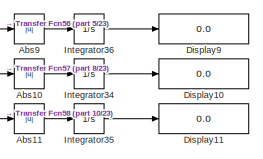
[diagram: root canvas - part 1/23, top right region]
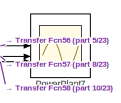
[diagram: root canvas - part 2/23, top right region]
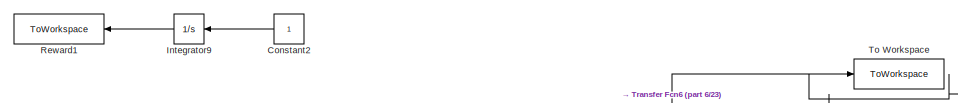
[diagram: root canvas - part 3/23, top left region]
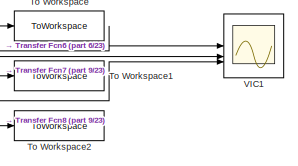
[diagram: root canvas - part 4/23, top center region]
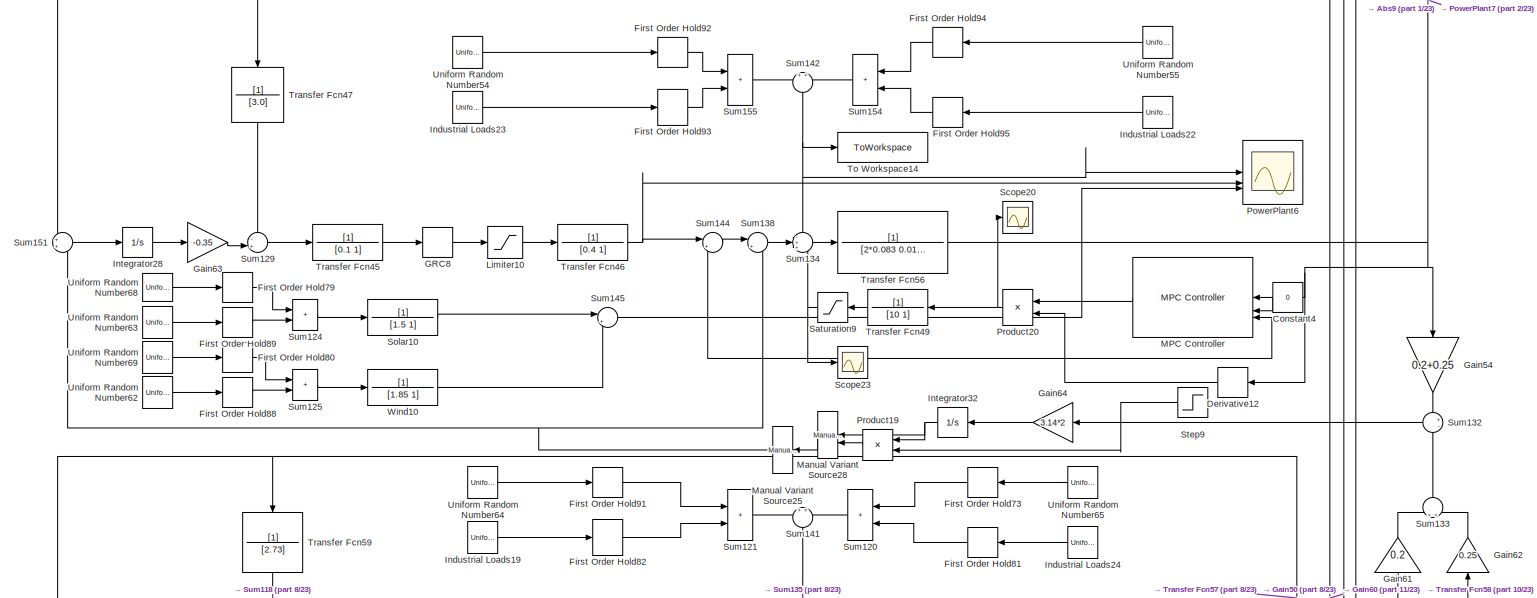
[diagram: root canvas - part 5/23, top right region]
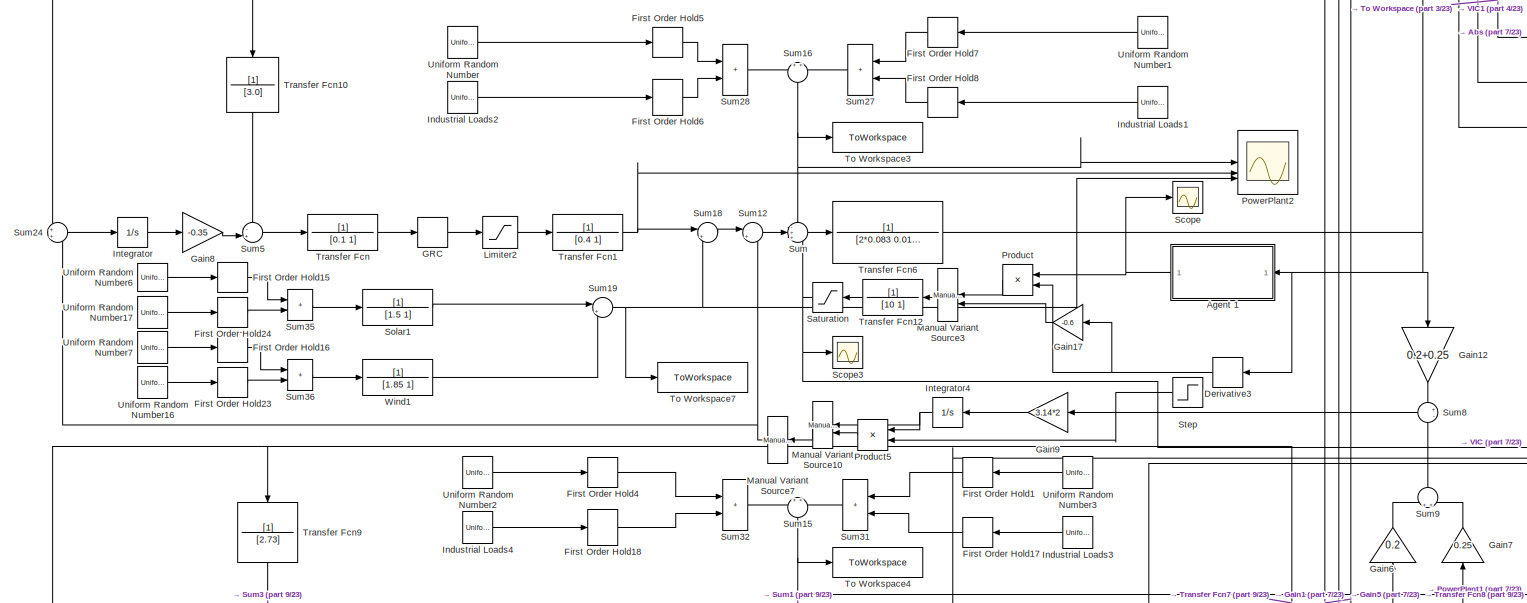
[diagram: root canvas - part 6/23, top left region]
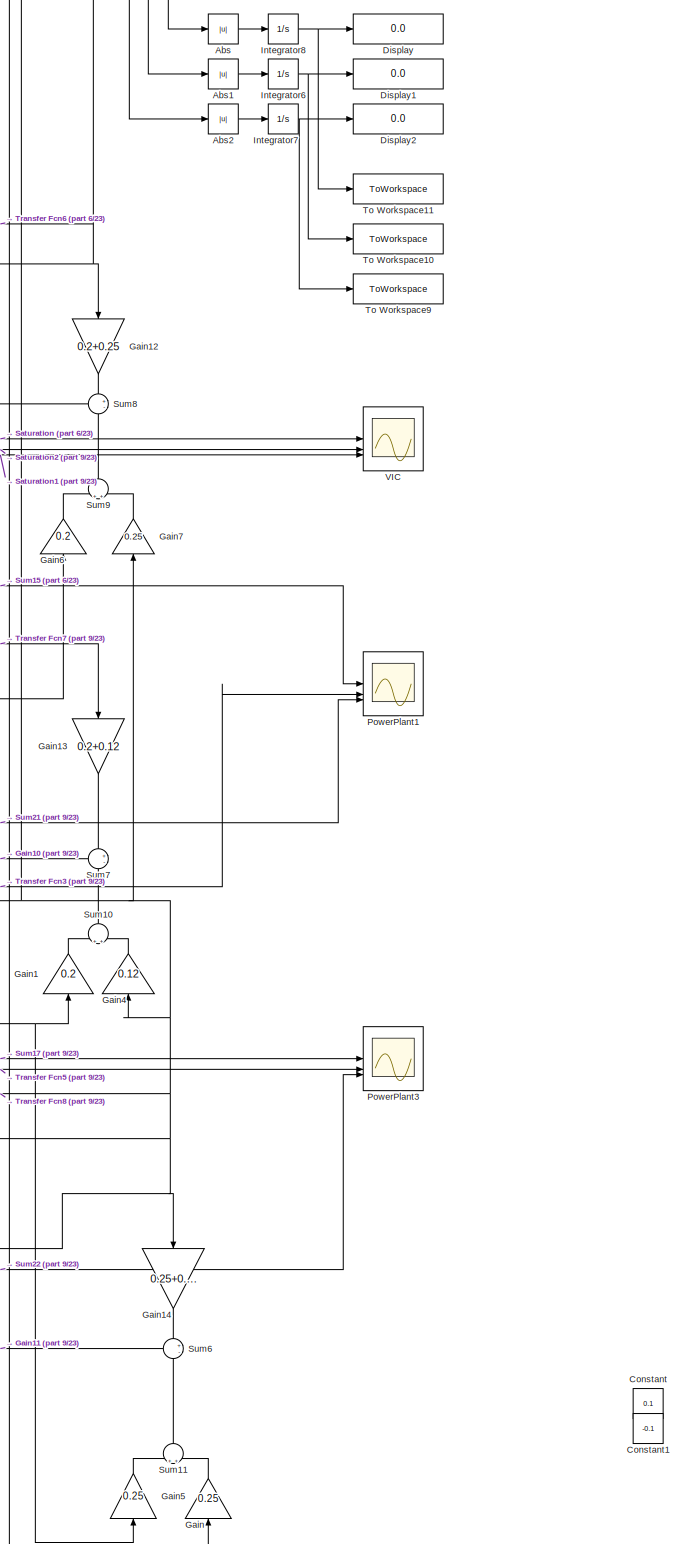
[diagram: root canvas - part 7/23, top left region]
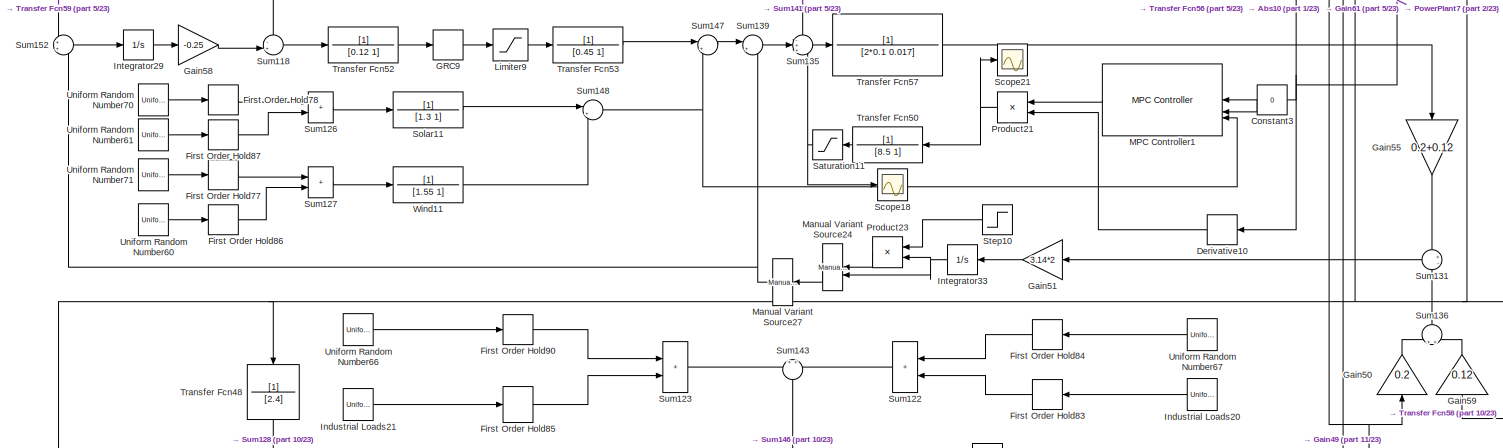
[diagram: root canvas - part 8/23, top right region]
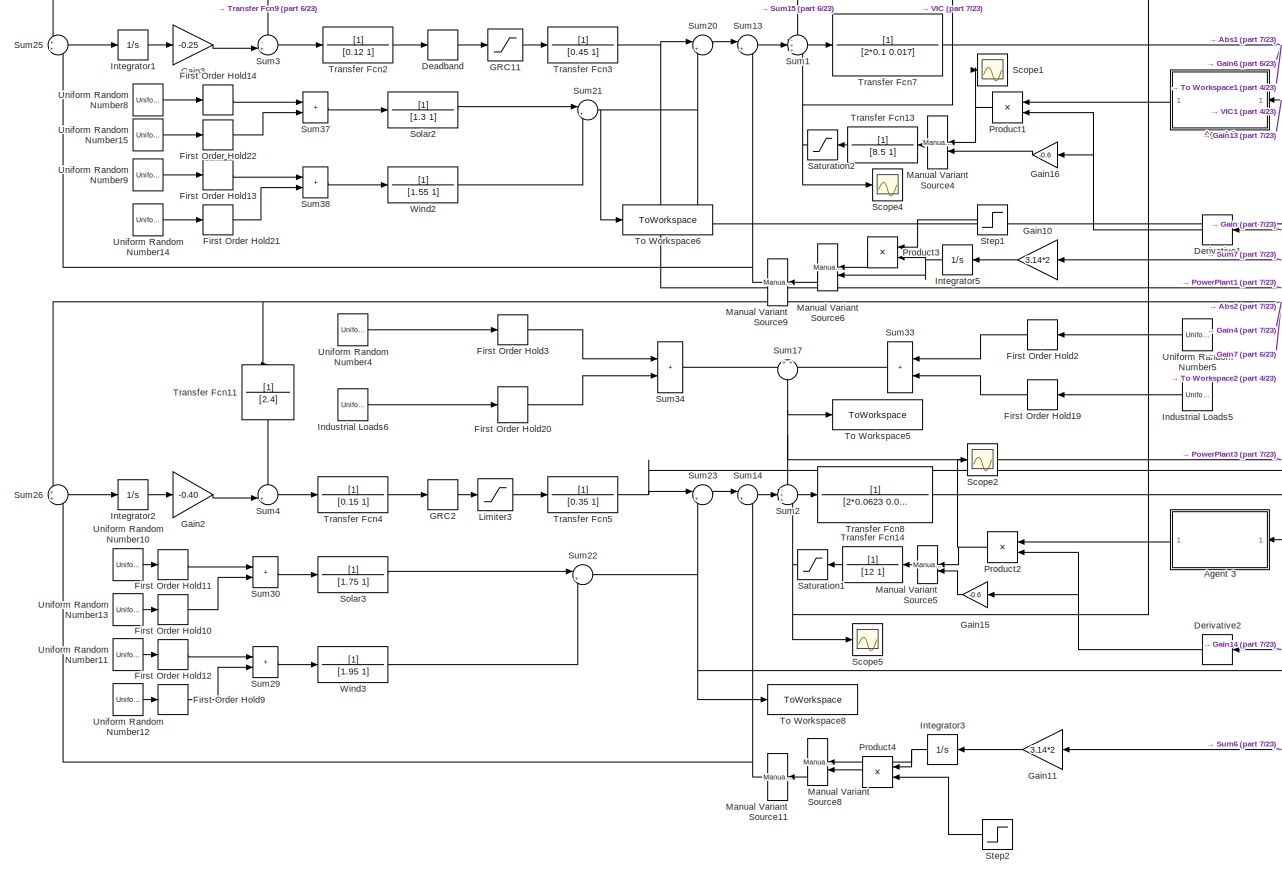
[diagram: root canvas - part 9/23, top left region]
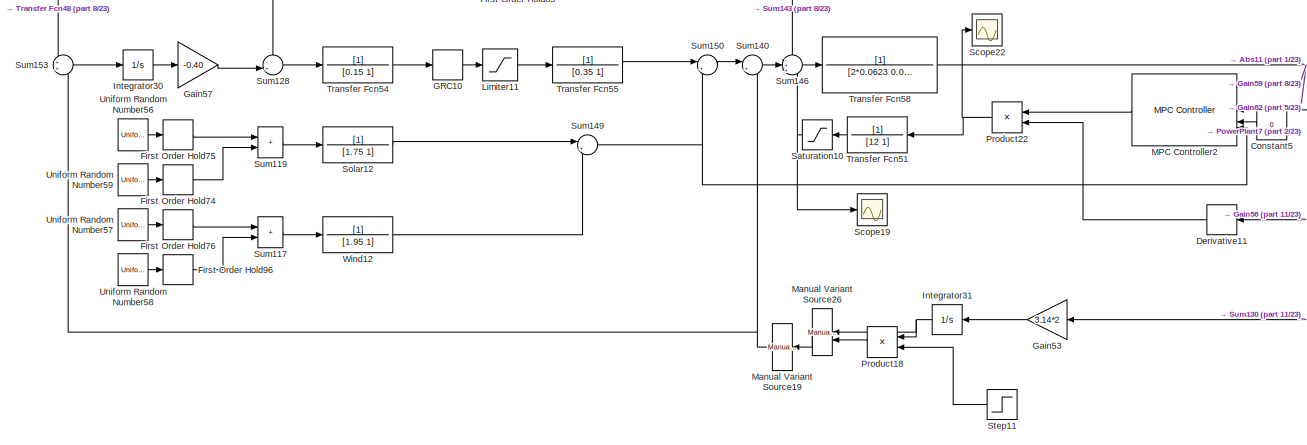
[diagram: root canvas - part 10/23, top right region]
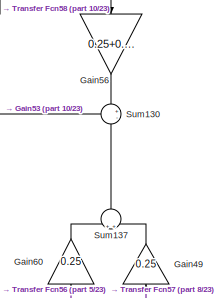
[diagram: root canvas - part 11/23, top right region]
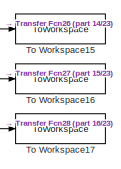
[diagram: root canvas - part 12/23, central region]
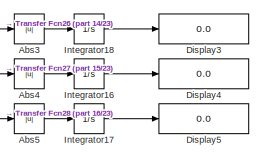
[diagram: root canvas - part 13/23, central region]
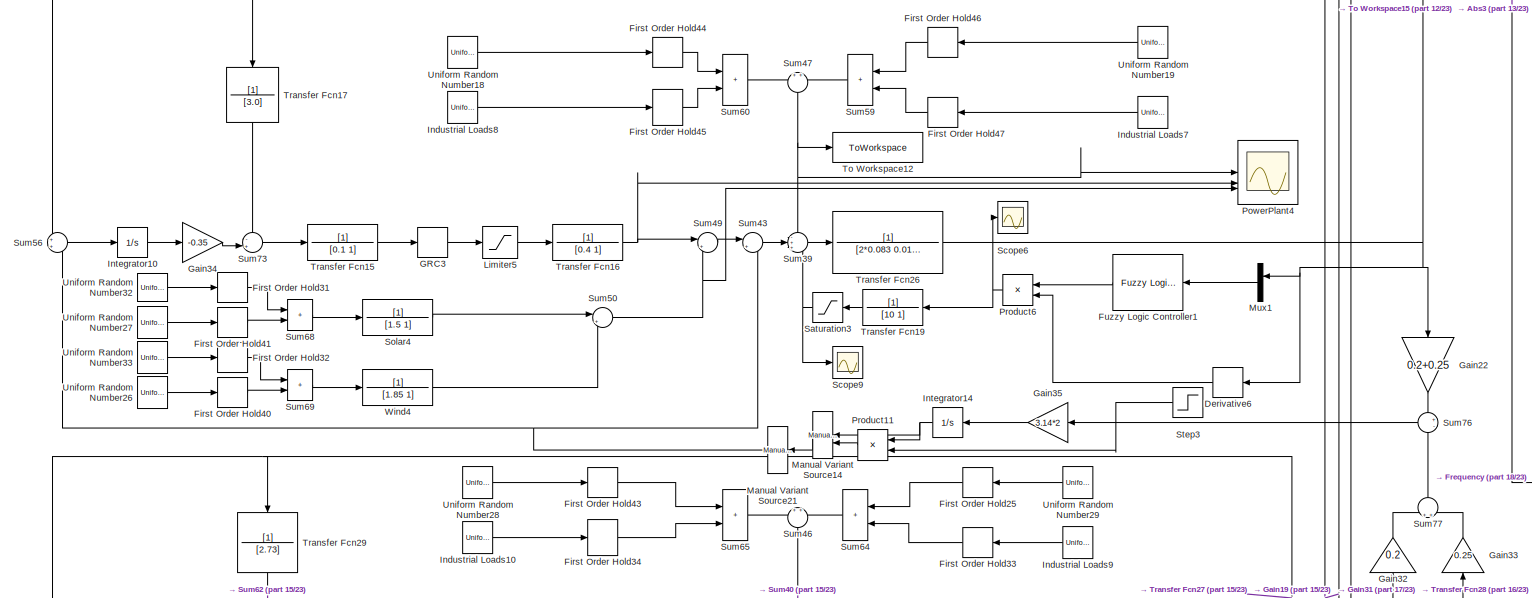
[diagram: root canvas - part 14/23, middle left region]
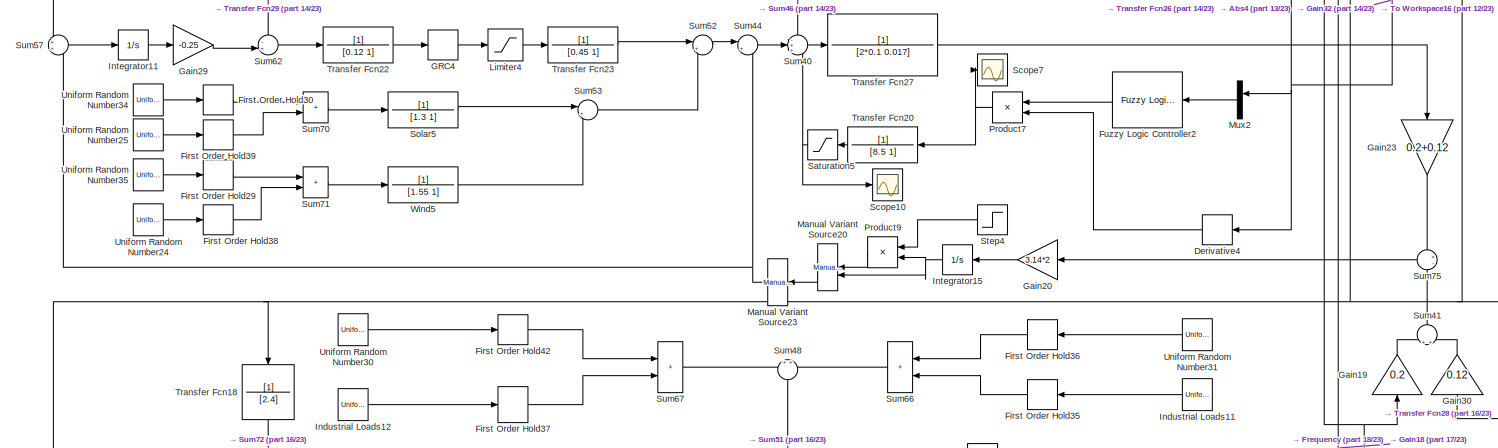
[diagram: root canvas - part 15/23, middle left region]
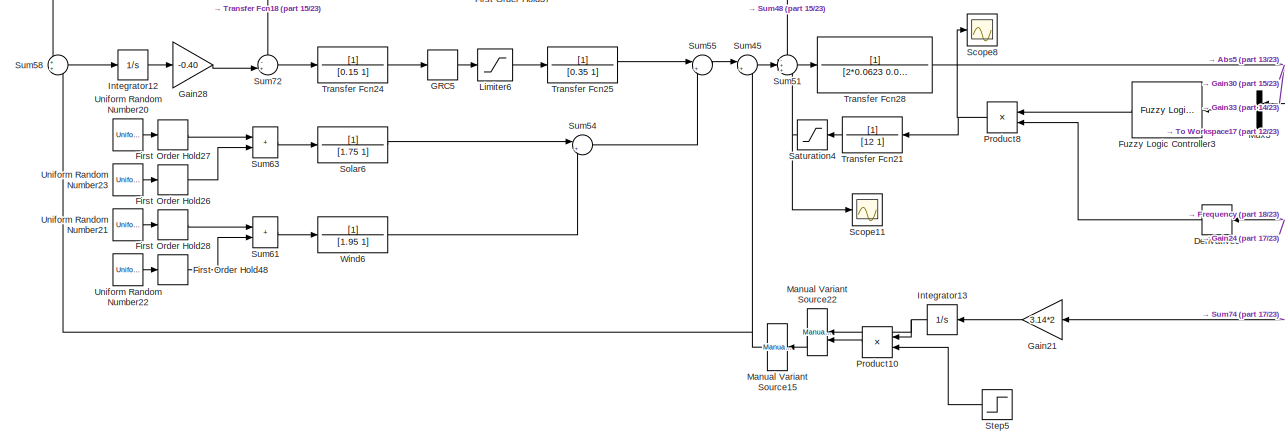
[diagram: root canvas - part 16/23, middle left region]
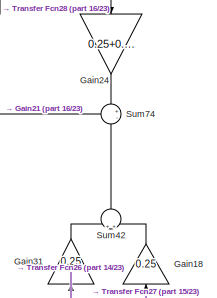
[diagram: root canvas - part 17/23, middle left region]
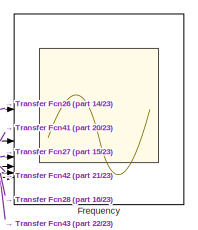
[diagram: root canvas - part 18/23, central region]
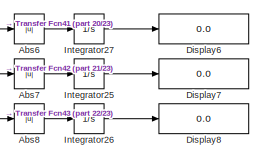
[diagram: root canvas - part 19/23, bottom center region]
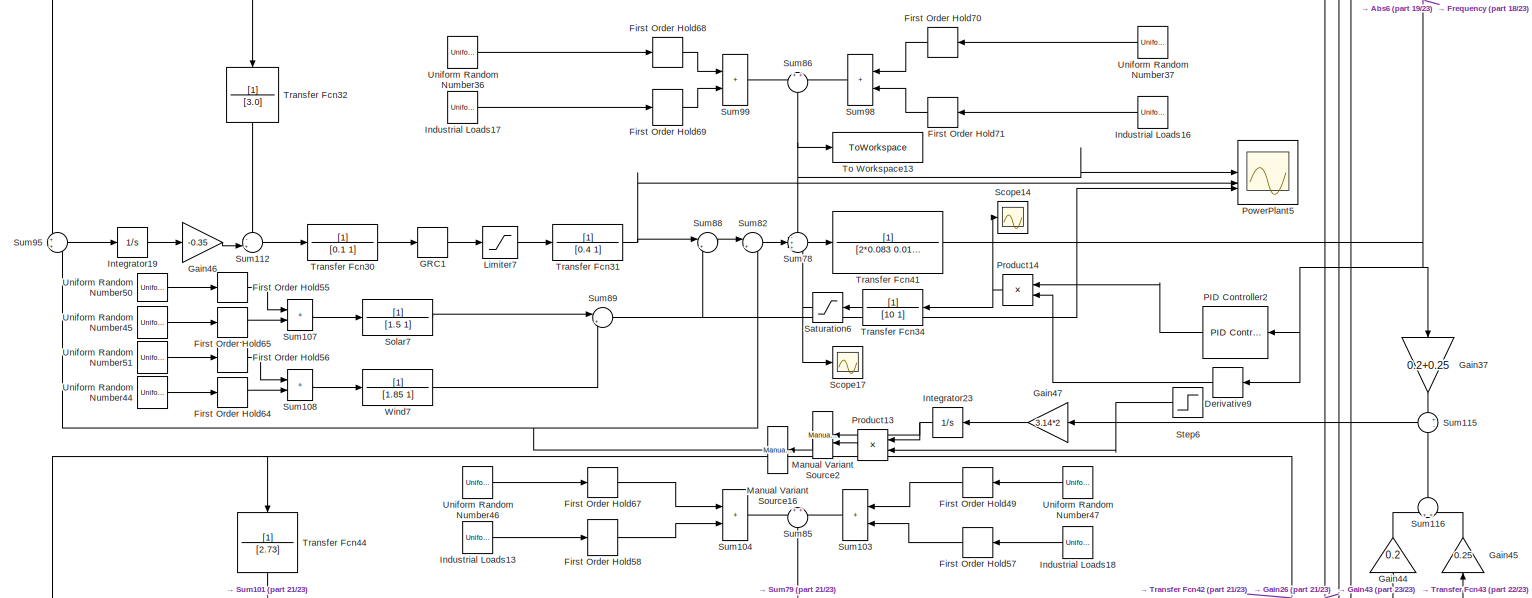
[diagram: root canvas - part 20/23, bottom left region]
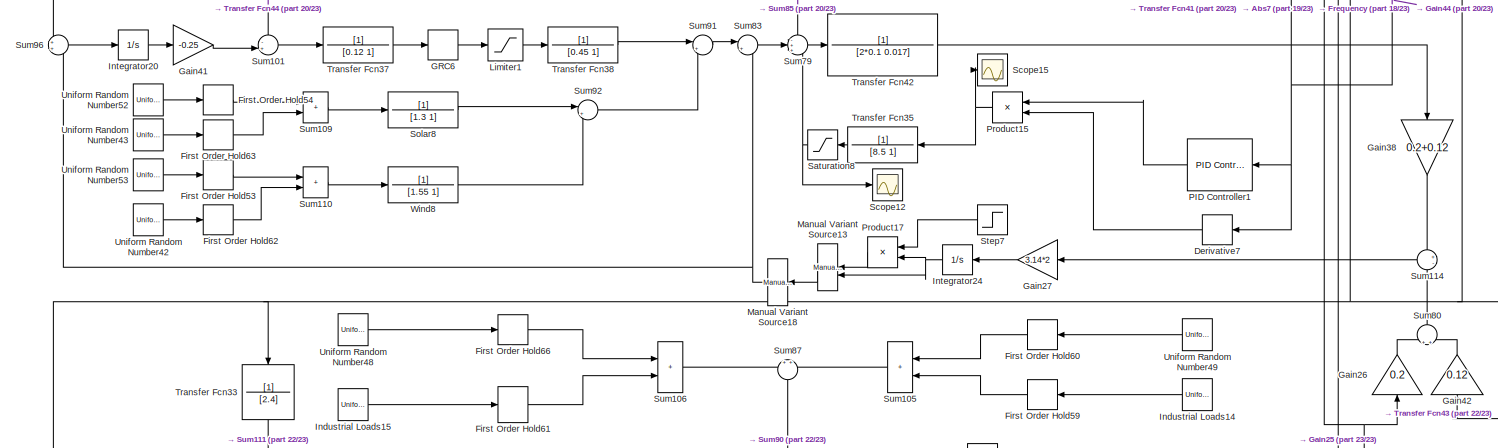
[diagram: root canvas - part 21/23, bottom left region]
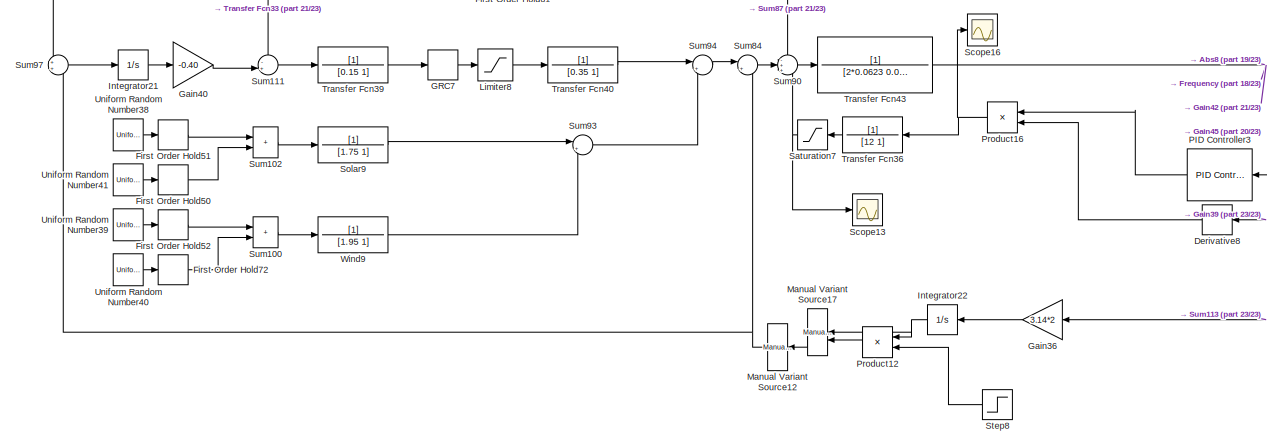
[diagram: root canvas - part 22/23, bottom left region]
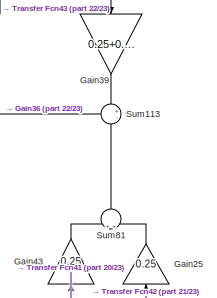
[diagram: root canvas - part 23/23, bottom center region]
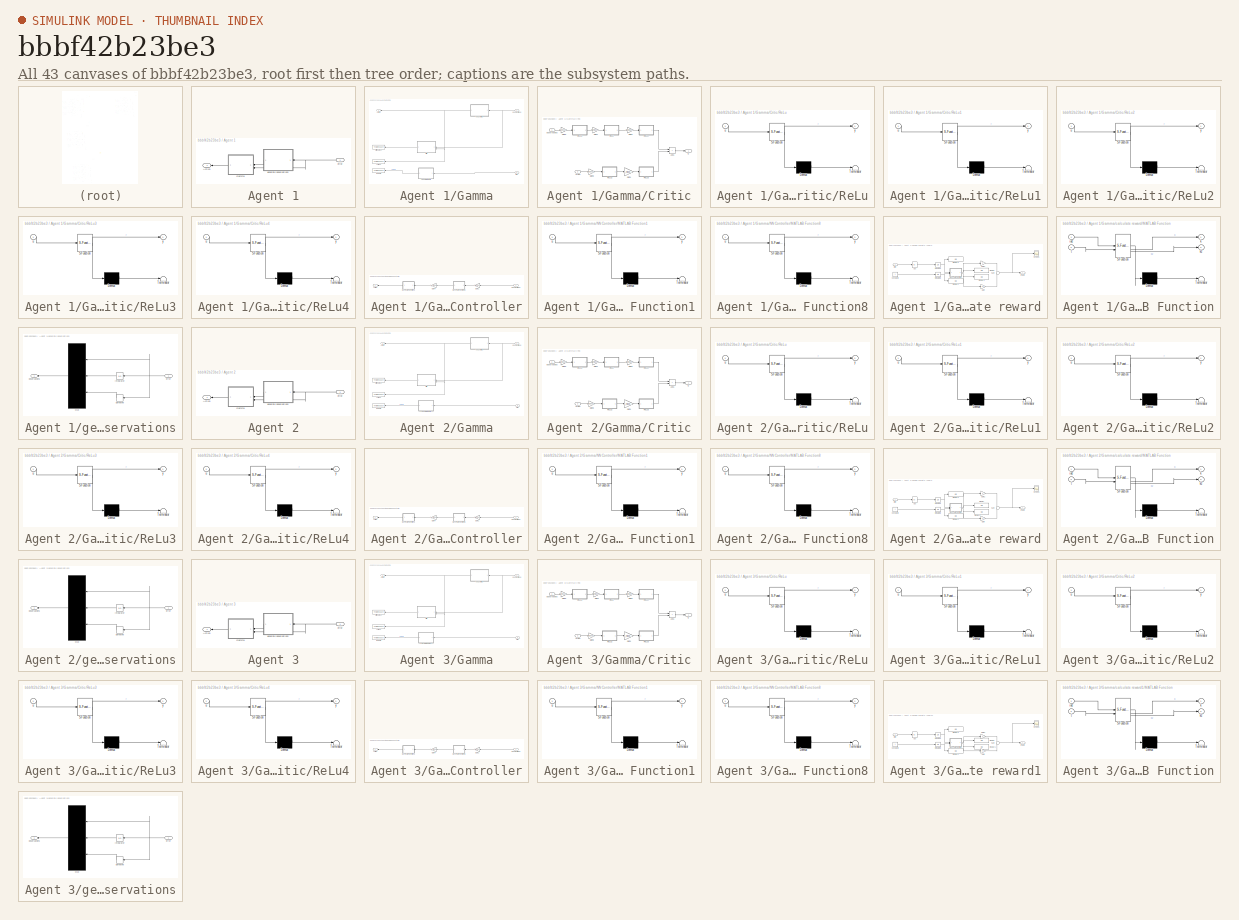
[diagram: thumbnail index - all 43 canvases of the model, root first then tree order]
MODEL slx_bbbf42b23be3
KIND model
CONFIG AbsTol = auto
CONFIG EnableMultiTasking = off
CONFIG FixedStep = auto
CONFIG MaxStep = auto
CONFIG MinStep = auto
CONFIG RelTol = 1e-3
CONFIG SampleTimeConstraint = Unconstrained
CONFIG SolverName = ode45
CONFIG StartTime = 0.0
CONFIG StopTime = 1000
BLOCK [Abs] Abs
  SaturateOnIntegerOverflow = off
BLOCK [Abs] Abs1
  SaturateOnIntegerOverflow = off
BLOCK [Abs] Abs10
  Commented = on
  SaturateOnIntegerOverflow = off
BLOCK [Abs] Abs11
  Commented = on
  SaturateOnIntegerOverflow = off
BLOCK [Abs] Abs2
  SaturateOnIntegerOverflow = off
BLOCK [Abs] Abs3
  Commented = on
  SaturateOnIntegerOverflow = off
BLOCK [Abs] Abs4
  Commented = on
  SaturateOnIntegerOverflow = off
BLOCK [Abs] Abs5
  Commented = on
  SaturateOnIntegerOverflow = off
BLOCK [Abs] Abs6
  Commented = on
  SaturateOnIntegerOverflow = off
BLOCK [Abs] Abs7
  Commented = on
  SaturateOnIntegerOverflow = off
BLOCK [Abs] Abs8
  Commented = on
  SaturateOnIntegerOverflow = off
BLOCK [Abs] Abs9
  Commented = on
  SaturateOnIntegerOverflow = off
BLOCK [SubSystem] Agent 1
BLOCK [Outport] Agent 1/Action
BLOCK [SubSystem] Agent 1/Gamma
BLOCK [Outport] Agent 1/Gamma/Action
BLOCK [ToWorkspace] Agent 1/Gamma/Action1
  Commented = on
  FixptAsFi = on
  MaxDataPoints = inf
  SampleTime = 1
  Save2DSignal = 2-D array (concatenate along first dimension)
  VariableName = Action1
BLOCK [SubSystem] Agent 1/Gamma/Critic
  Commented = on
BLOCK [Inport] Agent 1/Gamma/Critic/Action
  Port = 2
BLOCK [Sum] Agent 1/Gamma/Critic/Add1
  IconShape = rectangular
BLOCK [Gain] Agent 1/Gamma/Critic/Gain1
  Gain = c_hidden_weights_a1
  Multiplication = Matrix(K*u)
BLOCK [Gain] Agent 1/Gamma/Critic/Gain2
  Gain = c_hidden_weights12
  Multiplication = Matrix(K*u)
BLOCK [Gain] Agent 1/Gamma/Critic/Gain3
  Gain = c_input_weights1
  Multiplication = Matrix(K*u)
BLOCK [Gain] Agent 1/Gamma/Critic/Gain4
  Gain = c_hidden_weights11
  Multiplication = Matrix(K*u)
BLOCK [Gain] Agent 1/Gamma/Critic/Gain8
  Gain = c_input_weights_a1
  Multiplication = Matrix(K*u)
BLOCK [Outport] Agent 1/Gamma/Critic/Q
BLOCK [SubSystem] Agent 1/Gamma/Critic/ReLu
  ErrorFcn = Stateflow.Translate.translate
  PermitHierarchicalResolution = ExplicitOnly
  SFBlockType = MATLAB Function
  TreatAsAtomicUnit = on
BLOCK [Demux] Agent 1/Gamma/Critic/ReLu/ Demux 
  Outputs = 1
BLOCK [S-Function] Agent 1/Gamma/Critic/ReLu/ SFunction 
  EnableBusSupport = on
  FunctionName = sf_sfun
  PortCounts = [1 2]
  SFcnIsStateOwnerBlock = off
  SFunctionDeploymentMode = off
  Tag = Stateflow S-Function 8
BLOCK [Terminator] Agent 1/Gamma/Critic/ReLu/ Terminator 
BLOCK [Inport] Agent 1/Gamma/Critic/ReLu/u
BLOCK [Outport] Agent 1/Gamma/Critic/ReLu/y
BLOCK [SubSystem] Agent 1/Gamma/Critic/ReLu1
  ErrorFcn = Stateflow.Translate.translate
  PermitHierarchicalResolution = ExplicitOnly
  SFBlockType = MATLAB Function
  TreatAsAtomicUnit = on
BLOCK [Demux] Agent 1/Gamma/Critic/ReLu1/ Demux 
  Outputs = 1
BLOCK [S-Function] Agent 1/Gamma/Critic/ReLu1/ SFunction 
  EnableBusSupport = on
  FunctionName = sf_sfun
  PortCounts = [1 2]
  SFcnIsStateOwnerBlock = off
  SFunctionDeploymentMode = off
  Tag = Stateflow S-Function 9
BLOCK [Terminator] Agent 1/Gamma/Critic/ReLu1/ Terminator 
BLOCK [Inport] Agent 1/Gamma/Critic/ReLu1/u
BLOCK [Outport] Agent 1/Gamma/Critic/ReLu1/y
BLOCK [SubSystem] Agent 1/Gamma/Critic/ReLu2
  ErrorFcn = Stateflow.Translate.translate
  PermitHierarchicalResolution = ExplicitOnly
  SFBlockType = MATLAB Function
  TreatAsAtomicUnit = on
BLOCK [Demux] Agent 1/Gamma/Critic/ReLu2/ Demux 
  Outputs = 1
BLOCK [S-Function] Agent 1/Gamma/Critic/ReLu2/ SFunction 
  EnableBusSupport = on
  FunctionName = sf_sfun
  PortCounts = [1 2]
  SFcnIsStateOwnerBlock = off
  SFunctionDeploymentMode = off
  Tag = Stateflow S-Function 10
BLOCK [Terminator] Agent 1/Gamma/Critic/ReLu2/ Terminator 
BLOCK [Inport] Agent 1/Gamma/Critic/ReLu2/u
BLOCK [Outport] Agent 1/Gamma/Critic/ReLu2/y
BLOCK [SubSystem] Agent 1/Gamma/Critic/ReLu3
  ErrorFcn = Stateflow.Translate.translate
  PermitHierarchicalResolution = ExplicitOnly
  SFBlockType = MATLAB Function
  TreatAsAtomicUnit = on
BLOCK [Demux] Agent 1/Gamma/Critic/ReLu3/ Demux 
  Outputs = 1
BLOCK [S-Function] Agent 1/Gamma/Critic/ReLu3/ SFunction 
  EnableBusSupport = on
  FunctionName = sf_sfun
  PortCounts = [1 2]
  SFcnIsStateOwnerBlock = off
  SFunctionDeploymentMode = off
  Tag = Stateflow S-Function 11
BLOCK [Terminator] Agent 1/Gamma/Critic/ReLu3/ Terminator 
BLOCK [Inport] Agent 1/Gamma/Critic/ReLu3/u
BLOCK [Outport] Agent 1/Gamma/Critic/ReLu3/y
BLOCK [SubSystem] Agent 1/Gamma/Critic/ReLu4
  ErrorFcn = Stateflow.Translate.translate
  PermitHierarchicalResolution = ExplicitOnly
  SFBlockType = MATLAB Function
  TreatAsAtomicUnit = on
BLOCK [Demux] Agent 1/Gamma/Critic/ReLu4/ Demux 
  Outputs = 1
BLOCK [S-Function] Agent 1/Gamma/Critic/ReLu4/ SFunction 
  EnableBusSupport = on
  FunctionName = sf_sfun
  PortCounts = [1 2]
  SFcnIsStateOwnerBlock = off
  SFunctionDeploymentMode = off
  Tag = Stateflow S-Function 12
BLOCK [Terminator] Agent 1/Gamma/Critic/ReLu4/ Terminator 
BLOCK [Inport] Agent 1/Gamma/Critic/ReLu4/u
BLOCK [Outport] Agent 1/Gamma/Critic/ReLu4/y
BLOCK [Inport] Agent 1/Gamma/Critic/observations
BLOCK [ToWorkspace] Agent 1/Gamma/CriticOutput
  Commented = on
  FixptAsFi = on
  MaxDataPoints = inf
  SampleTime = 1
  Save2DSignal = 2-D array (concatenate along first dimension)
  VariableName = CriticOutput1
BLOCK [SubSystem] Agent 1/Gamma/NN Controller
BLOCK [Outport] Agent 1/Gamma/NN Controller/Action
BLOCK [Gain] Agent 1/Gamma/NN Controller/Gain1
  Gain = a_input_weights1(:,:)
  Multiplication = Matrix(K*u)
BLOCK [Gain] Agent 1/Gamma/NN Controller/Gain4
  Gain = a_hidden_weights1(:,:)
  Multiplication = Matrix(K*u)
BLOCK [SubSystem] Agent 1/Gamma/NN Controller/MATLAB Function1
  ErrorFcn = Stateflow.Translate.translate
  PermitHierarchicalResolution = ExplicitOnly
  SFBlockType = MATLAB Function
  TreatAsAtomicUnit = on
BLOCK [Demux] Agent 1/Gamma/NN Controller/MATLAB Function1/ Demux 
  Outputs = 1
BLOCK [S-Function] Agent 1/Gamma/NN Controller/MATLAB Function1/ SFunction 
  EnableBusSupport = on
  FunctionName = sf_sfun
  PortCounts = [1 2]
  SFcnIsStateOwnerBlock = off
  SFunctionDeploymentMode = off
  Tag = Stateflow S-Function 13
BLOCK [Terminator] Agent 1/Gamma/NN Controller/MATLAB Function1/ Terminator 
BLOCK [Inport] Agent 1/Gamma/NN Controller/MATLAB Function1/u
BLOCK [Outport] Agent 1/Gamma/NN Controller/MATLAB Function1/y
BLOCK [SubSystem] Agent 1/Gamma/NN Controller/MATLAB Function8
  ErrorFcn = Stateflow.Translate.translate
  PermitHierarchicalResolution = ExplicitOnly
  SFBlockType = MATLAB Function
  TreatAsAtomicUnit = on
BLOCK [Demux] Agent 1/Gamma/NN Controller/MATLAB Function8/ Demux 
  Outputs = 1
BLOCK [S-Function] Agent 1/Gamma/NN Controller/MATLAB Function8/ SFunction 
  EnableBusSupport = on
  FunctionName = sf_sfun
  PortCounts = [1 2]
  SFcnIsStateOwnerBlock = off
  SFunctionDeploymentMode = off
  Tag = Stateflow S-Function 14
BLOCK [Terminator] Agent 1/Gamma/NN Controller/MATLAB Function8/ Terminator 
BLOCK [Inport] Agent 1/Gamma/NN Controller/MATLAB Function8/u
BLOCK [Outport] Agent 1/Gamma/NN Controller/MATLAB Function8/y
BLOCK [Inport] Agent 1/Gamma/NN Controller/observations
BLOCK [ToWorkspace] Agent 1/Gamma/Reward
  FixptAsFi = on
  MaxDataPoints = inf
  SampleTime = 1
  Save2DSignal = 2-D array (concatenate along first dimension)
  VariableName = Reward1
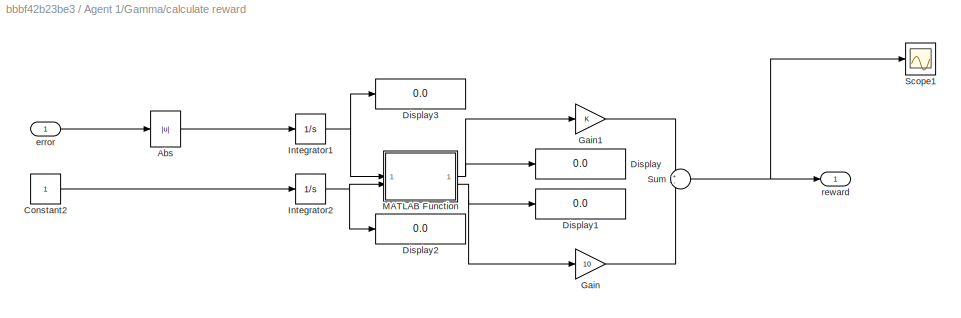
BLOCK [SubSystem] Agent 1/Gamma/calculate reward
BLOCK [Abs] Agent 1/Gamma/calculate reward/Abs
  SaturateOnIntegerOverflow = off
BLOCK [Constant] Agent 1/Gamma/calculate reward/Constant2
  SampleTime = 1
BLOCK [Display] Agent 1/Gamma/calculate reward/Display
  Decimation = 1
BLOCK [Display] Agent 1/Gamma/calculate reward/Display1
  Decimation = 1
BLOCK [Display] Agent 1/Gamma/calculate reward/Display2
  Decimation = 1
BLOCK [Display] Agent 1/Gamma/calculate reward/Display3
  Decimation = 1
BLOCK [Gain] Agent 1/Gamma/calculate reward/Gain
  Gain = 10
BLOCK [Gain] Agent 1/Gamma/calculate reward/Gain1
BLOCK [Integrator] Agent 1/Gamma/calculate reward/Integrator1
BLOCK [Integrator] Agent 1/Gamma/calculate reward/Integrator2
BLOCK [SubSystem] Agent 1/Gamma/calculate reward/MATLAB Function
  ErrorFcn = Stateflow.Translate.translate
  LibrarySourceBlock = simulink/User-Defined\nFunctions/MATLAB Function
  PermitHierarchicalResolution = ExplicitOnly
  SFBlockType = MATLAB Function
  TreatAsAtomicUnit = on
BLOCK [Demux] Agent 1/Gamma/calculate reward/MATLAB Function/ Demux 
  Outputs = 1
BLOCK [S-Function] Agent 1/Gamma/calculate reward/MATLAB Function/ SFunction 
  EnableBusSupport = on
  FunctionName = sf_sfun
  PortCounts = [2 3]
  SFcnIsStateOwnerBlock = off
  SFunctionDeploymentMode = off
  Tag = Stateflow S-Function 21
BLOCK [Terminator] Agent 1/Gamma/calculate reward/MATLAB Function/ Terminator 
BLOCK [Inport] Agent 1/Gamma/calculate reward/MATLAB Function/iae
BLOCK [Outport] Agent 1/Gamma/calculate reward/MATLAB Function/k
BLOCK [Outport] Agent 1/Gamma/calculate reward/MATLAB Function/k2
  Port = 2
BLOCK [Inport] Agent 1/Gamma/calculate reward/MATLAB Function/t
  Port = 2
BLOCK [Scope] Agent 1/Gamma/calculate reward/Scope1
  Floating = off
  NumInputPorts = 1
  ScopeSpecificationString = Simulink.scopes.TimeScopeBlockCfg('CurrentConfiguration', extmgr.ConfigurationSet(extmgr.Configuration('Core','General UI',true),extmgr.Configuration('Core','Source UI',true),extmgr.Configuration('Sources','WiredSimulink',true,'DataLoggingVariableName','ScopeData1'),extmgr.Configuration('Visuals','Time Domain',true,'SerializedDisplays',{struct('MinYLimReal','-5.02172','MaxYLimReal','1.66908','YLab...<+1390ch>
BLOCK [Sum] Agent 1/Gamma/calculate reward/Sum
  Inputs = +-
BLOCK [Inport] Agent 1/Gamma/calculate reward/error
BLOCK [Outport] Agent 1/Gamma/calculate reward/reward
  VectorParamsAs1DForOutWhenUnconnected = off
BLOCK [Inport] Agent 1/Gamma/error
  Port = 2
BLOCK [Inport] Agent 1/Gamma/observations
BLOCK [Inport] Agent 1/error
BLOCK [SubSystem] Agent 1/generate observations
BLOCK [Derivative] Agent 1/generate observations/Derivative
BLOCK [Integrator] Agent 1/generate observations/Integrator
  IgnoreLimit = on
BLOCK [Mux] Agent 1/generate observations/Mux
  DisplayOption = bar
  Inputs = 3
BLOCK [Inport] Agent 1/generate observations/error
BLOCK [Outport] Agent 1/generate observations/observations
  VectorParamsAs1DForOutWhenUnconnected = off
BLOCK [SubSystem] Agent 2
BLOCK [Outport] Agent 2/Action
BLOCK [SubSystem] Agent 2/Gamma
BLOCK [Outport] Agent 2/Gamma/Action
BLOCK [ToWorkspace] Agent 2/Gamma/Action1
  Commented = on
  FixptAsFi = on
  MaxDataPoints = inf
  SampleTime = 1
  Save2DSignal = 2-D array (concatenate along first dimension)
  VariableName = Action2
BLOCK [SubSystem] Agent 2/Gamma/Critic
  Commented = on
BLOCK [Inport] Agent 2/Gamma/Critic/Action
  Port = 2
BLOCK [Sum] Agent 2/Gamma/Critic/Add1
  IconShape = rectangular
BLOCK [Gain] Agent 2/Gamma/Critic/Gain1
  Gain = c_hidden_weights_a2
  Multiplication = Matrix(K*u)
BLOCK [Gain] Agent 2/Gamma/Critic/Gain2
  Gain = c_hidden_weights22
  Multiplication = Matrix(K*u)
BLOCK [Gain] Agent 2/Gamma/Critic/Gain3
  Gain = c_input_weights2
  Multiplication = Matrix(K*u)
BLOCK [Gain] Agent 2/Gamma/Critic/Gain4
  Gain = c_hidden_weights21
  Multiplication = Matrix(K*u)
BLOCK [Gain] Agent 2/Gamma/Critic/Gain8
  Gain = c_input_weights_a2
  Multiplication = Matrix(K*u)
BLOCK [Outport] Agent 2/Gamma/Critic/Q
BLOCK [SubSystem] Agent 2/Gamma/Critic/ReLu
  ErrorFcn = Stateflow.Translate.translate
  PermitHierarchicalResolution = ExplicitOnly
  SFBlockType = MATLAB Function
  TreatAsAtomicUnit = on
BLOCK [Demux] Agent 2/Gamma/Critic/ReLu/ Demux 
  Outputs = 1
BLOCK [S-Function] Agent 2/Gamma/Critic/ReLu/ SFunction 
  EnableBusSupport = on
  FunctionName = sf_sfun
  PortCounts = [1 2]
  SFcnIsStateOwnerBlock = off
  SFunctionDeploymentMode = off
  Tag = Stateflow S-Function 17
BLOCK [Terminator] Agent 2/Gamma/Critic/ReLu/ Terminator 
BLOCK [Inport] Agent 2/Gamma/Critic/ReLu/u
BLOCK [Outport] Agent 2/Gamma/Critic/ReLu/y
BLOCK [SubSystem] Agent 2/Gamma/Critic/ReLu1
  ErrorFcn = Stateflow.Translate.translate
  PermitHierarchicalResolution = ExplicitOnly
  SFBlockType = MATLAB Function
  TreatAsAtomicUnit = on
BLOCK [Demux] Agent 2/Gamma/Critic/ReLu1/ Demux 
  Outputs = 1
BLOCK [S-Function] Agent 2/Gamma/Critic/ReLu1/ SFunction 
  EnableBusSupport = on
  FunctionName = sf_sfun
  PortCounts = [1 2]
  SFcnIsStateOwnerBlock = off
  SFunctionDeploymentMode = off
  Tag = Stateflow S-Function 18
BLOCK [Terminator] Agent 2/Gamma/Critic/ReLu1/ Terminator 
BLOCK [Inport] Agent 2/Gamma/Critic/ReLu1/u
BLOCK [Outport] Agent 2/Gamma/Critic/ReLu1/y
BLOCK [SubSystem] Agent 2/Gamma/Critic/ReLu2
  ErrorFcn = Stateflow.Translate.translate
  PermitHierarchicalResolution = ExplicitOnly
  SFBlockType = MATLAB Function
  TreatAsAtomicUnit = on
BLOCK [Demux] Agent 2/Gamma/Critic/ReLu2/ Demux 
  Outputs = 1
BLOCK [S-Function] Agent 2/Gamma/Critic/ReLu2/ SFunction 
  EnableBusSupport = on
  FunctionName = sf_sfun
  PortCounts = [1 2]
  SFcnIsStateOwnerBlock = off
  SFunctionDeploymentMode = off
  Tag = Stateflow S-Function 29
BLOCK [Terminator] Agent 2/Gamma/Critic/ReLu2/ Terminator 
BLOCK [Inport] Agent 2/Gamma/Critic/ReLu2/u
BLOCK [Outport] Agent 2/Gamma/Critic/ReLu2/y
BLOCK [SubSystem] Agent 2/Gamma/Critic/ReLu3
  ErrorFcn = Stateflow.Translate.translate
  PermitHierarchicalResolution = ExplicitOnly
  SFBlockType = MATLAB Function
  TreatAsAtomicUnit = on
BLOCK [Demux] Agent 2/Gamma/Critic/ReLu3/ Demux 
  Outputs = 1
BLOCK [S-Function] Agent 2/Gamma/Critic/ReLu3/ SFunction 
  EnableBusSupport = on
  FunctionName = sf_sfun
  PortCounts = [1 2]
  SFcnIsStateOwnerBlock = off
  SFunctionDeploymentMode = off
  Tag = Stateflow S-Function 30
BLOCK [Terminator] Agent 2/Gamma/Critic/ReLu3/ Terminator 
BLOCK [Inport] Agent 2/Gamma/Critic/ReLu3/u
BLOCK [Outport] Agent 2/Gamma/Critic/ReLu3/y
BLOCK [SubSystem] Agent 2/Gamma/Critic/ReLu4
  ErrorFcn = Stateflow.Translate.translate
  PermitHierarchicalResolution = ExplicitOnly
  SFBlockType = MATLAB Function
  TreatAsAtomicUnit = on
BLOCK [Demux] Agent 2/Gamma/Critic/ReLu4/ Demux 
  Outputs = 1
BLOCK [S-Function] Agent 2/Gamma/Critic/ReLu4/ SFunction 
  EnableBusSupport = on
  FunctionName = sf_sfun
  PortCounts = [1 2]
  SFcnIsStateOwnerBlock = off
  SFunctionDeploymentMode = off
  Tag = Stateflow S-Function 31
BLOCK [Terminator] Agent 2/Gamma/Critic/ReLu4/ Terminator 
BLOCK [Inport] Agent 2/Gamma/Critic/ReLu4/u
BLOCK [Outport] Agent 2/Gamma/Critic/ReLu4/y
BLOCK [Inport] Agent 2/Gamma/Critic/observations
BLOCK [ToWorkspace] Agent 2/Gamma/CriticOutput
  Commented = on
  FixptAsFi = on
  MaxDataPoints = inf
  SampleTime = 1
  Save2DSignal = 2-D array (concatenate along first dimension)
  VariableName = CriticOutput2
BLOCK [SubSystem] Agent 2/Gamma/NN Controller
BLOCK [Outport] Agent 2/Gamma/NN Controller/Action
BLOCK [Gain] Agent 2/Gamma/NN Controller/Gain1
  Gain = a_input_weights2(:,:)
  Multiplication = Matrix(K*u)
BLOCK [Gain] Agent 2/Gamma/NN Controller/Gain4
  Gain = a_hidden_weights2(:,:)
  Multiplication = Matrix(K*u)
BLOCK [SubSystem] Agent 2/Gamma/NN Controller/MATLAB Function1
  ErrorFcn = Stateflow.Translate.translate
  PermitHierarchicalResolution = ExplicitOnly
  SFBlockType = MATLAB Function
  TreatAsAtomicUnit = on
BLOCK [Demux] Agent 2/Gamma/NN Controller/MATLAB Function1/ Demux 
  Outputs = 1
BLOCK [S-Function] Agent 2/Gamma/NN Controller/MATLAB Function1/ SFunction 
  EnableBusSupport = on
  FunctionName = sf_sfun
  PortCounts = [1 2]
  SFcnIsStateOwnerBlock = off
  SFunctionDeploymentMode = off
  Tag = Stateflow S-Function 15
BLOCK [Terminator] Agent 2/Gamma/NN Controller/MATLAB Function1/ Terminator 
BLOCK [Inport] Agent 2/Gamma/NN Controller/MATLAB Function1/u
BLOCK [Outport] Agent 2/Gamma/NN Controller/MATLAB Function1/y
BLOCK [SubSystem] Agent 2/Gamma/NN Controller/MATLAB Function8
  ErrorFcn = Stateflow.Translate.translate
  PermitHierarchicalResolution = ExplicitOnly
  SFBlockType = MATLAB Function
  TreatAsAtomicUnit = on
BLOCK [Demux] Agent 2/Gamma/NN Controller/MATLAB Function8/ Demux 
  Outputs = 1
BLOCK [S-Function] Agent 2/Gamma/NN Controller/MATLAB Function8/ SFunction 
  EnableBusSupport = on
  FunctionName = sf_sfun
  PortCounts = [1 2]
  SFcnIsStateOwnerBlock = off
  SFunctionDeploymentMode = off
  Tag = Stateflow S-Function 16
BLOCK [Terminator] Agent 2/Gamma/NN Controller/MATLAB Function8/ Terminator 
BLOCK [Inport] Agent 2/Gamma/NN Controller/MATLAB Function8/u
BLOCK [Outport] Agent 2/Gamma/NN Controller/MATLAB Function8/y
BLOCK [Inport] Agent 2/Gamma/NN Controller/observations
BLOCK [ToWorkspace] Agent 2/Gamma/Reward
  FixptAsFi = on
  MaxDataPoints = inf
  SampleTime = 1
  Save2DSignal = 2-D array (concatenate along first dimension)
  VariableName = Reward2
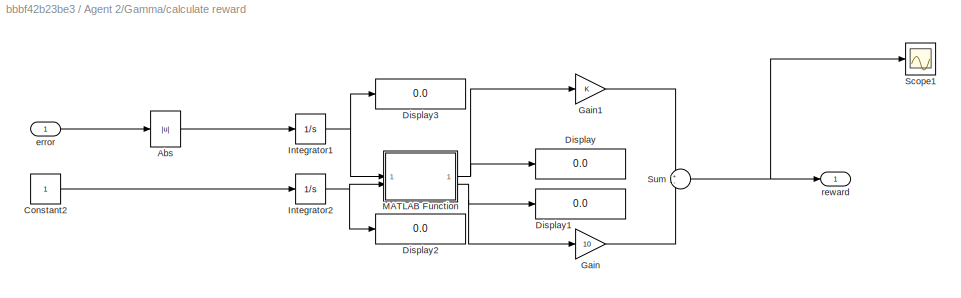
BLOCK [SubSystem] Agent 2/Gamma/calculate reward
BLOCK [Abs] Agent 2/Gamma/calculate reward/Abs
  SaturateOnIntegerOverflow = off
BLOCK [Constant] Agent 2/Gamma/calculate reward/Constant2
BLOCK [Display] Agent 2/Gamma/calculate reward/Display
  Decimation = 1
BLOCK [Display] Agent 2/Gamma/calculate reward/Display1
  Decimation = 1
BLOCK [Display] Agent 2/Gamma/calculate reward/Display2
  Decimation = 1
BLOCK [Display] Agent 2/Gamma/calculate reward/Display3
  Decimation = 1
BLOCK [Gain] Agent 2/Gamma/calculate reward/Gain
  Gain = 10
BLOCK [Gain] Agent 2/Gamma/calculate reward/Gain1
BLOCK [Integrator] Agent 2/Gamma/calculate reward/Integrator1
BLOCK [Integrator] Agent 2/Gamma/calculate reward/Integrator2
BLOCK [SubSystem] Agent 2/Gamma/calculate reward/MATLAB Function
  ErrorFcn = Stateflow.Translate.translate
  LibrarySourceBlock = simulink/User-Defined\nFunctions/MATLAB Function
  PermitHierarchicalResolution = ExplicitOnly
  SFBlockType = MATLAB Function
  TreatAsAtomicUnit = on
BLOCK [Demux] Agent 2/Gamma/calculate reward/MATLAB Function/ Demux 
  Outputs = 1
BLOCK [S-Function] Agent 2/Gamma/calculate reward/MATLAB Function/ SFunction 
  EnableBusSupport = on
  FunctionName = sf_sfun
  PortCounts = [2 3]
  SFcnIsStateOwnerBlock = off
  SFunctionDeploymentMode = off
  Tag = Stateflow S-Function 19
BLOCK [Terminator] Agent 2/Gamma/calculate reward/MATLAB Function/ Terminator 
BLOCK [Inport] Agent 2/Gamma/calculate reward/MATLAB Function/iae
BLOCK [Outport] Agent 2/Gamma/calculate reward/MATLAB Function/k
BLOCK [Outport] Agent 2/Gamma/calculate reward/MATLAB Function/k2
  Port = 2
BLOCK [Inport] Agent 2/Gamma/calculate reward/MATLAB Function/t
  Port = 2
BLOCK [Scope] Agent 2/Gamma/calculate reward/Scope1
  Floating = off
  NumInputPorts = 1
  ScopeSpecificationString = Simulink.scopes.TimeScopeBlockCfg('CurrentConfiguration', extmgr.ConfigurationSet(extmgr.Configuration('Core','General UI',true),extmgr.Configuration('Core','Source UI',true),extmgr.Configuration('Sources','WiredSimulink',true,'DataLoggingVariableName','ScopeData1'),extmgr.Configuration('Visuals','Time Domain',true,'SerializedDisplays',{struct('MinYLimReal','0.2931','MaxYLimReal','1.07854','YLabel...<+1384ch>
BLOCK [Sum] Agent 2/Gamma/calculate reward/Sum
  Inputs = +-
BLOCK [Inport] Agent 2/Gamma/calculate reward/error
BLOCK [Outport] Agent 2/Gamma/calculate reward/reward
  VectorParamsAs1DForOutWhenUnconnected = off
BLOCK [Inport] Agent 2/Gamma/error
  Port = 2
BLOCK [Inport] Agent 2/Gamma/observations
BLOCK [Inport] Agent 2/error
BLOCK [SubSystem] Agent 2/generate observations
BLOCK [Derivative] Agent 2/generate observations/Derivative
BLOCK [Integrator] Agent 2/generate observations/Integrator
  IgnoreLimit = on
BLOCK [Mux] Agent 2/generate observations/Mux
  DisplayOption = bar
  Inputs = 3
BLOCK [Inport] Agent 2/generate observations/error
BLOCK [Outport] Agent 2/generate observations/observations
  VectorParamsAs1DForOutWhenUnconnected = off
BLOCK [SubSystem] Agent 3
BLOCK [Outport] Agent 3/Action
BLOCK [SubSystem] Agent 3/Gamma
BLOCK [Outport] Agent 3/Gamma/Action
BLOCK [ToWorkspace] Agent 3/Gamma/Action1
  Commented = on
  FixptAsFi = on
  MaxDataPoints = inf
  SampleTime = 1
  Save2DSignal = 2-D array (concatenate along first dimension)
  VariableName = Action3
BLOCK [SubSystem] Agent 3/Gamma/Critic
  Commented = on
BLOCK [Inport] Agent 3/Gamma/Critic/Action
  Port = 2
BLOCK [Sum] Agent 3/Gamma/Critic/Add1
  IconShape = rectangular
BLOCK [Gain] Agent 3/Gamma/Critic/Gain1
  Gain = c_hidden_weights_a3
  Multiplication = Matrix(K*u)
BLOCK [Gain] Agent 3/Gamma/Critic/Gain2
  Gain = c_hidden_weights32
  Multiplication = Matrix(K*u)
BLOCK [Gain] Agent 3/Gamma/Critic/Gain3
  Gain = c_input_weights3
  Multiplication = Matrix(K*u)
BLOCK [Gain] Agent 3/Gamma/Critic/Gain4
  Gain = c_hidden_weights31
  Multiplication = Matrix(K*u)
BLOCK [Gain] Agent 3/Gamma/Critic/Gain8
  Gain = c_input_weights_a3
  Multiplication = Matrix(K*u)
BLOCK [Outport] Agent 3/Gamma/Critic/Q
BLOCK [SubSystem] Agent 3/Gamma/Critic/ReLu
  ErrorFcn = Stateflow.Translate.translate
  PermitHierarchicalResolution = ExplicitOnly
  SFBlockType = MATLAB Function
  TreatAsAtomicUnit = on
BLOCK [Demux] Agent 3/Gamma/Critic/ReLu/ Demux 
  Outputs = 1
BLOCK [S-Function] Agent 3/Gamma/Critic/ReLu/ SFunction 
  EnableBusSupport = on
  FunctionName = sf_sfun
  PortCounts = [1 2]
  SFcnIsStateOwnerBlock = off
  SFunctionDeploymentMode = off
  Tag = Stateflow S-Function 1
BLOCK [Terminator] Agent 3/Gamma/Critic/ReLu/ Terminator 
BLOCK [Inport] Agent 3/Gamma/Critic/ReLu/u
BLOCK [Outport] Agent 3/Gamma/Critic/ReLu/y
BLOCK [SubSystem] Agent 3/Gamma/Critic/ReLu1
  ErrorFcn = Stateflow.Translate.translate
  PermitHierarchicalResolution = ExplicitOnly
  SFBlockType = MATLAB Function
  TreatAsAtomicUnit = on
BLOCK [Demux] Agent 3/Gamma/Critic/ReLu1/ Demux 
  Outputs = 1
BLOCK [S-Function] Agent 3/Gamma/Critic/ReLu1/ SFunction 
  EnableBusSupport = on
  FunctionName = sf_sfun
  PortCounts = [1 2]
  SFcnIsStateOwnerBlock = off
  SFunctionDeploymentMode = off
  Tag = Stateflow S-Function 2
BLOCK [Terminator] Agent 3/Gamma/Critic/ReLu1/ Terminator 
BLOCK [Inport] Agent 3/Gamma/Critic/ReLu1/u
BLOCK [Outport] Agent 3/Gamma/Critic/ReLu1/y
BLOCK [SubSystem] Agent 3/Gamma/Critic/ReLu2
  ErrorFcn = Stateflow.Translate.translate
  PermitHierarchicalResolution = ExplicitOnly
  SFBlockType = MATLAB Function
  TreatAsAtomicUnit = on
BLOCK [Demux] Agent 3/Gamma/Critic/ReLu2/ Demux 
  Outputs = 1
BLOCK [S-Function] Agent 3/Gamma/Critic/ReLu2/ SFunction 
  EnableBusSupport = on
  FunctionName = sf_sfun
  PortCounts = [1 2]
  SFcnIsStateOwnerBlock = off
  SFunctionDeploymentMode = off
  Tag = Stateflow S-Function 3
BLOCK [Terminator] Agent 3/Gamma/Critic/ReLu2/ Terminator 
BLOCK [Inport] Agent 3/Gamma/Critic/ReLu2/u
BLOCK [Outport] Agent 3/Gamma/Critic/ReLu2/y
BLOCK [SubSystem] Agent 3/Gamma/Critic/ReLu3
  ErrorFcn = Stateflow.Translate.translate
  PermitHierarchicalResolution = ExplicitOnly
  SFBlockType = MATLAB Function
  TreatAsAtomicUnit = on
BLOCK [Demux] Agent 3/Gamma/Critic/ReLu3/ Demux 
  Outputs = 1
BLOCK [S-Function] Agent 3/Gamma/Critic/ReLu3/ SFunction 
  EnableBusSupport = on
  FunctionName = sf_sfun
  PortCounts = [1 2]
  SFcnIsStateOwnerBlock = off
  SFunctionDeploymentMode = off
  Tag = Stateflow S-Function 4
BLOCK [Terminator] Agent 3/Gamma/Critic/ReLu3/ Terminator 
BLOCK [Inport] Agent 3/Gamma/Critic/ReLu3/u
BLOCK [Outport] Agent 3/Gamma/Critic/ReLu3/y
BLOCK [SubSystem] Agent 3/Gamma/Critic/ReLu4
  ErrorFcn = Stateflow.Translate.translate
  PermitHierarchicalResolution = ExplicitOnly
  SFBlockType = MATLAB Function
  TreatAsAtomicUnit = on
BLOCK [Demux] Agent 3/Gamma/Critic/ReLu4/ Demux 
  Outputs = 1
BLOCK [S-Function] Agent 3/Gamma/Critic/ReLu4/ SFunction 
  EnableBusSupport = on
  FunctionName = sf_sfun
  PortCounts = [1 2]
  SFcnIsStateOwnerBlock = off
  SFunctionDeploymentMode = off
  Tag = Stateflow S-Function 5
BLOCK [Terminator] Agent 3/Gamma/Critic/ReLu4/ Terminator 
BLOCK [Inport] Agent 3/Gamma/Critic/ReLu4/u
BLOCK [Outport] Agent 3/Gamma/Critic/ReLu4/y
BLOCK [Inport] Agent 3/Gamma/Critic/observations
BLOCK [ToWorkspace] Agent 3/Gamma/CriticOutput
  Commented = on
  FixptAsFi = on
  MaxDataPoints = inf
  SampleTime = 1
  Save2DSignal = 2-D array (concatenate along first dimension)
  VariableName = CriticOutput3
BLOCK [SubSystem] Agent 3/Gamma/NN Controller
BLOCK [Outport] Agent 3/Gamma/NN Controller/Action
BLOCK [Gain] Agent 3/Gamma/NN Controller/Gain1
  Gain = a_input_weights3(:,:)
  Multiplication = Matrix(K*u)
BLOCK [Gain] Agent 3/Gamma/NN Controller/Gain4
  Gain = a_hidden_weights3(:,:)
  Multiplication = Matrix(K*u)
BLOCK [SubSystem] Agent 3/Gamma/NN Controller/MATLAB Function1
  ErrorFcn = Stateflow.Translate.translate
  PermitHierarchicalResolution = ExplicitOnly
  SFBlockType = MATLAB Function
  TreatAsAtomicUnit = on
BLOCK [Demux] Agent 3/Gamma/NN Controller/MATLAB Function1/ Demux 
  Outputs = 1
BLOCK [S-Function] Agent 3/Gamma/NN Controller/MATLAB Function1/ SFunction 
  EnableBusSupport = on
  FunctionName = sf_sfun
  PortCounts = [1 2]
  SFcnIsStateOwnerBlock = off
  SFunctionDeploymentMode = off
  Tag = Stateflow S-Function 6
BLOCK [Terminator] Agent 3/Gamma/NN Controller/MATLAB Function1/ Terminator 
BLOCK [Inport] Agent 3/Gamma/NN Controller/MATLAB Function1/u
BLOCK [Outport] Agent 3/Gamma/NN Controller/MATLAB Function1/y
BLOCK [SubSystem] Agent 3/Gamma/NN Controller/MATLAB Function8
  ErrorFcn = Stateflow.Translate.translate
  PermitHierarchicalResolution = ExplicitOnly
  SFBlockType = MATLAB Function
  TreatAsAtomicUnit = on
BLOCK [Demux] Agent 3/Gamma/NN Controller/MATLAB Function8/ Demux 
  Outputs = 1
BLOCK [S-Function] Agent 3/Gamma/NN Controller/MATLAB Function8/ SFunction 
  EnableBusSupport = on
  FunctionName = sf_sfun
  PortCounts = [1 2]
  SFcnIsStateOwnerBlock = off
  SFunctionDeploymentMode = off
  Tag = Stateflow S-Function 7
BLOCK [Terminator] Agent 3/Gamma/NN Controller/MATLAB Function8/ Terminator 
BLOCK [Inport] Agent 3/Gamma/NN Controller/MATLAB Function8/u
BLOCK [Outport] Agent 3/Gamma/NN Controller/MATLAB Function8/y
BLOCK [Inport] Agent 3/Gamma/NN Controller/observations
BLOCK [ToWorkspace] Agent 3/Gamma/Reward
  FixptAsFi = on
  MaxDataPoints = inf
  SampleTime = 1
  Save2DSignal = 2-D array (concatenate along first dimension)
  VariableName = Reward3
BLOCK [SubSystem] Agent 3/Gamma/calculate reward1
BLOCK [Abs] Agent 3/Gamma/calculate reward1/Abs
  SaturateOnIntegerOverflow = off
BLOCK [Constant] Agent 3/Gamma/calculate reward1/Constant2
BLOCK [Display] Agent 3/Gamma/calculate reward1/Display
  Decimation = 1
BLOCK [Display] Agent 3/Gamma/calculate reward1/Display1
  Decimation = 1
BLOCK [Display] Agent 3/Gamma/calculate reward1/Display2
  Decimation = 1
BLOCK [Display] Agent 3/Gamma/calculate reward1/Display3
  Decimation = 1
BLOCK [Gain] Agent 3/Gamma/calculate reward1/Gain
  Gain = 10
BLOCK [Gain] Agent 3/Gamma/calculate reward1/Gain1
BLOCK [Integrator] Agent 3/Gamma/calculate reward1/Integrator1
BLOCK [Integrator] Agent 3/Gamma/calculate reward1/Integrator2
BLOCK [SubSystem] Agent 3/Gamma/calculate reward1/MATLAB Function
  ErrorFcn = Stateflow.Translate.translate
  LibrarySourceBlock = simulink/User-Defined\nFunctions/MATLAB Function
  PermitHierarchicalResolution = ExplicitOnly
  SFBlockType = MATLAB Function
  TreatAsAtomicUnit = on
BLOCK [Demux] Agent 3/Gamma/calculate reward1/MATLAB Function/ Demux 
  Outputs = 1
BLOCK [S-Function] Agent 3/Gamma/calculate reward1/MATLAB Function/ SFunction 
  EnableBusSupport = on
  FunctionName = sf_sfun
  PortCounts = [2 3]
  SFcnIsStateOwnerBlock = off
  SFunctionDeploymentMode = off
  Tag = Stateflow S-Function 20
BLOCK [Terminator] Agent 3/Gamma/calculate reward1/MATLAB Function/ Terminator 
BLOCK [Inport] Agent 3/Gamma/calculate reward1/MATLAB Function/iae
BLOCK [Outport] Agent 3/Gamma/calculate reward1/MATLAB Function/k
BLOCK [Outport] Agent 3/Gamma/calculate reward1/MATLAB Function/k2
  Port = 2
BLOCK [Inport] Agent 3/Gamma/calculate reward1/MATLAB Function/t
  Port = 2
BLOCK [Scope] Agent 3/Gamma/calculate reward1/Scope1
  Floating = off
  NumInputPorts = 1
  ScopeSpecificationString = Simulink.scopes.TimeScopeBlockCfg('CurrentConfiguration', extmgr.ConfigurationSet(extmgr.Configuration('Core','General UI',true),extmgr.Configuration('Core','Source UI',true),extmgr.Configuration('Sources','WiredSimulink',true,'DataLoggingVariableName','ScopeData1'),extmgr.Configuration('Visuals','Time Domain',true,'SerializedDisplays',{struct('MinYLimReal','-0.00001','MaxYLimReal','1.11111','YLab...<+1390ch>
BLOCK [Sum] Agent 3/Gamma/calculate reward1/Sum
  Inputs = +-
BLOCK [Inport] Agent 3/Gamma/calculate reward1/error
BLOCK [Outport] Agent 3/Gamma/calculate reward1/reward
  VectorParamsAs1DForOutWhenUnconnected = off
BLOCK [Inport] Agent 3/Gamma/error
  Port = 2
BLOCK [Inport] Agent 3/Gamma/observations
BLOCK [Inport] Agent 3/error
BLOCK [SubSystem] Agent 3/generate observations
BLOCK [Derivative] Agent 3/generate observations/Derivative
BLOCK [Integrator] Agent 3/generate observations/Integrator
  IgnoreLimit = on
BLOCK [Mux] Agent 3/generate observations/Mux
  DisplayOption = bar
  Inputs = 3
BLOCK [Inport] Agent 3/generate observations/error
BLOCK [Outport] Agent 3/generate observations/observations
  VectorParamsAs1DForOutWhenUnconnected = off
BLOCK [Constant] Constant
  Value = 0.1
BLOCK [Constant] Constant1
  Value = -0.1
BLOCK [Constant] Constant2
  SampleTime = 1
BLOCK [Constant] Constant3
  Commented = on
  Value = 0
BLOCK [Constant] Constant4
  Commented = on
  Value = 0
BLOCK [Constant] Constant5
  Commented = on
  Value = 0
BLOCK [DeadZone] Deadband
  LowerValue = -0.12
  UpperValue = 0.12
BLOCK [Derivative] Derivative1
BLOCK [Derivative] Derivative10
  Commented = on
BLOCK [Derivative] Derivative11
  Commented = on
BLOCK [Derivative] Derivative12
  Commented = on
BLOCK [Derivative] Derivative2
BLOCK [Derivative] Derivative3
BLOCK [Derivative] Derivative4
  Commented = on
BLOCK [Derivative] Derivative5
  Commented = on
BLOCK [Derivative] Derivative6
  Commented = on
BLOCK [Derivative] Derivative7
  Commented = on
BLOCK [Derivative] Derivative8
  Commented = on
BLOCK [Derivative] Derivative9
  Commented = on
BLOCK [Display] Display
  Decimation = 1
BLOCK [Display] Display1
  Decimation = 1
BLOCK [Display] Display10
  Commented = on
  Decimation = 1
BLOCK [Display] Display11
  Commented = on
  Decimation = 1
BLOCK [Display] Display2
  Decimation = 1
BLOCK [Display] Display3
  Commented = on
  Decimation = 1
BLOCK [Display] Display4
  Commented = on
  Decimation = 1
BLOCK [Display] Display5
  Commented = on
  Decimation = 1
BLOCK [Display] Display6
  Commented = on
  Decimation = 1
BLOCK [Display] Display7
  Commented = on
  Decimation = 1
BLOCK [Display] Display8
  Commented = on
  Decimation = 1
BLOCK [Display] Display9
  Commented = on
  Decimation = 1
BLOCK [FirstOrderHold] First Order Hold1
  ErrorTolerance = inf
BLOCK [FirstOrderHold] First Order Hold10
  ErrorTolerance = inf
BLOCK [FirstOrderHold] First Order Hold11
  ErrorTolerance = inf
BLOCK [FirstOrderHold] First Order Hold12
  ErrorTolerance = inf
BLOCK [FirstOrderHold] First Order Hold13
  ErrorTolerance = inf
BLOCK [FirstOrderHold] First Order Hold14
  ErrorTolerance = inf
BLOCK [FirstOrderHold] First Order Hold15
  ErrorTolerance = inf
BLOCK [FirstOrderHold] First Order Hold16
  ErrorTolerance = inf
BLOCK [FirstOrderHold] First Order Hold17
  ErrorTolerance = inf
BLOCK [FirstOrderHold] First Order Hold18
  ErrorTolerance = inf
BLOCK [FirstOrderHold] First Order Hold19
  ErrorTolerance = inf
BLOCK [FirstOrderHold] First Order Hold2
  ErrorTolerance = inf
BLOCK [FirstOrderHold] First Order Hold20
  ErrorTolerance = inf
BLOCK [FirstOrderHold] First Order Hold21
  ErrorTolerance = inf
BLOCK [FirstOrderHold] First Order Hold22
  ErrorTolerance = inf
BLOCK [FirstOrderHold] First Order Hold23
  ErrorTolerance = inf
BLOCK [FirstOrderHold] First Order Hold24
  ErrorTolerance = inf
BLOCK [FirstOrderHold] First Order Hold25
  Commented = on
  ErrorTolerance = inf
BLOCK [FirstOrderHold] First Order Hold26
  Commented = on
  ErrorTolerance = inf
BLOCK [FirstOrderHold] First Order Hold27
  Commented = on
  ErrorTolerance = inf
BLOCK [FirstOrderHold] First Order Hold28
  Commented = on
  ErrorTolerance = inf
BLOCK [FirstOrderHold] First Order Hold29
  Commented = on
  ErrorTolerance = inf
BLOCK [FirstOrderHold] First Order Hold3
  ErrorTolerance = inf
BLOCK [FirstOrderHold] First Order Hold30
  Commented = on
  ErrorTolerance = inf
BLOCK [FirstOrderHold] First Order Hold31
  Commented = on
  ErrorTolerance = inf
BLOCK [FirstOrderHold] First Order Hold32
  Commented = on
  ErrorTolerance = inf
BLOCK [FirstOrderHold] First Order Hold33
  Commented = on
  ErrorTolerance = inf
BLOCK [FirstOrderHold] First Order Hold34
  Commented = on
  ErrorTolerance = inf
BLOCK [FirstOrderHold] First Order Hold35
  Commented = on
  ErrorTolerance = inf
BLOCK [FirstOrderHold] First Order Hold36
  Commented = on
  ErrorTolerance = inf
BLOCK [FirstOrderHold] First Order Hold37
  Commented = on
  ErrorTolerance = inf
BLOCK [FirstOrderHold] First Order Hold38
  Commented = on
  ErrorTolerance = inf
BLOCK [FirstOrderHold] First Order Hold39
  Commented = on
  ErrorTolerance = inf
BLOCK [FirstOrderHold] First Order Hold4
  ErrorTolerance = inf
BLOCK [FirstOrderHold] First Order Hold40
  Commented = on
  ErrorTolerance = inf
BLOCK [FirstOrderHold] First Order Hold41
  Commented = on
  ErrorTolerance = inf
BLOCK [FirstOrderHold] First Order Hold42
  Commented = on
  ErrorTolerance = inf
BLOCK [FirstOrderHold] First Order Hold43
  Commented = on
  ErrorTolerance = inf
BLOCK [FirstOrderHold] First Order Hold44
  Commented = on
  ErrorTolerance = inf
BLOCK [FirstOrderHold] First Order Hold45
  Commented = on
  ErrorTolerance = inf
BLOCK [FirstOrderHold] First Order Hold46
  Commented = on
  ErrorTolerance = inf
BLOCK [FirstOrderHold] First Order Hold47
  Commented = on
  ErrorTolerance = inf
BLOCK [FirstOrderHold] First Order Hold48
  Commented = on
  ErrorTolerance = inf
BLOCK [FirstOrderHold] First Order Hold49
  Commented = on
  ErrorTolerance = inf
BLOCK [FirstOrderHold] First Order Hold5
  ErrorTolerance = inf
BLOCK [FirstOrderHold] First Order Hold50
  Commented = on
  ErrorTolerance = inf
BLOCK [FirstOrderHold] First Order Hold51
  Commented = on
  ErrorTolerance = inf
BLOCK [FirstOrderHold] First Order Hold52
  Commented = on
  ErrorTolerance = inf
BLOCK [FirstOrderHold] First Order Hold53
  Commented = on
  ErrorTolerance = inf
BLOCK [FirstOrderHold] First Order Hold54
  Commented = on
  ErrorTolerance = inf
BLOCK [FirstOrderHold] First Order Hold55
  Commented = on
  ErrorTolerance = inf
BLOCK [FirstOrderHold] First Order Hold56
  Commented = on
  ErrorTolerance = inf
BLOCK [FirstOrderHold] First Order Hold57
  Commented = on
  ErrorTolerance = inf
BLOCK [FirstOrderHold] First Order Hold58
  Commented = on
  ErrorTolerance = inf
BLOCK [FirstOrderHold] First Order Hold59
  Commented = on
  ErrorTolerance = inf
BLOCK [FirstOrderHold] First Order Hold6
  ErrorTolerance = inf
BLOCK [FirstOrderHold] First Order Hold60
  Commented = on
  ErrorTolerance = inf
BLOCK [FirstOrderHold] First Order Hold61
  Commented = on
  ErrorTolerance = inf
BLOCK [FirstOrderHold] First Order Hold62
  Commented = on
  ErrorTolerance = inf
BLOCK [FirstOrderHold] First Order Hold63
  Commented = on
  ErrorTolerance = inf
BLOCK [FirstOrderHold] First Order Hold64
  Commented = on
  ErrorTolerance = inf
BLOCK [FirstOrderHold] First Order Hold65
  Commented = on
  ErrorTolerance = inf
BLOCK [FirstOrderHold] First Order Hold66
  Commented = on
  ErrorTolerance = inf
BLOCK [FirstOrderHold] First Order Hold67
  Commented = on
  ErrorTolerance = inf
BLOCK [FirstOrderHold] First Order Hold68
  Commented = on
  ErrorTolerance = inf
BLOCK [FirstOrderHold] First Order Hold69
  Commented = on
  ErrorTolerance = inf
BLOCK [FirstOrderHold] First Order Hold7
  ErrorTolerance = inf
BLOCK [FirstOrderHold] First Order Hold70
  Commented = on
  ErrorTolerance = inf
BLOCK [FirstOrderHold] First Order Hold71
  Commented = on
  ErrorTolerance = inf
BLOCK [FirstOrderHold] First Order Hold72
  Commented = on
  ErrorTolerance = inf
BLOCK [FirstOrderHold] First Order Hold73
  Commented = on
  ErrorTolerance = inf
BLOCK [FirstOrderHold] First Order Hold74
  Commented = on
  ErrorTolerance = inf
BLOCK [FirstOrderHold] First Order Hold75
  Commented = on
  ErrorTolerance = inf
BLOCK [FirstOrderHold] First Order Hold76
  Commented = on
  ErrorTolerance = inf
BLOCK [FirstOrderHold] First Order Hold77
  Commented = on
  ErrorTolerance = inf
BLOCK [FirstOrderHold] First Order Hold78
  Commented = on
  ErrorTolerance = inf
BLOCK [FirstOrderHold] First Order Hold79
  Commented = on
  ErrorTolerance = inf
BLOCK [FirstOrderHold] First Order Hold8
  ErrorTolerance = inf
BLOCK [FirstOrderHold] First Order Hold80
  Commented = on
  ErrorTolerance = inf
BLOCK [FirstOrderHold] First Order Hold81
  Commented = on
  ErrorTolerance = inf
BLOCK [FirstOrderHold] First Order Hold82
  Commented = on
  ErrorTolerance = inf
BLOCK [FirstOrderHold] First Order Hold83
  Commented = on
  ErrorTolerance = inf
BLOCK [FirstOrderHold] First Order Hold84
  Commented = on
  ErrorTolerance = inf
BLOCK [FirstOrderHold] First Order Hold85
  Commented = on
  ErrorTolerance = inf
BLOCK [FirstOrderHold] First Order Hold86
  Commented = on
  ErrorTolerance = inf
BLOCK [FirstOrderHold] First Order Hold87
  Commented = on
  ErrorTolerance = inf
BLOCK [FirstOrderHold] First Order Hold88
  Commented = on
  ErrorTolerance = inf
BLOCK [FirstOrderHold] First Order Hold89
  Commented = on
  ErrorTolerance = inf
BLOCK [FirstOrderHold] First Order Hold9
  ErrorTolerance = inf
BLOCK [FirstOrderHold] First Order Hold90
  Commented = on
  ErrorTolerance = inf
BLOCK [FirstOrderHold] First Order Hold91
  Commented = on
  ErrorTolerance = inf
BLOCK [FirstOrderHold] First Order Hold92
  Commented = on
  ErrorTolerance = inf
BLOCK [FirstOrderHold] First Order Hold93
  Commented = on
  ErrorTolerance = inf
BLOCK [FirstOrderHold] First Order Hold94
  Commented = on
  ErrorTolerance = inf
BLOCK [FirstOrderHold] First Order Hold95
  Commented = on
  ErrorTolerance = inf
BLOCK [FirstOrderHold] First Order Hold96
  Commented = on
  ErrorTolerance = inf
BLOCK [Scope] Frequency
  Commented = on
  Floating = off
  NumInputPorts = 8
  ScopeSpecificationString = Simulink.scopes.TimeScopeBlockCfg('CurrentConfiguration', extmgr.ConfigurationSet(extmgr.Configuration('Core','General UI',true),extmgr.Configuration('Core','Source UI',true),extmgr.Configuration('Sources','WiredSimulink',true),extmgr.Configuration('Visuals','Time Domain',true,'SerializedDisplays',{struct('MinYLimReal','-1.42959','MaxYLimReal','0.42813','YLabelReal','','MinYLimMag','0.00000','MaxY...<+2411ch>
BLOCK [Reference] Fuzzy Logic Controller1  REF=fuzblock/Fuzzy Logic   (lib defined in mdl_858b3b3e7478)
Controller
  Commented = on
  SourceBlock = fuzblock/Fuzzy Logic \nController
  SourceType = Fuzzy Inference System
BLOCK [Reference] Fuzzy Logic Controller2  REF=fuzblock/Fuzzy Logic   (lib defined in mdl_858b3b3e7478)
Controller
  Commented = on
  SourceBlock = fuzblock/Fuzzy Logic \nController
  SourceType = Fuzzy Inference System
BLOCK [Reference] Fuzzy Logic Controller3  REF=fuzblock/Fuzzy Logic   (lib defined in mdl_858b3b3e7478)
Controller
  Commented = on
  SourceBlock = fuzblock/Fuzzy Logic \nController
  SourceType = Fuzzy Inference System
BLOCK [DeadZone] GRC
  LowerValue = -0.12
  UpperValue = 0.12
BLOCK [DeadZone] GRC1
  Commented = on
  LowerValue = -0.12
  UpperValue = 0.12
BLOCK [DeadZone] GRC10
  Commented = on
  LowerValue = -0.12
  UpperValue = 0.12
BLOCK [Saturate] GRC11
  LowerLimit = 0
  UpperLimit = 0.4
BLOCK [DeadZone] GRC2
  LowerValue = -0.12
  UpperValue = 0.12
BLOCK [DeadZone] GRC3
  Commented = on
  LowerValue = -0.12
  UpperValue = 0.12
BLOCK [DeadZone] GRC4
  Commented = on
  LowerValue = -0.12
  UpperValue = 0.12
BLOCK [DeadZone] GRC5
  Commented = on
  LowerValue = -0.12
  UpperValue = 0.12
BLOCK [DeadZone] GRC6
  Commented = on
  LowerValue = -0.12
  UpperValue = 0.12
BLOCK [DeadZone] GRC7
  Commented = on
  LowerValue = -0.12
  UpperValue = 0.12
BLOCK [DeadZone] GRC8
  Commented = on
  LowerValue = -0.12
  UpperValue = 0.12
BLOCK [DeadZone] GRC9
  Commented = on
  LowerValue = -0.12
  UpperValue = 0.12
BLOCK [Gain] Gain
  Gain = 0.25
  NameLocation = left
BLOCK [Gain] Gain1
  Gain = 0.2
  NameLocation = left
BLOCK [Gain] Gain10
  Gain = 3.14*2
BLOCK [Gain] Gain11
  Gain = 3.14*2
BLOCK [Gain] Gain12
  Gain = 0.2+0.25
  NameLocation = right
BLOCK [Gain] Gain13
  Gain = 0.2+0.12
  NameLocation = right
BLOCK [Gain] Gain14
  Gain = 0.25+0.25
  NameLocation = right
BLOCK [Gain] Gain15
  Gain = -0.6
BLOCK [Gain] Gain16
  Gain = -0.6
BLOCK [Gain] Gain17
  Gain = -0.6
BLOCK [Gain] Gain18
  Commented = on
  Gain = 0.25
  NameLocation = left
BLOCK [Gain] Gain19
  Commented = on
  Gain = 0.2
  NameLocation = left
BLOCK [Gain] Gain2
  Gain = -0.40
BLOCK [Gain] Gain20
  Commented = on
  Gain = 3.14*2
BLOCK [Gain] Gain21
  Commented = on
  Gain = 3.14*2
BLOCK [Gain] Gain22
  Commented = on
  Gain = 0.2+0.25
  NameLocation = right
BLOCK [Gain] Gain23
  Commented = on
  Gain = 0.2+0.12
  NameLocation = right
BLOCK [Gain] Gain24
  Commented = on
  Gain = 0.25+0.25
  NameLocation = right
BLOCK [Gain] Gain25
  Commented = on
  Gain = 0.25
  NameLocation = left
BLOCK [Gain] Gain26
  Commented = on
  Gain = 0.2
  NameLocation = left
BLOCK [Gain] Gain27
  Commented = on
  Gain = 3.14*2
BLOCK [Gain] Gain28
  Commented = on
  Gain = -0.40
BLOCK [Gain] Gain29
  Commented = on
  Gain = -0.25
BLOCK [Gain] Gain3
  Gain = -0.25
BLOCK [Gain] Gain30
  Commented = on
  Gain = 0.12
  NameLocation = right
BLOCK [Gain] Gain31
  Commented = on
  Gain = 0.25
  NameLocation = right
BLOCK [Gain] Gain32
  Commented = on
  Gain = 0.2
  NameLocation = left
BLOCK [Gain] Gain33
  Commented = on
  Gain = 0.25
  NameLocation = right
BLOCK [Gain] Gain34
  Commented = on
  Gain = -0.35
BLOCK [Gain] Gain35
  Commented = on
  Gain = 3.14*2
BLOCK [Gain] Gain36
  Commented = on
  Gain = 3.14*2
BLOCK [Gain] Gain37
  Commented = on
  Gain = 0.2+0.25
  NameLocation = right
BLOCK [Gain] Gain38
  Commented = on
  Gain = 0.2+0.12
  NameLocation = right
BLOCK [Gain] Gain39
  Commented = on
  Gain = 0.25+0.25
  NameLocation = right
BLOCK [Gain] Gain4
  Gain = 0.12
  NameLocation = right
BLOCK [Gain] Gain40
  Commented = on
  Gain = -0.40
BLOCK [Gain] Gain41
  Commented = on
  Gain = -0.25
BLOCK [Gain] Gain42
  Commented = on
  Gain = 0.12
  NameLocation = right
BLOCK [Gain] Gain43
  Commented = on
  Gain = 0.25
  NameLocation = right
BLOCK [Gain] Gain44
  Commented = on
  Gain = 0.2
  NameLocation = left
BLOCK [Gain] Gain45
  Commented = on
  Gain = 0.25
  NameLocation = right
BLOCK [Gain] Gain46
  Commented = on
  Gain = -0.35
BLOCK [Gain] Gain47
  Commented = on
  Gain = 3.14*2
BLOCK [Gain] Gain49
  Commented = on
  Gain = 0.25
  NameLocation = left
BLOCK [Gain] Gain5
  Gain = 0.25
  NameLocation = right
BLOCK [Gain] Gain50
  Commented = on
  Gain = 0.2
  NameLocation = left
BLOCK [Gain] Gain51
  Commented = on
  Gain = 3.14*2
BLOCK [Gain] Gain53
  Commented = on
  Gain = 3.14*2
BLOCK [Gain] Gain54
  Commented = on
  Gain = 0.2+0.25
  NameLocation = right
BLOCK [Gain] Gain55
  Commented = on
  Gain = 0.2+0.12
  NameLocation = right
BLOCK [Gain] Gain56
  Commented = on
  Gain = 0.25+0.25
  NameLocation = right
BLOCK [Gain] Gain57
  Commented = on
  Gain = -0.40
BLOCK [Gain] Gain58
  Commented = on
  Gain = -0.25
BLOCK [Gain] Gain59
  Commented = on
  Gain = 0.12
  NameLocation = right
BLOCK [Gain] Gain6
  Gain = 0.2
  NameLocation = left
BLOCK [Gain] Gain60
  Commented = on
  Gain = 0.25
  NameLocation = right
BLOCK [Gain] Gain61
  Commented = on
  Gain = 0.2
  NameLocation = left
BLOCK [Gain] Gain62
  Commented = on
  Gain = 0.25
  NameLocation = right
BLOCK [Gain] Gain63
  Commented = on
  Gain = -0.35
BLOCK [Gain] Gain64
  Commented = on
  Gain = 3.14*2
BLOCK [Gain] Gain7
  Gain = 0.25
  NameLocation = right
BLOCK [Gain] Gain8
  Gain = -0.35
BLOCK [Gain] Gain9
  Gain = 3.14*2
BLOCK [UniformRandomNumber] Industrial Loads1
  Maximum = 0.01
  Minimum = -0.01
  SampleTime = 1
BLOCK [UniformRandomNumber] Industrial Loads10
  Commented = on
  Maximum = 0.03
  Minimum = -0.03
  SampleTime = 5
BLOCK [UniformRandomNumber] Industrial Loads11
  Commented = on
  Maximum = 0.01
  Minimum = -0.01
  SampleTime = 2
BLOCK [UniformRandomNumber] Industrial Loads12
  Commented = on
  Maximum = 0.01
  Minimum = -0.01
  SampleTime = 2
BLOCK [UniformRandomNumber] Industrial Loads13
  Commented = on
  Maximum = 0.03
  Minimum = -0.03
  SampleTime = 5
BLOCK [UniformRandomNumber] Industrial Loads14
  Commented = on
  Maximum = 0.01
  Minimum = -0.01
  SampleTime = 2
BLOCK [UniformRandomNumber] Industrial Loads15
  Commented = on
  Maximum = 0.01
  Minimum = -0.01
  SampleTime = 2
BLOCK [UniformRandomNumber] Industrial Loads16
  Commented = on
  Maximum = 0.01
  Minimum = -0.01
  SampleTime = 1
BLOCK [UniformRandomNumber] Industrial Loads17
  Commented = on
  Maximum = 0.05
  Minimum = -0.05
  SampleTime = 2
BLOCK [UniformRandomNumber] Industrial Loads18
  Commented = on
  Maximum = 0.03
  Minimum = -0.03
  SampleTime = 5
BLOCK [UniformRandomNumber] Industrial Loads19
  Commented = on
  Maximum = 0.03
  Minimum = -0.03
  SampleTime = 5
BLOCK [UniformRandomNumber] Industrial Loads2
  Maximum = 0.05
  Minimum = -0.05
  SampleTime = 2
BLOCK [UniformRandomNumber] Industrial Loads20
  Commented = on
  Maximum = 0.01
  Minimum = -0.01
  SampleTime = 2
BLOCK [UniformRandomNumber] Industrial Loads21
  Commented = on
  Maximum = 0.01
  Minimum = -0.01
  SampleTime = 2
BLOCK [UniformRandomNumber] Industrial Loads22
  Commented = on
  Maximum = 0.01
  Minimum = -0.01
  SampleTime = 1
BLOCK [UniformRandomNumber] Industrial Loads23
  Commented = on
  Maximum = 0.05
  Minimum = -0.05
  SampleTime = 2
BLOCK [UniformRandomNumber] Industrial Loads24
  Commented = on
  Maximum = 0.03
  Minimum = -0.03
  SampleTime = 5
BLOCK [UniformRandomNumber] Industrial Loads3
  Maximum = 0.03
  Minimum = -0.03
  SampleTime = 5
BLOCK [UniformRandomNumber] Industrial Loads4
  Maximum = 0.03
  Minimum = -0.03
  SampleTime = 5
BLOCK [UniformRandomNumber] Industrial Loads5
  Maximum = 0.01
  Minimum = -0.01
  SampleTime = 2
BLOCK [UniformRandomNumber] Industrial Loads6
  Maximum = 0.01
  Minimum = -0.01
  SampleTime = 2
BLOCK [UniformRandomNumber] Industrial Loads7
  Commented = on
  Maximum = 0.01
  Minimum = -0.01
  SampleTime = 1
BLOCK [UniformRandomNumber] Industrial Loads8
  Commented = on
  Maximum = 0.05
  Minimum = -0.05
  SampleTime = 2
BLOCK [UniformRandomNumber] Industrial Loads9
  Commented = on
  Maximum = 0.03
  Minimum = -0.03
  SampleTime = 5
BLOCK [Integrator] Integrator
BLOCK [Integrator] Integrator1
BLOCK [Integrator] Integrator10
  Commented = on
BLOCK [Integrator] Integrator11
  Commented = on
BLOCK [Integrator] Integrator12
  Commented = on
BLOCK [Integrator] Integrator13
  Commented = on
BLOCK [Integrator] Integrator14
  Commented = on
BLOCK [Integrator] Integrator15
  Commented = on
BLOCK [Integrator] Integrator16
  Commented = on
BLOCK [Integrator] Integrator17
  Commented = on
BLOCK [Integrator] Integrator18
  Commented = on
BLOCK [Integrator] Integrator19
  Commented = on
BLOCK [Integrator] Integrator2
BLOCK [Integrator] Integrator20
  Commented = on
BLOCK [Integrator] Integrator21
  Commented = on
BLOCK [Integrator] Integrator22
  Commented = on
BLOCK [Integrator] Integrator23
  Commented = on
BLOCK [Integrator] Integrator24
  Commented = on
BLOCK [Integrator] Integrator25
  Commented = on
BLOCK [Integrator] Integrator26
  Commented = on
BLOCK [Integrator] Integrator27
  Commented = on
BLOCK [Integrator] Integrator28
  Commented = on
BLOCK [Integrator] Integrator29
  Commented = on
BLOCK [Integrator] Integrator3
BLOCK [Integrator] Integrator30
  Commented = on
BLOCK [Integrator] Integrator31
  Commented = on
BLOCK [Integrator] Integrator32
  Commented = on
BLOCK [Integrator] Integrator33
  Commented = on
BLOCK [Integrator] Integrator34
  Commented = on
BLOCK [Integrator] Integrator35
  Commented = on
BLOCK [Integrator] Integrator36
  Commented = on
BLOCK [Integrator] Integrator4
BLOCK [Integrator] Integrator5
BLOCK [Integrator] Integrator6
BLOCK [Integrator] Integrator7
BLOCK [Integrator] Integrator8
BLOCK [Integrator] Integrator9
BLOCK [Saturate] Limiter1
  Commented = on
  LowerLimit = 0
  UpperLimit = 0.4
BLOCK [Saturate] Limiter10
  Commented = on
  LowerLimit = 0
BLOCK [Saturate] Limiter11
  Commented = on
  LowerLimit = 0
  UpperLimit = 0.3
BLOCK [Saturate] Limiter2
  LowerLimit = 0
BLOCK [Saturate] Limiter3
  LowerLimit = 0
  UpperLimit = 0.3
BLOCK [Saturate] Limiter4
  Commented = on
  LowerLimit = 0
  UpperLimit = 0.4
BLOCK [Saturate] Limiter5
  Commented = on
  LowerLimit = 0
BLOCK [Saturate] Limiter6
  Commented = on
  LowerLimit = 0
  UpperLimit = 0.3
BLOCK [Saturate] Limiter7
  Commented = on
  LowerLimit = 0
BLOCK [Saturate] Limiter8
  Commented = on
  LowerLimit = 0
  UpperLimit = 0.3
BLOCK [Saturate] Limiter9
  Commented = on
  LowerLimit = 0
  UpperLimit = 0.4
BLOCK [Reference] MPC Controller  REF=mpclib/MPC Controller  (lib defined in mdl_ae329e0e0455)
  Commented = on
  SCDEnableBlockLinearizationSpecification = on
  SourceBlock = mpclib/MPC Controller
  SourceType = MPC
BLOCK [Reference] MPC Controller1  REF=mpclib/MPC Controller  (lib defined in mdl_ae329e0e0455)
  Commented = on
  SCDEnableBlockLinearizationSpecification = on
  SourceBlock = mpclib/MPC Controller
  SourceType = MPC
BLOCK [Reference] MPC Controller2  REF=mpclib/MPC Controller  (lib defined in mdl_ae329e0e0455)
  Commented = on
  SCDEnableBlockLinearizationSpecification = on
  SourceBlock = mpclib/MPC Controller
  SourceType = MPC
BLOCK [Reference] Manual Variant Source10  REF=simulink/Signal
Routing/Manual
Variant Source
  SourceBlock = simulink/Signal\nRouting/Manual\nVariant Source
  SourceType = ManualVariantSource
BLOCK [Reference] Manual Variant Source11  REF=simulink/Signal
Routing/Manual
Variant Source
  SourceBlock = simulink/Signal\nRouting/Manual\nVariant Source
  SourceType = ManualVariantSource
BLOCK [Reference] Manual Variant Source12  REF=simulink/Signal
Routing/Manual
Variant Source
  Commented = on
  SourceBlock = simulink/Signal\nRouting/Manual\nVariant Source
  SourceType = ManualVariantSource
BLOCK [Reference] Manual Variant Source13  REF=simulink/Signal
Routing/Manual
Variant Source
  Commented = on
  SourceBlock = simulink/Signal\nRouting/Manual\nVariant Source
  SourceType = ManualVariantSource
BLOCK [Reference] Manual Variant Source14  REF=simulink/Signal
Routing/Manual
Variant Source
  Commented = on
  SourceBlock = simulink/Signal\nRouting/Manual\nVariant Source
  SourceType = ManualVariantSource
BLOCK [Reference] Manual Variant Source15  REF=simulink/Signal
Routing/Manual
Variant Source
  Commented = on
  SourceBlock = simulink/Signal\nRouting/Manual\nVariant Source
  SourceType = ManualVariantSource
BLOCK [Reference] Manual Variant Source16  REF=simulink/Signal
Routing/Manual
Variant Source
  Commented = on
  SourceBlock = simulink/Signal\nRouting/Manual\nVariant Source
  SourceType = ManualVariantSource
BLOCK [Reference] Manual Variant Source17  REF=simulink/Signal
Routing/Manual
Variant Source
  Commented = on
  SourceBlock = simulink/Signal\nRouting/Manual\nVariant Source
  SourceType = ManualVariantSource
BLOCK [Reference] Manual Variant Source18  REF=simulink/Signal
Routing/Manual
Variant Source
  Commented = on
  SourceBlock = simulink/Signal\nRouting/Manual\nVariant Source
  SourceType = ManualVariantSource
BLOCK [Reference] Manual Variant Source19  REF=simulink/Signal
Routing/Manual
Variant Source
  Commented = on
  SourceBlock = simulink/Signal\nRouting/Manual\nVariant Source
  SourceType = ManualVariantSource
BLOCK [Reference] Manual Variant Source2  REF=simulink/Signal
Routing/Manual
Variant Source
  Commented = on
  SourceBlock = simulink/Signal\nRouting/Manual\nVariant Source
  SourceType = ManualVariantSource
BLOCK [Reference] Manual Variant Source20  REF=simulink/Signal
Routing/Manual
Variant Source
  Commented = on
  SourceBlock = simulink/Signal\nRouting/Manual\nVariant Source
  SourceType = ManualVariantSource
BLOCK [Reference] Manual Variant Source21  REF=simulink/Signal
Routing/Manual
Variant Source
  Commented = on
  SourceBlock = simulink/Signal\nRouting/Manual\nVariant Source
  SourceType = ManualVariantSource
BLOCK [Reference] Manual Variant Source22  REF=simulink/Signal
Routing/Manual
Variant Source
  Commented = on
  SourceBlock = simulink/Signal\nRouting/Manual\nVariant Source
  SourceType = ManualVariantSource
BLOCK [Reference] Manual Variant Source23  REF=simulink/Signal
Routing/Manual
Variant Source
  Commented = on
  SourceBlock = simulink/Signal\nRouting/Manual\nVariant Source
  SourceType = ManualVariantSource
BLOCK [Reference] Manual Variant Source24  REF=simulink/Signal
Routing/Manual
Variant Source
  Commented = on
  SourceBlock = simulink/Signal\nRouting/Manual\nVariant Source
  SourceType = ManualVariantSource
BLOCK [Reference] Manual Variant Source25  REF=simulink/Signal
Routing/Manual
Variant Source
  Commented = on
  SourceBlock = simulink/Signal\nRouting/Manual\nVariant Source
  SourceType = ManualVariantSource
BLOCK [Reference] Manual Variant Source26  REF=simulink/Signal
Routing/Manual
Variant Source
  Commented = on
  SourceBlock = simulink/Signal\nRouting/Manual\nVariant Source
  SourceType = ManualVariantSource
BLOCK [Reference] Manual Variant Source27  REF=simulink/Signal
Routing/Manual
Variant Source
  Commented = on
  SourceBlock = simulink/Signal\nRouting/Manual\nVariant Source
  SourceType = ManualVariantSource
BLOCK [Reference] Manual Variant Source28  REF=simulink/Signal
Routing/Manual
Variant Source
  Commented = on
  SourceBlock = simulink/Signal\nRouting/Manual\nVariant Source
  SourceType = ManualVariantSource
BLOCK [Reference] Manual Variant Source3  REF=simulink/Signal
Routing/Manual
Variant Source
  SourceBlock = simulink/Signal\nRouting/Manual\nVariant Source
  SourceType = ManualVariantSource
BLOCK [Reference] Manual Variant Source4  REF=simulink/Signal
Routing/Manual
Variant Source
  SourceBlock = simulink/Signal\nRouting/Manual\nVariant Source
  SourceType = ManualVariantSource
BLOCK [Reference] Manual Variant Source5  REF=simulink/Signal
Routing/Manual
Variant Source
  SourceBlock = simulink/Signal\nRouting/Manual\nVariant Source
  SourceType = ManualVariantSource
BLOCK [Reference] Manual Variant Source6  REF=simulink/Signal
Routing/Manual
Variant Source
  SourceBlock = simulink/Signal\nRouting/Manual\nVariant Source
  SourceType = ManualVariantSource
BLOCK [Reference] Manual Variant Source7  REF=simulink/Signal
Routing/Manual
Variant Source
  SourceBlock = simulink/Signal\nRouting/Manual\nVariant Source
  SourceType = ManualVariantSource
BLOCK [Reference] Manual Variant Source8  REF=simulink/Signal
Routing/Manual
Variant Source
  SourceBlock = simulink/Signal\nRouting/Manual\nVariant Source
  SourceType = ManualVariantSource
BLOCK [Reference] Manual Variant Source9  REF=simulink/Signal
Routing/Manual
Variant Source
  SourceBlock = simulink/Signal\nRouting/Manual\nVariant Source
  SourceType = ManualVariantSource
BLOCK [Mux] Mux1
  Commented = on
  DisplayOption = bar
  Inputs = 2
BLOCK [Mux] Mux2
  Commented = on
  DisplayOption = bar
  Inputs = 2
BLOCK [Mux] Mux3
  Commented = on
  DisplayOption = bar
  Inputs = 2
BLOCK [Reference] PID Controller1  REF=slpidlib/PID Controller
  Commented = on
  SourceBlock = slpidlib/PID Controller
  SourceType = PID 1dof
BLOCK [Reference] PID Controller2  REF=slpidlib/PID Controller
  Commented = on
  SourceBlock = slpidlib/PID Controller
  SourceType = PID 1dof
BLOCK [Reference] PID Controller3  REF=slpidlib/PID Controller
  Commented = on
  SourceBlock = slpidlib/PID Controller
  SourceType = PID 1dof
BLOCK [Scope] PowerPlant1
  Floating = off
  NumInputPorts = 3
  ScopeSpecificationString = Simulink.scopes.TimeScopeBlockCfg('CurrentConfiguration', extmgr.ConfigurationSet(extmgr.Configuration('Core','General UI',true),extmgr.Configuration('Core','Source UI',true),extmgr.Configuration('Sources','WiredSimulink',true,'DataLoggingVariableName','ScopeData1'),extmgr.Configuration('Visuals','Time Domain',true,'SerializedDisplays',{struct('MinYLimReal','-0.07915','MaxYLimReal','0.71239','YLab...<+1506ch>
BLOCK [Scope] PowerPlant2
  Floating = off
  NumInputPorts = 3
  ScopeSpecificationString = Simulink.scopes.TimeScopeBlockCfg('CurrentConfiguration', extmgr.ConfigurationSet(extmgr.Configuration('Core','General UI',true),extmgr.Configuration('Core','Source UI',true),extmgr.Configuration('Sources','WiredSimulink',true,'DataLoggingVariableName','ScopeData2'),extmgr.Configuration('Visuals','Time Domain',true,'SerializedDisplays',{struct('MinYLimReal','-0.08557','MaxYLimReal','0.77014','YLab...<+1507ch>
BLOCK [Scope] PowerPlant3
  Floating = off
  NumInputPorts = 3
  ScopeSpecificationString = Simulink.scopes.TimeScopeBlockCfg('CurrentConfiguration', extmgr.ConfigurationSet(extmgr.Configuration('Core','General UI',true),extmgr.Configuration('Core','Source UI',true),extmgr.Configuration('Sources','WiredSimulink',true,'DataLoggingVariableName','ScopeData3'),extmgr.Configuration('Visuals','Time Domain',true,'SerializedDisplays',{struct('MinYLimReal','-0.03927','MaxYLimReal','0.35339','YLab...<+1507ch>
BLOCK [Scope] PowerPlant4
  Commented = on
  Floating = off
  NumInputPorts = 3
  ScopeSpecificationString = Simulink.scopes.TimeScopeBlockCfg('CurrentConfiguration', extmgr.ConfigurationSet(extmgr.Configuration('Core','General UI',true),extmgr.Configuration('Core','Source UI',true),extmgr.Configuration('Sources','WiredSimulink',true,'DataLoggingVariableName','ScopeData1'),extmgr.Configuration('Visuals','Time Domain',true,'SerializedDisplays',{struct('MinYLimReal','-0.08557','MaxYLimReal','0.77014','YLab...<+1507ch>
BLOCK [Scope] PowerPlant5
  Commented = on
  Floating = off
  NumInputPorts = 3
  ScopeSpecificationString = Simulink.scopes.TimeScopeBlockCfg('CurrentConfiguration', extmgr.ConfigurationSet(extmgr.Configuration('Core','General UI',true),extmgr.Configuration('Core','Source UI',true),extmgr.Configuration('Sources','WiredSimulink',true,'DataLoggingVariableName','ScopeData1'),extmgr.Configuration('Visuals','Time Domain',true,'SerializedDisplays',{struct('MinYLimReal','-0.08557','MaxYLimReal','0.77014','YLab...<+1507ch>
BLOCK [Scope] PowerPlant6
  Commented = on
  Floating = off
  NumInputPorts = 3
  ScopeSpecificationString = Simulink.scopes.TimeScopeBlockCfg('CurrentConfiguration', extmgr.ConfigurationSet(extmgr.Configuration('Core','General UI',true),extmgr.Configuration('Core','Source UI',true),extmgr.Configuration('Sources','WiredSimulink',true,'DataLoggingVariableName','ScopeData8'),extmgr.Configuration('Visuals','Time Domain',true,'SerializedDisplays',{struct('MinYLimReal','-0.08557','MaxYLimReal','0.77014','YLab...<+1510ch>
BLOCK [Scope] PowerPlant7
  Commented = on
  Floating = off
  NumInputPorts = 3
  ScopeSpecificationString = Simulink.scopes.TimeScopeBlockCfg('CurrentConfiguration', extmgr.ConfigurationSet(extmgr.Configuration('Core','General UI',true),extmgr.Configuration('Core','Source UI',true),extmgr.Configuration('Sources','WiredSimulink',true,'DataLoggingVariableName','ScopeData1'),extmgr.Configuration('Visuals','Time Domain',true,'SerializedDisplays',{struct('MinYLimReal','-2.18289','MaxYLimReal','1.89261','YLab...<+1526ch>
BLOCK [Product] Product
BLOCK [Product] Product1
BLOCK [Product] Product10
  Commented = on
BLOCK [Product] Product11
  Commented = on
BLOCK [Product] Product12
  Commented = on
BLOCK [Product] Product13
  Commented = on
BLOCK [Product] Product14
  Commented = on
BLOCK [Product] Product15
  Commented = on
BLOCK [Product] Product16
  Commented = on
BLOCK [Product] Product17
  Commented = on
BLOCK [Product] Product18
  Commented = on
BLOCK [Product] Product19
  Commented = on
BLOCK [Product] Product2
BLOCK [Product] Product20
  Commented = on
BLOCK [Product] Product21
  Commented = on
BLOCK [Product] Product22
  Commented = on
BLOCK [Product] Product23
  Commented = on
BLOCK [Product] Product3
BLOCK [Product] Product4
BLOCK [Product] Product5
BLOCK [Product] Product6
  Commented = on
BLOCK [Product] Product7
  Commented = on
BLOCK [Product] Product8
  Commented = on
BLOCK [Product] Product9
  Commented = on
BLOCK [ToWorkspace] Reward1
  FixptAsFi = on
  MaxDataPoints = inf
  SampleTime = 1
  Save2DSignal = 2-D array (concatenate along first dimension)
  VariableName = axis
BLOCK [Saturate] Saturation
  LowerLimit = -0.25
  UpperLimit = 0.25
BLOCK [Saturate] Saturation1
  LowerLimit = -0.1
  UpperLimit = 0.1
BLOCK [Saturate] Saturation10
  Commented = on
  LowerLimit = -0.1
  UpperLimit = 0.1
BLOCK [Saturate] Saturation11
  Commented = on
  LowerLimit = -0.2
  UpperLimit = 0.2
BLOCK [Saturate] Saturation2
  LowerLimit = -0.2
  UpperLimit = 0.2
BLOCK [Saturate] Saturation3
  Commented = on
  LowerLimit = -0.25
  UpperLimit = 0.25
BLOCK [Saturate] Saturation4
  Commented = on
  LowerLimit = -0.1
  UpperLimit = 0.1
BLOCK [Saturate] Saturation5
  Commented = on
  LowerLimit = -0.2
  UpperLimit = 0.2
BLOCK [Saturate] Saturation6
  Commented = on
  LowerLimit = -0.25
  UpperLimit = 0.25
BLOCK [Saturate] Saturation7
  Commented = on
  LowerLimit = -0.1
  UpperLimit = 0.1
BLOCK [Saturate] Saturation8
  Commented = on
  LowerLimit = -0.2
  UpperLimit = 0.2
BLOCK [Saturate] Saturation9
  Commented = on
  LowerLimit = -0.25
  UpperLimit = 0.25
BLOCK [Scope] Scope
  Floating = off
  NumInputPorts = 1
  ScopeSpecificationString = Simulink.scopes.TimeScopeBlockCfg('CurrentConfiguration', extmgr.ConfigurationSet(extmgr.Configuration('Core','General UI',true),extmgr.Configuration('Core','Source UI',true),extmgr.Configuration('Sources','WiredSimulink',true,'DataLoggingVariableName','ScopeData1'),extmgr.Configuration('Visuals','Time Domain',true,'SerializedDisplays',{struct('MinYLimReal','0.11','MaxYLimReal','2.21','YLabelReal'...<+1384ch>
BLOCK [Scope] Scope1
  Floating = off
  NumInputPorts = 1
  ScopeSpecificationString = Simulink.scopes.TimeScopeBlockCfg('CurrentConfiguration', extmgr.ConfigurationSet(extmgr.Configuration('Core','General UI',true),extmgr.Configuration('Core','Source UI',true),extmgr.Configuration('Sources','WiredSimulink',true,'DataLoggingVariableName','ScopeData1'),extmgr.Configuration('Visuals','Time Domain',true,'SerializedDisplays',{struct('MinYLimReal','-4.5935','MaxYLimReal','9.93526','YLabe...<+1393ch>
BLOCK [Scope] Scope10
  Commented = on
  Floating = off
  NumInputPorts = 1
  ScopeSpecificationString = Simulink.scopes.TimeScopeBlockCfg('CurrentConfiguration', extmgr.ConfigurationSet(extmgr.Configuration('Core','General UI',true),extmgr.Configuration('Core','Source UI',true),extmgr.Configuration('Sources','WiredSimulink',true,'DataLoggingVariableName','ScopeData2'),extmgr.Configuration('Visuals','Time Domain',true,'SerializedDisplays',{struct('MinYLimReal','-0.06713','MaxYLimReal','0.20802','YLab...<+1398ch>  <repeated x3 — deduplicated; at blocks: Scope10, Scope12, Scope4>
BLOCK [Scope] Scope11
  Commented = on
  Floating = off
  NumInputPorts = 1
  ScopeSpecificationString = Simulink.scopes.TimeScopeBlockCfg('CurrentConfiguration', extmgr.ConfigurationSet(extmgr.Configuration('Core','General UI',true),extmgr.Configuration('Core','Source UI',true),extmgr.Configuration('Sources','WiredSimulink',true,'DataLoggingVariableName','ScopeData3'),extmgr.Configuration('Visuals','Time Domain',true,'SerializedDisplays',{struct('MinYLimReal','-5.63648','MaxYLimReal','5.01933','YLab...<+1398ch>  <repeated x3 — deduplicated; at blocks: Scope11, Scope13, Scope5>
BLOCK [Scope] Scope12
  Commented = on
  Floating = off
  NumInputPorts = 1
BLOCK [Scope] Scope13
  Commented = on
  Floating = off
  NumInputPorts = 1
BLOCK [Scope] Scope14
  Commented = on
  Floating = off
  NumInputPorts = 1
  ScopeSpecificationString = Simulink.scopes.TimeScopeBlockCfg('CurrentConfiguration', extmgr.ConfigurationSet(extmgr.Configuration('Core','General UI',true),extmgr.Configuration('Core','Source UI',true),extmgr.Configuration('Sources','WiredSimulink',true,'DataLoggingVariableName','ScopeData4'),extmgr.Configuration('Visuals','Time Domain',true,'SerializedDisplays',{struct('MinYLimReal','-2.30801','MaxYLimReal','6.92687','YLab...<+1394ch>
BLOCK [Scope] Scope15
  Commented = on
  Floating = off
  NumInputPorts = 1
  ScopeSpecificationString = Simulink.scopes.TimeScopeBlockCfg('CurrentConfiguration', extmgr.ConfigurationSet(extmgr.Configuration('Core','General UI',true),extmgr.Configuration('Core','Source UI',true),extmgr.Configuration('Sources','WiredSimulink',true,'DataLoggingVariableName','ScopeData5'),extmgr.Configuration('Visuals','Time Domain',true,'SerializedDisplays',{struct('MinYLimReal','-11.17834','MaxYLimReal','35.41766','YL...<+1400ch>
BLOCK [Scope] Scope16
  Commented = on
  Floating = off
  NumInputPorts = 1
  ScopeSpecificationString = Simulink.scopes.TimeScopeBlockCfg('CurrentConfiguration', extmgr.ConfigurationSet(extmgr.Configuration('Core','General UI',true),extmgr.Configuration('Core','Source UI',true),extmgr.Configuration('Sources','WiredSimulink',true,'DataLoggingVariableName','ScopeData6'),extmgr.Configuration('Visuals','Time Domain',true,'SerializedDisplays',{struct('MinYLimReal','-10.74307','MaxYLimReal','28.29615','YL...<+1401ch>
BLOCK [Scope] Scope17
  Commented = on
  Floating = off
  NumInputPorts = 1
  ScopeSpecificationString = Simulink.scopes.TimeScopeBlockCfg('CurrentConfiguration', extmgr.ConfigurationSet(extmgr.Configuration('Core','General UI',true),extmgr.Configuration('Core','Source UI',true),extmgr.Configuration('Sources','WiredSimulink',true,'DataLoggingVariableName','ScopeData7'),extmgr.Configuration('Visuals','Time Domain',true,'SerializedDisplays',{struct('MinYLimReal','-0.09514','MaxYLimReal','0.20005','YLab...<+1397ch>
BLOCK [Scope] Scope18
  Commented = on
  Floating = off
  NumInputPorts = 1
  ScopeSpecificationString = Simulink.scopes.TimeScopeBlockCfg('CurrentConfiguration', extmgr.ConfigurationSet(extmgr.Configuration('Core','General UI',true),extmgr.Configuration('Core','Source UI',true),extmgr.Configuration('Sources','WiredSimulink',true,'DataLoggingVariableName','ScopeData9'),extmgr.Configuration('Visuals','Time Domain',true,'SerializedDisplays',{struct('MinYLimReal','-0.06713','MaxYLimReal','0.20802','YLab...<+1398ch>
BLOCK [Scope] Scope19
  Commented = on
  Floating = off
  NumInputPorts = 1
  ScopeSpecificationString = Simulink.scopes.TimeScopeBlockCfg('CurrentConfiguration', extmgr.ConfigurationSet(extmgr.Configuration('Core','General UI',true),extmgr.Configuration('Core','Source UI',true),extmgr.Configuration('Sources','WiredSimulink',true,'DataLoggingVariableName','ScopeData10'),extmgr.Configuration('Visuals','Time Domain',true,'SerializedDisplays',{struct('MinYLimReal','-5.63648','MaxYLimReal','5.01933','YLa...<+1399ch>
BLOCK [Scope] Scope2
  Floating = off
  NumInputPorts = 1
  ScopeSpecificationString = Simulink.scopes.TimeScopeBlockCfg('CurrentConfiguration', extmgr.ConfigurationSet(extmgr.Configuration('Core','General UI',true),extmgr.Configuration('Core','Source UI',true),extmgr.Configuration('Sources','WiredSimulink',true,'DataLoggingVariableName','ScopeData2'),extmgr.Configuration('Visuals','Time Domain',true,'SerializedDisplays',{struct('MinYLimReal','-10.74307','MaxYLimReal','28.29615','YL...<+1401ch>
BLOCK [Scope] Scope20
  Commented = on
  Floating = off
  NumInputPorts = 1
  ScopeSpecificationString = Simulink.scopes.TimeScopeBlockCfg('CurrentConfiguration', extmgr.ConfigurationSet(extmgr.Configuration('Core','General UI',true),extmgr.Configuration('Core','Source UI',true),extmgr.Configuration('Sources','WiredSimulink',true,'DataLoggingVariableName','ScopeData11'),extmgr.Configuration('Visuals','Time Domain',true,'SerializedDisplays',{struct('MinYLimReal','-1.00000','MaxYLimReal','1.00000','YLa...<+1397ch>
BLOCK [Scope] Scope21
  Commented = on
  Floating = off
  NumInputPorts = 1
  ScopeSpecificationString = Simulink.scopes.TimeScopeBlockCfg('CurrentConfiguration', extmgr.ConfigurationSet(extmgr.Configuration('Core','General UI',true),extmgr.Configuration('Core','Source UI',true),extmgr.Configuration('Sources','WiredSimulink',true,'DataLoggingVariableName','ScopeData12'),extmgr.Configuration('Visuals','Time Domain',true,'SerializedDisplays',{struct('MinYLimReal','-11.17834','MaxYLimReal','35.41766','Y...<+1401ch>
BLOCK [Scope] Scope22
  Commented = on
  Floating = off
  NumInputPorts = 1
  ScopeSpecificationString = Simulink.scopes.TimeScopeBlockCfg('CurrentConfiguration', extmgr.ConfigurationSet(extmgr.Configuration('Core','General UI',true),extmgr.Configuration('Core','Source UI',true),extmgr.Configuration('Sources','WiredSimulink',true,'DataLoggingVariableName','ScopeData13'),extmgr.Configuration('Visuals','Time Domain',true,'SerializedDisplays',{struct('MinYLimReal','-10.74307','MaxYLimReal','28.29615','Y...<+1402ch>
BLOCK [Scope] Scope23
  Commented = on
  Floating = off
  NumInputPorts = 1
  ScopeSpecificationString = Simulink.scopes.TimeScopeBlockCfg('CurrentConfiguration', extmgr.ConfigurationSet(extmgr.Configuration('Core','General UI',true),extmgr.Configuration('Core','Source UI',true),extmgr.Configuration('Sources','WiredSimulink',true,'DataLoggingVariableName','ScopeData14'),extmgr.Configuration('Visuals','Time Domain',true,'SerializedDisplays',{struct('MinYLimReal','-0.09514','MaxYLimReal','0.20005','YLa...<+1398ch>
BLOCK [Scope] Scope3
  Floating = off
  NumInputPorts = 1
  ScopeSpecificationString = Simulink.scopes.TimeScopeBlockCfg('CurrentConfiguration', extmgr.ConfigurationSet(extmgr.Configuration('Core','General UI',true),extmgr.Configuration('Core','Source UI',true),extmgr.Configuration('Sources','WiredSimulink',true,'DataLoggingVariableName','ScopeData1'),extmgr.Configuration('Visuals','Time Domain',true,'SerializedDisplays',{struct('MinYLimReal','-0.09514','MaxYLimReal','0.20005','YLab...<+1397ch>
BLOCK [Scope] Scope4
  Floating = off
  NumInputPorts = 1
BLOCK [Scope] Scope5
  Floating = off
  NumInputPorts = 1
BLOCK [Scope] Scope6
  Commented = on
  Floating = off
  NumInputPorts = 1
  ScopeSpecificationString = Simulink.scopes.TimeScopeBlockCfg('CurrentConfiguration', extmgr.ConfigurationSet(extmgr.Configuration('Core','General UI',true),extmgr.Configuration('Core','Source UI',true),extmgr.Configuration('Sources','WiredSimulink',true,'DataLoggingVariableName','ScopeData4'),extmgr.Configuration('Visuals','Time Domain',true,'SerializedDisplays',{struct('MinYLimReal','-2.71924','MaxYLimReal','5.91472','YLab...<+1395ch>
BLOCK [Scope] Scope7
  Commented = on
  Floating = off
  NumInputPorts = 1
  ScopeSpecificationString = Simulink.scopes.TimeScopeBlockCfg('CurrentConfiguration', extmgr.ConfigurationSet(extmgr.Configuration('Core','General UI',true),extmgr.Configuration('Core','Source UI',true),extmgr.Configuration('Sources','WiredSimulink',true,'DataLoggingVariableName','ScopeData5'),extmgr.Configuration('Visuals','Time Domain',true,'SerializedDisplays',{struct('MinYLimReal','-11.17834','MaxYLimReal','35.41766','YL...<+1400ch>
BLOCK [Scope] Scope8
  Commented = on
  Floating = off
  NumInputPorts = 1
  ScopeSpecificationString = Simulink.scopes.TimeScopeBlockCfg('CurrentConfiguration', extmgr.ConfigurationSet(extmgr.Configuration('Core','General UI',true),extmgr.Configuration('Core','Source UI',true),extmgr.Configuration('Sources','WiredSimulink',true,'DataLoggingVariableName','ScopeData6'),extmgr.Configuration('Visuals','Time Domain',true,'SerializedDisplays',{struct('MinYLimReal','-10.74307','MaxYLimReal','28.29615','YL...<+1401ch>
BLOCK [Scope] Scope9
  Commented = on
  Floating = off
  NumInputPorts = 1
  ScopeSpecificationString = Simulink.scopes.TimeScopeBlockCfg('CurrentConfiguration', extmgr.ConfigurationSet(extmgr.Configuration('Core','General UI',true),extmgr.Configuration('Core','Source UI',true),extmgr.Configuration('Sources','WiredSimulink',true,'DataLoggingVariableName','ScopeData7'),extmgr.Configuration('Visuals','Time Domain',true,'SerializedDisplays',{struct('MinYLimReal','-0.09514','MaxYLimReal','0.20005','YLab...<+1397ch>
BLOCK [TransferFcn] Solar1
  Denominator = [1.5 1]
BLOCK [TransferFcn] Solar10
  Commented = on
  Denominator = [1.5 1]
BLOCK [TransferFcn] Solar11
  Commented = on
  Denominator = [1.3 1]
BLOCK [TransferFcn] Solar12
  Commented = on
  Denominator = [1.75 1]
BLOCK [TransferFcn] Solar2
  Denominator = [1.3 1]
BLOCK [TransferFcn] Solar3
  Denominator = [1.75 1]
BLOCK [TransferFcn] Solar4
  Commented = on
  Denominator = [1.5 1]
BLOCK [TransferFcn] Solar5
  Commented = on
  Denominator = [1.3 1]
BLOCK [TransferFcn] Solar6
  Commented = on
  Denominator = [1.75 1]
BLOCK [TransferFcn] Solar7
  Commented = on
  Denominator = [1.5 1]
BLOCK [TransferFcn] Solar8
  Commented = on
  Denominator = [1.3 1]
BLOCK [TransferFcn] Solar9
  Commented = on
  Denominator = [1.75 1]
BLOCK [Step] Step
  After = 0
  Before = 1
  SampleTime = 0
  Time = 750
BLOCK [Step] Step1
  After = 0
  Before = 1
  SampleTime = 0
  Time = 250
BLOCK [Step] Step10
  After = 0
  Before = 1
  Commented = on
  SampleTime = 0
  Time = 250
BLOCK [Step] Step11
  After = 0
  Before = 1
  Commented = on
  SampleTime = 0
  Time = 500
BLOCK [Step] Step2
  After = 0
  Before = 1
  SampleTime = 0
  Time = 500
BLOCK [Step] Step3
  After = 0
  Before = 1
  Commented = on
  SampleTime = 0
  Time = 750
BLOCK [Step] Step4
  After = 0
  Before = 1
  Commented = on
  SampleTime = 0
  Time = 250
BLOCK [Step] Step5
  After = 0
  Before = 1
  Commented = on
  SampleTime = 0
  Time = 500
BLOCK [Step] Step6
  After = 0
  Before = 1
  Commented = on
  SampleTime = 0
  Time = 750
BLOCK [Step] Step7
  After = 0
  Before = 1
  Commented = on
  SampleTime = 0
  Time = 250
BLOCK [Step] Step8
  After = 0
  Before = 1
  Commented = on
  SampleTime = 0
  Time = 500
BLOCK [Step] Step9
  After = 0
  Before = 1
  Commented = on
  SampleTime = 0
  Time = 750
BLOCK [Sum] Sum
  Inputs = -++
BLOCK [Sum] Sum1
  Inputs = -++
BLOCK [Sum] Sum10
  NameLocation = left
BLOCK [Sum] Sum100
  Commented = on
  IconShape = rectangular
BLOCK [Sum] Sum101
  Commented = on
  Inputs = -+|
BLOCK [Sum] Sum102
  Commented = on
  IconShape = rectangular
BLOCK [Sum] Sum103
  Commented = on
  IconShape = rectangular
BLOCK [Sum] Sum104
  Commented = on
  IconShape = rectangular
BLOCK [Sum] Sum105
  Commented = on
  IconShape = rectangular
BLOCK [Sum] Sum106
  Commented = on
  IconShape = rectangular
BLOCK [Sum] Sum107
  Commented = on
  IconShape = rectangular
BLOCK [Sum] Sum108
  Commented = on
  IconShape = rectangular
BLOCK [Sum] Sum109
  Commented = on
  IconShape = rectangular
BLOCK [Sum] Sum11
  NameLocation = left
BLOCK [Sum] Sum110
  Commented = on
  IconShape = rectangular
BLOCK [Sum] Sum111
  Commented = on
  Inputs = -+|
BLOCK [Sum] Sum112
  Commented = on
  Inputs = -+|
BLOCK [Sum] Sum113
  Commented = on
  Inputs = +-
BLOCK [Sum] Sum114
  Commented = on
  Inputs = +-
BLOCK [Sum] Sum115
  Commented = on
  Inputs = +-
BLOCK [Sum] Sum116
  Commented = on
  NameLocation = left
BLOCK [Sum] Sum117
  Commented = on
  IconShape = rectangular
BLOCK [Sum] Sum118
  Commented = on
  Inputs = -+|
BLOCK [Sum] Sum119
  Commented = on
  IconShape = rectangular
BLOCK [Sum] Sum12
  Inputs = |+-
BLOCK [Sum] Sum120
  Commented = on
  IconShape = rectangular
BLOCK [Sum] Sum121
  Commented = on
  IconShape = rectangular
BLOCK [Sum] Sum122
  Commented = on
  IconShape = rectangular
BLOCK [Sum] Sum123
  Commented = on
  IconShape = rectangular
BLOCK [Sum] Sum124
  Commented = on
  IconShape = rectangular
BLOCK [Sum] Sum125
  Commented = on
  IconShape = rectangular
BLOCK [Sum] Sum126
  Commented = on
  IconShape = rectangular
BLOCK [Sum] Sum127
  Commented = on
  IconShape = rectangular
BLOCK [Sum] Sum128
  Commented = on
  Inputs = -+|
BLOCK [Sum] Sum129
  Commented = on
  Inputs = -+|
BLOCK [Sum] Sum13
  Inputs = |+-
BLOCK [Sum] Sum130
  Commented = on
  Inputs = +-
BLOCK [Sum] Sum131
  Commented = on
  Inputs = +-
BLOCK [Sum] Sum132
  Commented = on
  Inputs = +-
BLOCK [Sum] Sum133
  Commented = on
  NameLocation = left
BLOCK [Sum] Sum134
  Commented = on
  Inputs = -++
BLOCK [Sum] Sum135
  Commented = on
  Inputs = -++
BLOCK [Sum] Sum136
  Commented = on
  NameLocation = left
BLOCK [Sum] Sum137
  Commented = on
  NameLocation = left
BLOCK [Sum] Sum138
  Commented = on
  Inputs = |+-
BLOCK [Sum] Sum139
  Commented = on
  Inputs = |+-
BLOCK [Sum] Sum14
  Inputs = |+-
BLOCK [Sum] Sum140
  Commented = on
  Inputs = |+-
BLOCK [Sum] Sum141
  Commented = on
  NameLocation = right
BLOCK [Sum] Sum142
  Commented = on
  NameLocation = right
BLOCK [Sum] Sum143
  Commented = on
  NameLocation = right
BLOCK [Sum] Sum144
  Commented = on
  Inputs = |++
BLOCK [Sum] Sum145
  Commented = on
  Inputs = |++
  NameLocation = top
BLOCK [Sum] Sum146
  Commented = on
  Inputs = -++
BLOCK [Sum] Sum147
  Commented = on
  Inputs = |++
BLOCK [Sum] Sum148
  Commented = on
  Inputs = |++
  NameLocation = top
BLOCK [Sum] Sum149
  Commented = on
  Inputs = |++
  NameLocation = top
BLOCK [Sum] Sum15
  NameLocation = right
BLOCK [Sum] Sum150
  Commented = on
  Inputs = |++
  NameLocation = top
BLOCK [Sum] Sum151
  Commented = on
  NameLocation = top
BLOCK [Sum] Sum152
  Commented = on
  NameLocation = top
BLOCK [Sum] Sum153
  Commented = on
  NameLocation = top
BLOCK [Sum] Sum154
  Commented = on
  IconShape = rectangular
BLOCK [Sum] Sum155
  Commented = on
  IconShape = rectangular
BLOCK [Sum] Sum16
  NameLocation = right
BLOCK [Sum] Sum17
  NameLocation = right
BLOCK [Sum] Sum18
  Inputs = |++
BLOCK [Sum] Sum19
  Inputs = |++
  NameLocation = top
BLOCK [Sum] Sum2
  Inputs = -++
BLOCK [Sum] Sum20
  Inputs = |++
BLOCK [Sum] Sum21
  Inputs = |++
  NameLocation = top
BLOCK [Sum] Sum22
  Inputs = |++
  NameLocation = top
BLOCK [Sum] Sum23
  Inputs = |++
  NameLocation = top
BLOCK [Sum] Sum24
  NameLocation = top
BLOCK [Sum] Sum25
  NameLocation = top
BLOCK [Sum] Sum26
  NameLocation = top
BLOCK [Sum] Sum27
  IconShape = rectangular
BLOCK [Sum] Sum28
  IconShape = rectangular
BLOCK [Sum] Sum29
  IconShape = rectangular
BLOCK [Sum] Sum3
  Inputs = -+|
BLOCK [Sum] Sum30
  IconShape = rectangular
BLOCK [Sum] Sum31
  IconShape = rectangular
BLOCK [Sum] Sum32
  IconShape = rectangular
BLOCK [Sum] Sum33
  IconShape = rectangular
BLOCK [Sum] Sum34
  IconShape = rectangular
BLOCK [Sum] Sum35
  IconShape = rectangular
BLOCK [Sum] Sum36
  IconShape = rectangular
BLOCK [Sum] Sum37
  IconShape = rectangular
BLOCK [Sum] Sum38
  IconShape = rectangular
BLOCK [Sum] Sum39
  Commented = on
  Inputs = -++
BLOCK [Sum] Sum4
  Inputs = -+|
BLOCK [Sum] Sum40
  Commented = on
  Inputs = -++
BLOCK [Sum] Sum41
  Commented = on
  NameLocation = left
BLOCK [Sum] Sum42
  Commented = on
  NameLocation = left
BLOCK [Sum] Sum43
  Commented = on
  Inputs = |+-
BLOCK [Sum] Sum44
  Commented = on
  Inputs = |+-
BLOCK [Sum] Sum45
  Commented = on
  Inputs = |+-
BLOCK [Sum] Sum46
  Commented = on
  NameLocation = right
BLOCK [Sum] Sum47
  Commented = on
  NameLocation = right
BLOCK [Sum] Sum48
  Commented = on
  NameLocation = right
BLOCK [Sum] Sum49
  Commented = on
  Inputs = |++
BLOCK [Sum] Sum5
  Inputs = -+|
BLOCK [Sum] Sum50
  Commented = on
  Inputs = |++
  NameLocation = top
BLOCK [Sum] Sum51
  Commented = on
  Inputs = -++
BLOCK [Sum] Sum52
  Commented = on
  Inputs = |++
BLOCK [Sum] Sum53
  Commented = on
  Inputs = |++
  NameLocation = top
BLOCK [Sum] Sum54
  Commented = on
  Inputs = |++
  NameLocation = top
BLOCK [Sum] Sum55
  Commented = on
  Inputs = |++
  NameLocation = top
BLOCK [Sum] Sum56
  Commented = on
  NameLocation = top
BLOCK [Sum] Sum57
  Commented = on
  NameLocation = top
BLOCK [Sum] Sum58
  Commented = on
  NameLocation = top
BLOCK [Sum] Sum59
  Commented = on
  IconShape = rectangular
BLOCK [Sum] Sum6
  Inputs = +-
BLOCK [Sum] Sum60
  Commented = on
  IconShape = rectangular
BLOCK [Sum] Sum61
  Commented = on
  IconShape = rectangular
BLOCK [Sum] Sum62
  Commented = on
  Inputs = -+|
BLOCK [Sum] Sum63
  Commented = on
  IconShape = rectangular
BLOCK [Sum] Sum64
  Commented = on
  IconShape = rectangular
BLOCK [Sum] Sum65
  Commented = on
  IconShape = rectangular
BLOCK [Sum] Sum66
  Commented = on
  IconShape = rectangular
BLOCK [Sum] Sum67
  Commented = on
  IconShape = rectangular
BLOCK [Sum] Sum68
  Commented = on
  IconShape = rectangular
BLOCK [Sum] Sum69
  Commented = on
  IconShape = rectangular
BLOCK [Sum] Sum7
  Inputs = +-
BLOCK [Sum] Sum70
  Commented = on
  IconShape = rectangular
BLOCK [Sum] Sum71
  Commented = on
  IconShape = rectangular
BLOCK [Sum] Sum72
  Commented = on
  Inputs = -+|
BLOCK [Sum] Sum73
  Commented = on
  Inputs = -+|
BLOCK [Sum] Sum74
  Commented = on
  Inputs = +-
BLOCK [Sum] Sum75
  Commented = on
  Inputs = +-
BLOCK [Sum] Sum76
  Commented = on
  Inputs = +-
BLOCK [Sum] Sum77
  Commented = on
  NameLocation = left
BLOCK [Sum] Sum78
  Commented = on
  Inputs = -++
BLOCK [Sum] Sum79
  Commented = on
  Inputs = -++
BLOCK [Sum] Sum8
  Inputs = +-
BLOCK [Sum] Sum80
  Commented = on
  NameLocation = left
BLOCK [Sum] Sum81
  Commented = on
  NameLocation = left
BLOCK [Sum] Sum82
  Commented = on
  Inputs = |+-
BLOCK [Sum] Sum83
  Commented = on
  Inputs = |+-
BLOCK [Sum] Sum84
  Commented = on
  Inputs = |+-
BLOCK [Sum] Sum85
  Commented = on
  NameLocation = right
BLOCK [Sum] Sum86
  Commented = on
  NameLocation = right
BLOCK [Sum] Sum87
  Commented = on
  NameLocation = right
BLOCK [Sum] Sum88
  Commented = on
  Inputs = |++
BLOCK [Sum] Sum89
  Commented = on
  Inputs = |++
  NameLocation = top
BLOCK [Sum] Sum9
  NameLocation = left
BLOCK [Sum] Sum90
  Commented = on
  Inputs = -++
BLOCK [Sum] Sum91
  Commented = on
  Inputs = |++
BLOCK [Sum] Sum92
  Commented = on
  Inputs = |++
  NameLocation = top
BLOCK [Sum] Sum93
  Commented = on
  Inputs = |++
  NameLocation = top
BLOCK [Sum] Sum94
  Commented = on
  Inputs = |++
  NameLocation = top
BLOCK [Sum] Sum95
  Commented = on
  NameLocation = top
BLOCK [Sum] Sum96
  Commented = on
  NameLocation = top
BLOCK [Sum] Sum97
  Commented = on
  NameLocation = top
BLOCK [Sum] Sum98
  Commented = on
  IconShape = rectangular
BLOCK [Sum] Sum99
  Commented = on
  IconShape = rectangular
BLOCK [ToWorkspace] To Workspace
  FixptAsFi = on
  MaxDataPoints = inf
  SampleTime = 1
  VariableName = frequency1
BLOCK [ToWorkspace] To Workspace1
  FixptAsFi = on
  MaxDataPoints = inf
  SampleTime = 1
  VariableName = frequency2
BLOCK [ToWorkspace] To Workspace10
  FixptAsFi = on
  MaxDataPoints = inf
  SampleTime = 1
  VariableName = IAE2
BLOCK [ToWorkspace] To Workspace11
  FixptAsFi = on
  MaxDataPoints = inf
  SampleTime = 1
  VariableName = IAE1
BLOCK [ToWorkspace] To Workspace12
  Commented = on
  FixptAsFi = on
  MaxDataPoints = inf
  SampleTime = 1
  VariableName = Load
BLOCK [ToWorkspace] To Workspace13
  Commented = on
  FixptAsFi = on
  MaxDataPoints = inf
  SampleTime = 1
  VariableName = Load4
BLOCK [ToWorkspace] To Workspace14
  Commented = on
  FixptAsFi = on
  MaxDataPoints = inf
  SampleTime = 1
  VariableName = Load5
BLOCK [ToWorkspace] To Workspace15
  Commented = on
  FixptAsFi = on
  MaxDataPoints = inf
  SampleTime = 1
  VariableName = frequency
BLOCK [ToWorkspace] To Workspace16
  Commented = on
  FixptAsFi = on
  MaxDataPoints = inf
  SampleTime = 1
  VariableName = frequency4
BLOCK [ToWorkspace] To Workspace17
  Commented = on
  FixptAsFi = on
  MaxDataPoints = inf
  SampleTime = 1
  VariableName = frequency5
BLOCK [ToWorkspace] To Workspace2
  FixptAsFi = on
  MaxDataPoints = inf
  SampleTime = 1
  VariableName = frequency3
BLOCK [ToWorkspace] To Workspace3
  FixptAsFi = on
  MaxDataPoints = inf
  SampleTime = 1
  VariableName = Load1
BLOCK [ToWorkspace] To Workspace4
  FixptAsFi = on
  MaxDataPoints = inf
  SampleTime = 1
  VariableName = Load2
BLOCK [ToWorkspace] To Workspace5
  FixptAsFi = on
  MaxDataPoints = inf
  SampleTime = 1
  VariableName = Load3
BLOCK [ToWorkspace] To Workspace6
  FixptAsFi = on
  MaxDataPoints = inf
  SampleTime = 1
  VariableName = RES2
BLOCK [ToWorkspace] To Workspace7
  FixptAsFi = on
  MaxDataPoints = inf
  SampleTime = 1
  VariableName = RES1
BLOCK [ToWorkspace] To Workspace8
  FixptAsFi = on
  MaxDataPoints = inf
  SampleTime = 1
  VariableName = RES3
BLOCK [ToWorkspace] To Workspace9
  FixptAsFi = on
  MaxDataPoints = inf
  SampleTime = 1
  VariableName = IAE3
BLOCK [TransferFcn] Transfer Fcn
  Denominator = [0.1 1]
BLOCK [TransferFcn] Transfer Fcn1
  Denominator = [0.4 1]
BLOCK [TransferFcn] Transfer Fcn10
  Denominator = [3.0]
  NameLocation = left
BLOCK [TransferFcn] Transfer Fcn11
  Denominator = [2.4]
  NameLocation = left
BLOCK [TransferFcn] Transfer Fcn12
  Denominator = [10 1]
BLOCK [TransferFcn] Transfer Fcn13
  Denominator = [8.5 1]
BLOCK [TransferFcn] Transfer Fcn14
  Denominator = [12 1]
BLOCK [TransferFcn] Transfer Fcn15
  Commented = on
  Denominator = [0.1 1]
BLOCK [TransferFcn] Transfer Fcn16
  Commented = on
  Denominator = [0.4 1]
BLOCK [TransferFcn] Transfer Fcn17
  Commented = on
  Denominator = [3.0]
  NameLocation = left
BLOCK [TransferFcn] Transfer Fcn18
  Commented = on
  Denominator = [2.4]
  NameLocation = left
BLOCK [TransferFcn] Transfer Fcn19
  Commented = on
  Denominator = [10 1]
BLOCK [TransferFcn] Transfer Fcn2
  Denominator = [0.12 1]
BLOCK [TransferFcn] Transfer Fcn20
  Commented = on
  Denominator = [8.5 1]
BLOCK [TransferFcn] Transfer Fcn21
  Commented = on
  Denominator = [12 1]
BLOCK [TransferFcn] Transfer Fcn22
  Commented = on
  Denominator = [0.12 1]
BLOCK [TransferFcn] Transfer Fcn23
  Commented = on
  Denominator = [0.45 1]
BLOCK [TransferFcn] Transfer Fcn24
  Commented = on
  Denominator = [0.15 1]
BLOCK [TransferFcn] Transfer Fcn25
  Commented = on
  Denominator = [0.35 1]
BLOCK [TransferFcn] Transfer Fcn26
  Commented = on
  Denominator = [2*0.083 0.015]
BLOCK [TransferFcn] Transfer Fcn27
  Commented = on
  Denominator = [2*0.1 0.017]
BLOCK [TransferFcn] Transfer Fcn28
  Commented = on
  Denominator = [2*0.0623 0.014]
BLOCK [TransferFcn] Transfer Fcn29
  Commented = on
  Denominator = [2.73]
  NameLocation = left
BLOCK [TransferFcn] Transfer Fcn3
  Denominator = [0.45 1]
BLOCK [TransferFcn] Transfer Fcn30
  Commented = on
  Denominator = [0.1 1]
BLOCK [TransferFcn] Transfer Fcn31
  Commented = on
  Denominator = [0.4 1]
BLOCK [TransferFcn] Transfer Fcn32
  Commented = on
  Denominator = [3.0]
  NameLocation = left
BLOCK [TransferFcn] Transfer Fcn33
  Commented = on
  Denominator = [2.4]
  NameLocation = left
BLOCK [TransferFcn] Transfer Fcn34
  Commented = on
  Denominator = [10 1]
BLOCK [TransferFcn] Transfer Fcn35
  Commented = on
  Denominator = [8.5 1]
BLOCK [TransferFcn] Transfer Fcn36
  Commented = on
  Denominator = [12 1]
BLOCK [TransferFcn] Transfer Fcn37
  Commented = on
  Denominator = [0.12 1]
BLOCK [TransferFcn] Transfer Fcn38
  Commented = on
  Denominator = [0.45 1]
BLOCK [TransferFcn] Transfer Fcn39
  Commented = on
  Denominator = [0.15 1]
BLOCK [TransferFcn] Transfer Fcn4
  Denominator = [0.15 1]
BLOCK [TransferFcn] Transfer Fcn40
  Commented = on
  Denominator = [0.35 1]
BLOCK [TransferFcn] Transfer Fcn41
  Commented = on
  Denominator = [2*0.083 0.015]
BLOCK [TransferFcn] Transfer Fcn42
  Commented = on
  Denominator = [2*0.1 0.017]
BLOCK [TransferFcn] Transfer Fcn43
  Commented = on
  Denominator = [2*0.0623 0.014]
BLOCK [TransferFcn] Transfer Fcn44
  Commented = on
  Denominator = [2.73]
  NameLocation = left
BLOCK [TransferFcn] Transfer Fcn45
  Commented = on
  Denominator = [0.1 1]
BLOCK [TransferFcn] Transfer Fcn46
  Commented = on
  Denominator = [0.4 1]
BLOCK [TransferFcn] Transfer Fcn47
  Commented = on
  Denominator = [3.0]
  NameLocation = left
BLOCK [TransferFcn] Transfer Fcn48
  Commented = on
  Denominator = [2.4]
  NameLocation = left
BLOCK [TransferFcn] Transfer Fcn49
  Commented = on
  Denominator = [10 1]
BLOCK [TransferFcn] Transfer Fcn5
  Denominator = [0.35 1]
BLOCK [TransferFcn] Transfer Fcn50
  Commented = on
  Denominator = [8.5 1]
BLOCK [TransferFcn] Transfer Fcn51
  Commented = on
  Denominator = [12 1]
BLOCK [TransferFcn] Transfer Fcn52
  Commented = on
  Denominator = [0.12 1]
BLOCK [TransferFcn] Transfer Fcn53
  Commented = on
  Denominator = [0.45 1]
BLOCK [TransferFcn] Transfer Fcn54
  Commented = on
  Denominator = [0.15 1]
BLOCK [TransferFcn] Transfer Fcn55
  Commented = on
  Denominator = [0.35 1]
BLOCK [TransferFcn] Transfer Fcn56
  Commented = on
  Denominator = [2*0.083 0.015]
BLOCK [TransferFcn] Transfer Fcn57
  Commented = on
  Denominator = [2*0.1 0.017]
BLOCK [TransferFcn] Transfer Fcn58
  Commented = on
  Denominator = [2*0.0623 0.014]
BLOCK [TransferFcn] Transfer Fcn59
  Commented = on
  Denominator = [2.73]
  NameLocation = left
BLOCK [TransferFcn] Transfer Fcn6
  Denominator = [2*0.083 0.015]
BLOCK [TransferFcn] Transfer Fcn7
  Denominator = [2*0.1 0.017]
BLOCK [TransferFcn] Transfer Fcn8
  Denominator = [2*0.0623 0.014]
BLOCK [TransferFcn] Transfer Fcn9
  Denominator = [2.73]
  NameLocation = left
BLOCK [UniformRandomNumber] Uniform Random Number
  Maximum = 0.25
  Minimum = 0.15
  SampleTime = 25
BLOCK [UniformRandomNumber] Uniform Random Number1
  Maximum = 0.40
  Minimum = 0.35
  SampleTime = 25
BLOCK [UniformRandomNumber] Uniform Random Number10
  Maximum = 0.075
  Minimum = 0.05
  SampleTime = 10
BLOCK [UniformRandomNumber] Uniform Random Number11
  Maximum = 0.075
  Minimum = 0.05
  SampleTime = 10
BLOCK [UniformRandomNumber] Uniform Random Number12
  Maximum = 0.01
  Minimum = -0.01
  SampleTime = 1
BLOCK [UniformRandomNumber] Uniform Random Number13
  Maximum = 0.05
  Minimum = -0.05
  SampleTime = 1
BLOCK [UniformRandomNumber] Uniform Random Number14
  Maximum = 0.01
  Minimum = -0.01
  SampleTime = 1
BLOCK [UniformRandomNumber] Uniform Random Number15
  Maximum = 0.01
  Minimum = -0.01
  SampleTime = 1
BLOCK [UniformRandomNumber] Uniform Random Number16
  Maximum = 0.015
  Minimum = -0.015
  SampleTime = 2
BLOCK [UniformRandomNumber] Uniform Random Number17
  Maximum = 0.015
  Minimum = -0.015
  SampleTime = 2
BLOCK [UniformRandomNumber] Uniform Random Number18
  Commented = on
  Maximum = 0.25
  Minimum = 0.15
  SampleTime = 25
BLOCK [UniformRandomNumber] Uniform Random Number19
  Commented = on
  Maximum = 0.40
  Minimum = 0.35
  SampleTime = 25
BLOCK [UniformRandomNumber] Uniform Random Number2
  Maximum = 0.30
  Minimum = 0.2
  SampleTime = 3
BLOCK [UniformRandomNumber] Uniform Random Number20
  Commented = on
  Maximum = 0.075
  Minimum = 0.05
  SampleTime = 10
BLOCK [UniformRandomNumber] Uniform Random Number21
  Commented = on
  Maximum = 0.075
  Minimum = 0.05
  SampleTime = 10
BLOCK [UniformRandomNumber] Uniform Random Number22
  Commented = on
  Maximum = 0.01
  Minimum = -0.01
  SampleTime = 1
BLOCK [UniformRandomNumber] Uniform Random Number23
  Commented = on
  Maximum = 0.05
  Minimum = -0.05
  SampleTime = 1
BLOCK [UniformRandomNumber] Uniform Random Number24
  Commented = on
  Maximum = 0.01
  Minimum = -0.01
  SampleTime = 1
BLOCK [UniformRandomNumber] Uniform Random Number25
  Commented = on
  Maximum = 0.01
  Minimum = -0.01
  SampleTime = 1
BLOCK [UniformRandomNumber] Uniform Random Number26
  Commented = on
  Maximum = 0.015
  Minimum = -0.015
  SampleTime = 2
BLOCK [UniformRandomNumber] Uniform Random Number27
  Commented = on
  Maximum = 0.015
  Minimum = -0.015
  SampleTime = 2
BLOCK [UniformRandomNumber] Uniform Random Number28
  Commented = on
  Maximum = 0.30
  Minimum = 0.2
  SampleTime = 3
BLOCK [UniformRandomNumber] Uniform Random Number29
  Commented = on
  Maximum = 0.275
  Minimum = 0.225
  SampleTime = 5
BLOCK [UniformRandomNumber] Uniform Random Number3
  Maximum = 0.275
  Minimum = 0.225
  SampleTime = 5
BLOCK [UniformRandomNumber] Uniform Random Number30
  Commented = on
  Maximum = 0.2
  Minimum = 0.15
  SampleTime = 15
BLOCK [UniformRandomNumber] Uniform Random Number31
  Commented = on
  Maximum = 0.10
  Minimum = 0.075
  SampleTime = 15
BLOCK [UniformRandomNumber] Uniform Random Number32
  Commented = on
  Maximum = 0.15
  Minimum = 0.10
  SampleTime = 20
BLOCK [UniformRandomNumber] Uniform Random Number33
  Commented = on
  Maximum = 0.15
  Minimum = 0.10
  SampleTime = 20
BLOCK [UniformRandomNumber] Uniform Random Number34
  Commented = on
  Maximum = 0.15
  Minimum = 0.125
  SampleTime = 15
BLOCK [UniformRandomNumber] Uniform Random Number35
  Commented = on
  Maximum = 0.10
  Minimum = 0.05
  SampleTime = 15
BLOCK [UniformRandomNumber] Uniform Random Number36
  Commented = on
  Maximum = 0.25
  Minimum = 0.15
  SampleTime = 25
BLOCK [UniformRandomNumber] Uniform Random Number37
  Commented = on
  Maximum = 0.40
  Minimum = 0.35
  SampleTime = 25
BLOCK [UniformRandomNumber] Uniform Random Number38
  Commented = on
  Maximum = 0.075
  Minimum = 0.05
  SampleTime = 10
BLOCK [UniformRandomNumber] Uniform Random Number39
  Commented = on
  Maximum = 0.075
  Minimum = 0.05
  SampleTime = 10
BLOCK [UniformRandomNumber] Uniform Random Number4
  Maximum = 0.2
  Minimum = 0.15
  SampleTime = 15
BLOCK [UniformRandomNumber] Uniform Random Number40
  Commented = on
  Maximum = 0.01
  Minimum = -0.01
  SampleTime = 1
BLOCK [UniformRandomNumber] Uniform Random Number41
  Commented = on
  Maximum = 0.05
  Minimum = -0.05
  SampleTime = 1
BLOCK [UniformRandomNumber] Uniform Random Number42
  Commented = on
  Maximum = 0.01
  Minimum = -0.01
  SampleTime = 1
BLOCK [UniformRandomNumber] Uniform Random Number43
  Commented = on
  Maximum = 0.01
  Minimum = -0.01
  SampleTime = 1
BLOCK [UniformRandomNumber] Uniform Random Number44
  Commented = on
  Maximum = 0.015
  Minimum = -0.015
  SampleTime = 2
BLOCK [UniformRandomNumber] Uniform Random Number45
  Commented = on
  Maximum = 0.015
  Minimum = -0.015
  SampleTime = 2
BLOCK [UniformRandomNumber] Uniform Random Number46
  Commented = on
  Maximum = 0.30
  Minimum = 0.2
  SampleTime = 3
BLOCK [UniformRandomNumber] Uniform Random Number47
  Commented = on
  Maximum = 0.275
  Minimum = 0.225
  SampleTime = 5
BLOCK [UniformRandomNumber] Uniform Random Number48
  Commented = on
  Maximum = 0.2
  Minimum = 0.15
  SampleTime = 15
BLOCK [UniformRandomNumber] Uniform Random Number49
  Commented = on
  Maximum = 0.10
  Minimum = 0.075
  SampleTime = 15
BLOCK [UniformRandomNumber] Uniform Random Number5
  Maximum = 0.10
  Minimum = 0.075
  SampleTime = 15
BLOCK [UniformRandomNumber] Uniform Random Number50
  Commented = on
  Maximum = 0.15
  Minimum = 0.10
  SampleTime = 20
BLOCK [UniformRandomNumber] Uniform Random Number51
  Commented = on
  Maximum = 0.15
  Minimum = 0.10
  SampleTime = 20
BLOCK [UniformRandomNumber] Uniform Random Number52
  Commented = on
  Maximum = 0.15
  Minimum = 0.125
  SampleTime = 15
BLOCK [UniformRandomNumber] Uniform Random Number53
  Commented = on
  Maximum = 0.10
  Minimum = 0.05
  SampleTime = 15
BLOCK [UniformRandomNumber] Uniform Random Number54
  Commented = on
  Maximum = 0.25
  Minimum = 0.15
  SampleTime = 25
BLOCK [UniformRandomNumber] Uniform Random Number55
  Commented = on
  Maximum = 0.40
  Minimum = 0.35
  SampleTime = 25
BLOCK [UniformRandomNumber] Uniform Random Number56
  Commented = on
  Maximum = 0.075
  Minimum = 0.05
  SampleTime = 10
BLOCK [UniformRandomNumber] Uniform Random Number57
  Commented = on
  Maximum = 0.075
  Minimum = 0.05
  SampleTime = 10
BLOCK [UniformRandomNumber] Uniform Random Number58
  Commented = on
  Maximum = 0.01
  Minimum = -0.01
  SampleTime = 1
BLOCK [UniformRandomNumber] Uniform Random Number59
  Commented = on
  Maximum = 0.05
  Minimum = -0.05
  SampleTime = 1
BLOCK [UniformRandomNumber] Uniform Random Number6
  Maximum = 0.15
  Minimum = 0.10
  SampleTime = 20
BLOCK [UniformRandomNumber] Uniform Random Number60
  Commented = on
  Maximum = 0.01
  Minimum = -0.01
  SampleTime = 1
BLOCK [UniformRandomNumber] Uniform Random Number61
  Commented = on
  Maximum = 0.01
  Minimum = -0.01
  SampleTime = 1
BLOCK [UniformRandomNumber] Uniform Random Number62
  Commented = on
  Maximum = 0.015
  Minimum = -0.015
  SampleTime = 2
BLOCK [UniformRandomNumber] Uniform Random Number63
  Commented = on
  Maximum = 0.015
  Minimum = -0.015
  SampleTime = 2
BLOCK [UniformRandomNumber] Uniform Random Number64
  Commented = on
  Maximum = 0.30
  Minimum = 0.2
  SampleTime = 3
BLOCK [UniformRandomNumber] Uniform Random Number65
  Commented = on
  Maximum = 0.275
  Minimum = 0.225
  SampleTime = 5
BLOCK [UniformRandomNumber] Uniform Random Number66
  Commented = on
  Maximum = 0.2
  Minimum = 0.15
  SampleTime = 15
BLOCK [UniformRandomNumber] Uniform Random Number67
  Commented = on
  Maximum = 0.10
  Minimum = 0.075
  SampleTime = 15
BLOCK [UniformRandomNumber] Uniform Random Number68
  Commented = on
  Maximum = 0.15
  Minimum = 0.10
  SampleTime = 20
BLOCK [UniformRandomNumber] Uniform Random Number69
  Commented = on
  Maximum = 0.15
  Minimum = 0.10
  SampleTime = 20
BLOCK [UniformRandomNumber] Uniform Random Number7
  Maximum = 0.15
  Minimum = 0.10
  SampleTime = 20
BLOCK [UniformRandomNumber] Uniform Random Number70
  Commented = on
  Maximum = 0.15
  Minimum = 0.125
  SampleTime = 15
BLOCK [UniformRandomNumber] Uniform Random Number71
  Commented = on
  Maximum = 0.10
  Minimum = 0.05
  SampleTime = 15
BLOCK [UniformRandomNumber] Uniform Random Number8
  Maximum = 0.15
  Minimum = 0.125
  SampleTime = 15
BLOCK [UniformRandomNumber] Uniform Random Number9
  Maximum = 0.10
  Minimum = 0.05
  SampleTime = 15
BLOCK [Scope] VIC
  Floating = off
  NumInputPorts = 3
  ScopeSpecificationString = Simulink.scopes.TimeScopeBlockCfg('CurrentConfiguration', extmgr.ConfigurationSet(extmgr.Configuration('Core','General UI',true),extmgr.Configuration('Core','Source UI',true),extmgr.Configuration('Sources','WiredSimulink',true,'DataLoggingVariableName','ScopeData1'),extmgr.Configuration('Visuals','Time Domain',true,'SerializedDisplays',{struct('MinYLimReal','-0.10505','MaxYLimReal','0.26236','YLab...<+1491ch>
BLOCK [Scope] VIC1
  Floating = off
  NumInputPorts = 3
  ScopeSpecificationString = Simulink.scopes.TimeScopeBlockCfg('CurrentConfiguration', extmgr.ConfigurationSet(extmgr.Configuration('Core','General UI',true),extmgr.Configuration('Core','Source UI',true),extmgr.Configuration('Sources','WiredSimulink',true,'DataLoggingVariableName','ScopeData1'),extmgr.Configuration('Visuals','Time Domain',true,'SerializedDisplays',{struct('MinYLimReal','-1.26371','MaxYLimReal','0.30519','YLab...<+1498ch>
BLOCK [TransferFcn] Wind1
  Denominator = [1.85 1]
BLOCK [TransferFcn] Wind10
  Commented = on
  Denominator = [1.85 1]
BLOCK [TransferFcn] Wind11
  Commented = on
  Denominator = [1.55 1]
BLOCK [TransferFcn] Wind12
  Commented = on
  Denominator = [1.95 1]
BLOCK [TransferFcn] Wind2
  Denominator = [1.55 1]
BLOCK [TransferFcn] Wind3
  Denominator = [1.95 1]
BLOCK [TransferFcn] Wind4
  Commented = on
  Denominator = [1.85 1]
BLOCK [TransferFcn] Wind5
  Commented = on
  Denominator = [1.55 1]
BLOCK [TransferFcn] Wind6
  Commented = on
  Denominator = [1.95 1]
BLOCK [TransferFcn] Wind7
  Commented = on
  Denominator = [1.85 1]
BLOCK [TransferFcn] Wind8
  Commented = on
  Denominator = [1.55 1]
BLOCK [TransferFcn] Wind9
  Commented = on
  Denominator = [1.95 1]
LINE Abs10:1 -> Integrator34:1
LINE Abs11:1 -> Integrator35:1
LINE Abs1:1 -> Integrator6:1
LINE Abs2:1 -> Integrator7:1
LINE Abs3:1 -> Integrator18:1
LINE Abs4:1 -> Integrator16:1
LINE Abs5:1 -> Integrator17:1
LINE Abs6:1 -> Integrator27:1
LINE Abs7:1 -> Integrator25:1
LINE Abs8:1 -> Integrator26:1
LINE Abs9:1 -> Integrator36:1
LINE Abs:1 -> Integrator8:1
LINE Agent 1/Gamma/Critic/Action:1 -> Agent 1/Gamma/Critic/Gain8:1
LINE Agent 1/Gamma/Critic/Add1:1 -> Agent 1/Gamma/Critic/Q:1
LINE Agent 1/Gamma/Critic/Gain1:1 -> Agent 1/Gamma/Critic/ReLu3:1
LINE Agent 1/Gamma/Critic/Gain2:1 -> Agent 1/Gamma/Critic/ReLu4:1
LINE Agent 1/Gamma/Critic/Gain3:1 -> Agent 1/Gamma/Critic/ReLu1:1
LINE Agent 1/Gamma/Critic/Gain4:1 -> Agent 1/Gamma/Critic/ReLu:1
LINE Agent 1/Gamma/Critic/Gain8:1 -> Agent 1/Gamma/Critic/ReLu2:1
LINE Agent 1/Gamma/Critic/ReLu1:1 -> Agent 1/Gamma/Critic/Gain4:1
LINE Agent 1/Gamma/Critic/ReLu2:1 -> Agent 1/Gamma/Critic/Gain1:1
LINE Agent 1/Gamma/Critic/ReLu3:1 -> Agent 1/Gamma/Critic/Add1:2
LINE Agent 1/Gamma/Critic/ReLu4:1 -> Agent 1/Gamma/Critic/Add1:1
LINE Agent 1/Gamma/Critic/ReLu:1 -> Agent 1/Gamma/Critic/Gain2:1
LINE Agent 1/Gamma/Critic/observations:1 -> Agent 1/Gamma/Critic/Gain3:1
LINE Agent 1/Gamma/Critic:1 -> Agent 1/Gamma/CriticOutput:1
LINE Agent 1/Gamma/NN Controller/Gain1:1 -> Agent 1/Gamma/NN Controller/MATLAB Function8:1
LINE Agent 1/Gamma/NN Controller/Gain4:1 -> Agent 1/Gamma/NN Controller/MATLAB Function1:1
LINE Agent 1/Gamma/NN Controller/MATLAB Function1:1 -> Agent 1/Gamma/NN Controller/Action:1
LINE Agent 1/Gamma/NN Controller/MATLAB Function8:1 -> Agent 1/Gamma/NN Controller/Gain4:1
LINE Agent 1/Gamma/NN Controller/observations:1 -> Agent 1/Gamma/NN Controller/Gain1:1
NET Agent 1/Gamma/NN Controller:1 -> Agent 1/Gamma/Action1:1, Agent 1/Gamma/Action:1, Agent 1/Gamma/Critic:2
LINE Agent 1/Gamma/calculate reward/Abs:1 -> Agent 1/Gamma/calculate reward/Integrator1:1
LINE Agent 1/Gamma/calculate reward/Constant2:1 -> Agent 1/Gamma/calculate reward/Integrator2:1
LINE Agent 1/Gamma/calculate reward/Gain1:1 -> Agent 1/Gamma/calculate reward/Sum:1
LINE Agent 1/Gamma/calculate reward/Gain:1 -> Agent 1/Gamma/calculate reward/Sum:2
NET Agent 1/Gamma/calculate reward/Integrator1:1 -> Agent 1/Gamma/calculate reward/Display3:1, Agent 1/Gamma/calculate reward/MATLAB Function:1
NET Agent 1/Gamma/calculate reward/Integrator2:1 -> Agent 1/Gamma/calculate reward/Display2:1, Agent 1/Gamma/calculate reward/MATLAB Function:2
NET Agent 1/Gamma/calculate reward/MATLAB Function:1 -> Agent 1/Gamma/calculate reward/Display:1, Agent 1/Gamma/calculate reward/Gain1:1
NET Agent 1/Gamma/calculate reward/MATLAB Function:2 -> Agent 1/Gamma/calculate reward/Display1:1, Agent 1/Gamma/calculate reward/Gain:1
NET Agent 1/Gamma/calculate reward/Sum:1 -> Agent 1/Gamma/calculate reward/Scope1:1, Agent 1/Gamma/calculate reward/reward:1
LINE Agent 1/Gamma/calculate reward/error:1 -> Agent 1/Gamma/calculate reward/Abs:1
LINE Agent 1/Gamma/calculate reward:1 -> Agent 1/Gamma/Reward:1
LINE Agent 1/Gamma/error:1 -> Agent 1/Gamma/calculate reward:1
NET Agent 1/Gamma/observations:1 -> Agent 1/Gamma/Critic:1, Agent 1/Gamma/NN Controller:1
LINE Agent 1/Gamma:1 -> Agent 1/Action:1
NET Agent 1/error:1 -> Agent 1/Gamma:2, Agent 1/generate observations:1
LINE Agent 1/generate observations/Derivative:1 -> Agent 1/generate observations/Mux:3
LINE Agent 1/generate observations/Integrator:1 -> Agent 1/generate observations/Mux:2
LINE Agent 1/generate observations/Mux:1 -> Agent 1/generate observations/observations:1
NET Agent 1/generate observations/error:1 -> Agent 1/generate observations/Derivative:1, Agent 1/generate observations/Integrator:1, Agent 1/generate observations/Mux:1
LINE Agent 1/generate observations:1 -> Agent 1/Gamma:1
NET Agent 1:1 -> Product:1, Scope:1
LINE Agent 2/Gamma/Critic/Action:1 -> Agent 2/Gamma/Critic/Gain8:1
LINE Agent 2/Gamma/Critic/Add1:1 -> Agent 2/Gamma/Critic/Q:1
LINE Agent 2/Gamma/Critic/Gain1:1 -> Agent 2/Gamma/Critic/ReLu3:1
LINE Agent 2/Gamma/Critic/Gain2:1 -> Agent 2/Gamma/Critic/ReLu4:1
LINE Agent 2/Gamma/Critic/Gain3:1 -> Agent 2/Gamma/Critic/ReLu1:1
LINE Agent 2/Gamma/Critic/Gain4:1 -> Agent 2/Gamma/Critic/ReLu:1
LINE Agent 2/Gamma/Critic/Gain8:1 -> Agent 2/Gamma/Critic/ReLu2:1
LINE Agent 2/Gamma/Critic/ReLu1:1 -> Agent 2/Gamma/Critic/Gain4:1
LINE Agent 2/Gamma/Critic/ReLu2:1 -> Agent 2/Gamma/Critic/Gain1:1
LINE Agent 2/Gamma/Critic/ReLu3:1 -> Agent 2/Gamma/Critic/Add1:2
LINE Agent 2/Gamma/Critic/ReLu4:1 -> Agent 2/Gamma/Critic/Add1:1
LINE Agent 2/Gamma/Critic/ReLu:1 -> Agent 2/Gamma/Critic/Gain2:1
LINE Agent 2/Gamma/Critic/observations:1 -> Agent 2/Gamma/Critic/Gain3:1
LINE Agent 2/Gamma/Critic:1 -> Agent 2/Gamma/CriticOutput:1
LINE Agent 2/Gamma/NN Controller/Gain1:1 -> Agent 2/Gamma/NN Controller/MATLAB Function8:1
LINE Agent 2/Gamma/NN Controller/Gain4:1 -> Agent 2/Gamma/NN Controller/MATLAB Function1:1
LINE Agent 2/Gamma/NN Controller/MATLAB Function1:1 -> Agent 2/Gamma/NN Controller/Action:1
LINE Agent 2/Gamma/NN Controller/MATLAB Function8:1 -> Agent 2/Gamma/NN Controller/Gain4:1
LINE Agent 2/Gamma/NN Controller/observations:1 -> Agent 2/Gamma/NN Controller/Gain1:1
NET Agent 2/Gamma/NN Controller:1 -> Agent 2/Gamma/Action1:1, Agent 2/Gamma/Action:1, Agent 2/Gamma/Critic:2
LINE Agent 2/Gamma/calculate reward/Abs:1 -> Agent 2/Gamma/calculate reward/Integrator1:1
LINE Agent 2/Gamma/calculate reward/Constant2:1 -> Agent 2/Gamma/calculate reward/Integrator2:1
LINE Agent 2/Gamma/calculate reward/Gain1:1 -> Agent 2/Gamma/calculate reward/Sum:1
LINE Agent 2/Gamma/calculate reward/Gain:1 -> Agent 2/Gamma/calculate reward/Sum:2
NET Agent 2/Gamma/calculate reward/Integrator1:1 -> Agent 2/Gamma/calculate reward/Display3:1, Agent 2/Gamma/calculate reward/MATLAB Function:1
NET Agent 2/Gamma/calculate reward/Integrator2:1 -> Agent 2/Gamma/calculate reward/Display2:1, Agent 2/Gamma/calculate reward/MATLAB Function:2
NET Agent 2/Gamma/calculate reward/MATLAB Function:1 -> Agent 2/Gamma/calculate reward/Display:1, Agent 2/Gamma/calculate reward/Gain1:1
NET Agent 2/Gamma/calculate reward/MATLAB Function:2 -> Agent 2/Gamma/calculate reward/Display1:1, Agent 2/Gamma/calculate reward/Gain:1
NET Agent 2/Gamma/calculate reward/Sum:1 -> Agent 2/Gamma/calculate reward/Scope1:1, Agent 2/Gamma/calculate reward/reward:1
LINE Agent 2/Gamma/calculate reward/error:1 -> Agent 2/Gamma/calculate reward/Abs:1
LINE Agent 2/Gamma/calculate reward:1 -> Agent 2/Gamma/Reward:1
LINE Agent 2/Gamma/error:1 -> Agent 2/Gamma/calculate reward:1
NET Agent 2/Gamma/observations:1 -> Agent 2/Gamma/Critic:1, Agent 2/Gamma/NN Controller:1
LINE Agent 2/Gamma:1 -> Agent 2/Action:1
NET Agent 2/error:1 -> Agent 2/Gamma:2, Agent 2/generate observations:1
LINE Agent 2/generate observations/Derivative:1 -> Agent 2/generate observations/Mux:3
LINE Agent 2/generate observations/Integrator:1 -> Agent 2/generate observations/Mux:2
LINE Agent 2/generate observations/Mux:1 -> Agent 2/generate observations/observations:1
NET Agent 2/generate observations/error:1 -> Agent 2/generate observations/Derivative:1, Agent 2/generate observations/Integrator:1, Agent 2/generate observations/Mux:1
LINE Agent 2/generate observations:1 -> Agent 2/Gamma:1
LINE Agent 2:1 -> Product1:1
LINE Agent 3/Gamma/Critic/Action:1 -> Agent 3/Gamma/Critic/Gain8:1
LINE Agent 3/Gamma/Critic/Add1:1 -> Agent 3/Gamma/Critic/Q:1
LINE Agent 3/Gamma/Critic/Gain1:1 -> Agent 3/Gamma/Critic/ReLu3:1
LINE Agent 3/Gamma/Critic/Gain2:1 -> Agent 3/Gamma/Critic/ReLu4:1
LINE Agent 3/Gamma/Critic/Gain3:1 -> Agent 3/Gamma/Critic/ReLu1:1
LINE Agent 3/Gamma/Critic/Gain4:1 -> Agent 3/Gamma/Critic/ReLu:1
LINE Agent 3/Gamma/Critic/Gain8:1 -> Agent 3/Gamma/Critic/ReLu2:1
LINE Agent 3/Gamma/Critic/ReLu1:1 -> Agent 3/Gamma/Critic/Gain4:1
LINE Agent 3/Gamma/Critic/ReLu2:1 -> Agent 3/Gamma/Critic/Gain1:1
LINE Agent 3/Gamma/Critic/ReLu3:1 -> Agent 3/Gamma/Critic/Add1:2
LINE Agent 3/Gamma/Critic/ReLu4:1 -> Agent 3/Gamma/Critic/Add1:1
LINE Agent 3/Gamma/Critic/ReLu:1 -> Agent 3/Gamma/Critic/Gain2:1
LINE Agent 3/Gamma/Critic/observations:1 -> Agent 3/Gamma/Critic/Gain3:1
LINE Agent 3/Gamma/Critic:1 -> Agent 3/Gamma/CriticOutput:1
LINE Agent 3/Gamma/NN Controller/Gain1:1 -> Agent 3/Gamma/NN Controller/MATLAB Function8:1
LINE Agent 3/Gamma/NN Controller/Gain4:1 -> Agent 3/Gamma/NN Controller/MATLAB Function1:1
LINE Agent 3/Gamma/NN Controller/MATLAB Function1:1 -> Agent 3/Gamma/NN Controller/Action:1
LINE Agent 3/Gamma/NN Controller/MATLAB Function8:1 -> Agent 3/Gamma/NN Controller/Gain4:1
LINE Agent 3/Gamma/NN Controller/observations:1 -> Agent 3/Gamma/NN Controller/Gain1:1
NET Agent 3/Gamma/NN Controller:1 -> Agent 3/Gamma/Action1:1, Agent 3/Gamma/Action:1, Agent 3/Gamma/Critic:2
LINE Agent 3/Gamma/calculate reward1/Abs:1 -> Agent 3/Gamma/calculate reward1/Integrator1:1
LINE Agent 3/Gamma/calculate reward1/Constant2:1 -> Agent 3/Gamma/calculate reward1/Integrator2:1
LINE Agent 3/Gamma/calculate reward1/Gain1:1 -> Agent 3/Gamma/calculate reward1/Sum:1
LINE Agent 3/Gamma/calculate reward1/Gain:1 -> Agent 3/Gamma/calculate reward1/Sum:2
NET Agent 3/Gamma/calculate reward1/Integrator1:1 -> Agent 3/Gamma/calculate reward1/Display3:1, Agent 3/Gamma/calculate reward1/MATLAB Function:1
NET Agent 3/Gamma/calculate reward1/Integrator2:1 -> Agent 3/Gamma/calculate reward1/Display2:1, Agent 3/Gamma/calculate reward1/MATLAB Function:2
NET Agent 3/Gamma/calculate reward1/MATLAB Function:1 -> Agent 3/Gamma/calculate reward1/Display:1, Agent 3/Gamma/calculate reward1/Gain1:1
NET Agent 3/Gamma/calculate reward1/MATLAB Function:2 -> Agent 3/Gamma/calculate reward1/Display1:1, Agent 3/Gamma/calculate reward1/Gain:1
NET Agent 3/Gamma/calculate reward1/Sum:1 -> Agent 3/Gamma/calculate reward1/Scope1:1, Agent 3/Gamma/calculate reward1/reward:1
LINE Agent 3/Gamma/calculate reward1/error:1 -> Agent 3/Gamma/calculate reward1/Abs:1
LINE Agent 3/Gamma/calculate reward1:1 -> Agent 3/Gamma/Reward:1
LINE Agent 3/Gamma/error:1 -> Agent 3/Gamma/calculate reward1:1
NET Agent 3/Gamma/observations:1 -> Agent 3/Gamma/Critic:1, Agent 3/Gamma/NN Controller:1
LINE Agent 3/Gamma:1 -> Agent 3/Action:1
NET Agent 3/error:1 -> Agent 3/Gamma:2, Agent 3/generate observations:1
LINE Agent 3/generate observations/Derivative:1 -> Agent 3/generate observations/Mux:3
LINE Agent 3/generate observations/Integrator:1 -> Agent 3/generate observations/Mux:2
LINE Agent 3/generate observations/Mux:1 -> Agent 3/generate observations/observations:1
NET Agent 3/generate observations/error:1 -> Agent 3/generate observations/Derivative:1, Agent 3/generate observations/Integrator:1, Agent 3/generate observations/Mux:1
LINE Agent 3/generate observations:1 -> Agent 3/Gamma:1
LINE Agent 3:1 -> Product2:1
LINE Constant2:1 -> Integrator9:1
LINE Constant3:1 -> MPC Controller1:2
LINE Constant4:1 -> MPC Controller:2
LINE Constant5:1 -> MPC Controller2:2
LINE Deadband:1 -> GRC11:1
LINE Derivative10:1 -> Product21:2
LINE Derivative11:1 -> Product22:2
LINE Derivative12:1 -> Product20:2
NET Derivative1:1 -> Gain16:1, Product1:2
NET Derivative2:1 -> Gain15:1, Product2:2
NET Derivative3:1 -> Gain17:1, Product:2
LINE Derivative4:1 -> Product7:2
LINE Derivative5:1 -> Product8:2
LINE Derivative6:1 -> Product6:2
LINE Derivative7:1 -> Product15:2
LINE Derivative8:1 -> Product16:2
LINE Derivative9:1 -> Product14:2
LINE First Order Hold10:1 -> Sum30:2
LINE First Order Hold11:1 -> Sum30:1
LINE First Order Hold12:1 -> Sum29:1
LINE First Order Hold13:1 -> Sum38:1
LINE First Order Hold14:1 -> Sum37:1
LINE First Order Hold15:1 -> Sum35:1
LINE First Order Hold16:1 -> Sum36:1
LINE First Order Hold17:1 -> Sum31:2
LINE First Order Hold18:1 -> Sum32:2
LINE First Order Hold19:1 -> Sum33:2
LINE First Order Hold1:1 -> Sum31:1
LINE First Order Hold20:1 -> Sum34:2
LINE First Order Hold21:1 -> Sum38:2
LINE First Order Hold22:1 -> Sum37:2
LINE First Order Hold23:1 -> Sum36:2
LINE First Order Hold24:1 -> Sum35:2
LINE First Order Hold25:1 -> Sum64:1
LINE First Order Hold26:1 -> Sum63:2
LINE First Order Hold27:1 -> Sum63:1
LINE First Order Hold28:1 -> Sum61:1
LINE First Order Hold29:1 -> Sum71:1
LINE First Order Hold2:1 -> Sum33:1
LINE First Order Hold30:1 -> Sum70:1
LINE First Order Hold31:1 -> Sum68:1
LINE First Order Hold32:1 -> Sum69:1
LINE First Order Hold33:1 -> Sum64:2
LINE First Order Hold34:1 -> Sum65:2
LINE First Order Hold35:1 -> Sum66:2
LINE First Order Hold36:1 -> Sum66:1
LINE First Order Hold37:1 -> Sum67:2
LINE First Order Hold38:1 -> Sum71:2
LINE First Order Hold39:1 -> Sum70:2
LINE First Order Hold3:1 -> Sum34:1
LINE First Order Hold40:1 -> Sum69:2
LINE First Order Hold41:1 -> Sum68:2
LINE First Order Hold42:1 -> Sum67:1
LINE First Order Hold43:1 -> Sum65:1
LINE First Order Hold44:1 -> Sum60:1
LINE First Order Hold45:1 -> Sum60:2
LINE First Order Hold46:1 -> Sum59:1
LINE First Order Hold47:1 -> Sum59:2
LINE First Order Hold48:1 -> Sum61:2
LINE First Order Hold49:1 -> Sum103:1
LINE First Order Hold4:1 -> Sum32:1
LINE First Order Hold50:1 -> Sum102:2
LINE First Order Hold51:1 -> Sum102:1
LINE First Order Hold52:1 -> Sum100:1
LINE First Order Hold53:1 -> Sum110:1
LINE First Order Hold54:1 -> Sum109:1
LINE First Order Hold55:1 -> Sum107:1
LINE First Order Hold56:1 -> Sum108:1
LINE First Order Hold57:1 -> Sum103:2
LINE First Order Hold58:1 -> Sum104:2
LINE First Order Hold59:1 -> Sum105:2
LINE First Order Hold5:1 -> Sum28:1
LINE First Order Hold60:1 -> Sum105:1
LINE First Order Hold61:1 -> Sum106:2
LINE First Order Hold62:1 -> Sum110:2
LINE First Order Hold63:1 -> Sum109:2
LINE First Order Hold64:1 -> Sum108:2
LINE First Order Hold65:1 -> Sum107:2
LINE First Order Hold66:1 -> Sum106:1
LINE First Order Hold67:1 -> Sum104:1
LINE First Order Hold68:1 -> Sum99:1
LINE First Order Hold69:1 -> Sum99:2
LINE First Order Hold6:1 -> Sum28:2
LINE First Order Hold70:1 -> Sum98:1
LINE First Order Hold71:1 -> Sum98:2
LINE First Order Hold72:1 -> Sum100:2
LINE First Order Hold73:1 -> Sum120:1
LINE First Order Hold74:1 -> Sum119:2
LINE First Order Hold75:1 -> Sum119:1
LINE First Order Hold76:1 -> Sum117:1
LINE First Order Hold77:1 -> Sum127:1
LINE First Order Hold78:1 -> Sum126:1
LINE First Order Hold79:1 -> Sum124:1
LINE First Order Hold7:1 -> Sum27:1
LINE First Order Hold80:1 -> Sum125:1
LINE First Order Hold81:1 -> Sum120:2
LINE First Order Hold82:1 -> Sum121:2
LINE First Order Hold83:1 -> Sum122:2
LINE First Order Hold84:1 -> Sum122:1
LINE First Order Hold85:1 -> Sum123:2
LINE First Order Hold86:1 -> Sum127:2
LINE First Order Hold87:1 -> Sum126:2
LINE First Order Hold88:1 -> Sum125:2
LINE First Order Hold89:1 -> Sum124:2
LINE First Order Hold8:1 -> Sum27:2
LINE First Order Hold90:1 -> Sum123:1
LINE First Order Hold91:1 -> Sum121:1
LINE First Order Hold92:1 -> Sum155:1
LINE First Order Hold93:1 -> Sum155:2
LINE First Order Hold94:1 -> Sum154:1
LINE First Order Hold95:1 -> Sum154:2
LINE First Order Hold96:1 -> Sum117:2
LINE First Order Hold9:1 -> Sum29:2
LINE Fuzzy Logic Controller1:1 -> Product6:1
LINE Fuzzy Logic Controller2:1 -> Product7:1
LINE Fuzzy Logic Controller3:1 -> Product8:1
LINE GRC10:1 -> Limiter11:1
LINE GRC11:1 -> Transfer Fcn3:1
LINE GRC1:1 -> Limiter7:1
LINE GRC2:1 -> Limiter3:1
LINE GRC3:1 -> Limiter5:1
LINE GRC4:1 -> Limiter4:1
LINE GRC5:1 -> Limiter6:1
LINE GRC6:1 -> Limiter1:1
LINE GRC7:1 -> Limiter8:1
LINE GRC8:1 -> Limiter10:1
LINE GRC9:1 -> Limiter9:1
LINE GRC:1 -> Limiter2:1
LINE Gain10:1 -> Integrator5:1
LINE Gain11:1 -> Integrator3:1
LINE Gain12:1 -> Sum8:1
LINE Gain13:1 -> Sum7:1
LINE Gain14:1 -> Sum6:1
LINE Gain15:1 -> Manual Variant Source5:2
LINE Gain16:1 -> Manual Variant Source4:2
LINE Gain17:1 -> Manual Variant Source3:2
LINE Gain18:1 -> Sum42:2
LINE Gain19:1 -> Sum41:1
LINE Gain1:1 -> Sum10:1
LINE Gain20:1 -> Integrator15:1
LINE Gain21:1 -> Integrator13:1
LINE Gain22:1 -> Sum76:1
LINE Gain23:1 -> Sum75:1
LINE Gain24:1 -> Sum74:1
LINE Gain25:1 -> Sum81:2
LINE Gain26:1 -> Sum80:1
LINE Gain27:1 -> Integrator24:1
LINE Gain28:1 -> Sum72:2
LINE Gain29:1 -> Sum62:2
LINE Gain2:1 -> Sum4:2
LINE Gain30:1 -> Sum41:2
LINE Gain31:1 -> Sum42:1
LINE Gain32:1 -> Sum77:1
LINE Gain33:1 -> Sum77:2
LINE Gain34:1 -> Sum73:2
LINE Gain35:1 -> Integrator14:1
LINE Gain36:1 -> Integrator22:1
LINE Gain37:1 -> Sum115:1
LINE Gain38:1 -> Sum114:1
LINE Gain39:1 -> Sum113:1
LINE Gain3:1 -> Sum3:2
LINE Gain40:1 -> Sum111:2
LINE Gain41:1 -> Sum101:2
LINE Gain42:1 -> Sum80:2
LINE Gain43:1 -> Sum81:1
LINE Gain44:1 -> Sum116:1
LINE Gain45:1 -> Sum116:2
LINE Gain46:1 -> Sum112:2
LINE Gain47:1 -> Integrator23:1
LINE Gain49:1 -> Sum137:2
LINE Gain4:1 -> Sum10:2
LINE Gain50:1 -> Sum136:1
LINE Gain51:1 -> Integrator33:1
LINE Gain53:1 -> Integrator31:1
LINE Gain54:1 -> Sum132:1
LINE Gain55:1 -> Sum131:1
LINE Gain56:1 -> Sum130:1
LINE Gain57:1 -> Sum128:2
LINE Gain58:1 -> Sum118:2
LINE Gain59:1 -> Sum136:2
LINE Gain5:1 -> Sum11:1
LINE Gain60:1 -> Sum137:1
LINE Gain61:1 -> Sum133:1
LINE Gain62:1 -> Sum133:2
LINE Gain63:1 -> Sum129:2
LINE Gain64:1 -> Integrator32:1
LINE Gain6:1 -> Sum9:1
LINE Gain7:1 -> Sum9:2
LINE Gain8:1 -> Sum5:2
LINE Gain9:1 -> Integrator4:1
LINE Gain:1 -> Sum11:2
LINE Industrial Loads10:1 -> First Order Hold34:1
LINE Industrial Loads11:1 -> First Order Hold35:1
LINE Industrial Loads12:1 -> First Order Hold37:1
LINE Industrial Loads13:1 -> First Order Hold58:1
LINE Industrial Loads14:1 -> First Order Hold59:1
LINE Industrial Loads15:1 -> First Order Hold61:1
LINE Industrial Loads16:1 -> First Order Hold71:1
LINE Industrial Loads17:1 -> First Order Hold69:1
LINE Industrial Loads18:1 -> First Order Hold57:1
LINE Industrial Loads19:1 -> First Order Hold82:1
LINE Industrial Loads1:1 -> First Order Hold8:1
LINE Industrial Loads20:1 -> First Order Hold83:1
LINE Industrial Loads21:1 -> First Order Hold85:1
LINE Industrial Loads22:1 -> First Order Hold95:1
LINE Industrial Loads23:1 -> First Order Hold93:1
LINE Industrial Loads24:1 -> First Order Hold81:1
LINE Industrial Loads2:1 -> First Order Hold6:1
LINE Industrial Loads3:1 -> First Order Hold17:1
LINE Industrial Loads4:1 -> First Order Hold18:1
LINE Industrial Loads5:1 -> First Order Hold19:1
LINE Industrial Loads6:1 -> First Order Hold20:1
LINE Industrial Loads7:1 -> First Order Hold47:1
LINE Industrial Loads8:1 -> First Order Hold45:1
LINE Industrial Loads9:1 -> First Order Hold33:1
LINE Integrator10:1 -> Gain34:1
LINE Integrator11:1 -> Gain29:1
LINE Integrator12:1 -> Gain28:1
NET Integrator13:1 -> Manual Variant Source22:1, Product10:1
NET Integrator14:1 -> Manual Variant Source14:1, Product11:1
NET Integrator15:1 -> Manual Variant Source20:2, Product9:2
LINE Integrator16:1 -> Display4:1
LINE Integrator17:1 -> Display5:1
LINE Integrator18:1 -> Display3:1
LINE Integrator19:1 -> Gain46:1
LINE Integrator1:1 -> Gain3:1
LINE Integrator20:1 -> Gain41:1
LINE Integrator21:1 -> Gain40:1
NET Integrator22:1 -> Manual Variant Source17:1, Product12:1
NET Integrator23:1 -> Manual Variant Source2:1, Product13:1
NET Integrator24:1 -> Manual Variant Source13:2, Product17:2
LINE Integrator25:1 -> Display7:1
LINE Integrator26:1 -> Display8:1
LINE Integrator27:1 -> Display6:1
LINE Integrator28:1 -> Gain63:1
LINE Integrator29:1 -> Gain58:1
LINE Integrator2:1 -> Gain2:1
LINE Integrator30:1 -> Gain57:1
NET Integrator31:1 -> Manual Variant Source26:1, Product18:1
NET Integrator32:1 -> Manual Variant Source28:1, Product19:1
NET Integrator33:1 -> Manual Variant Source24:2, Product23:2
LINE Integrator34:1 -> Display10:1
LINE Integrator35:1 -> Display11:1
LINE Integrator36:1 -> Display9:1
NET Integrator3:1 -> Manual Variant Source8:1, Product4:1
NET Integrator4:1 -> Manual Variant Source10:1, Product5:1
NET Integrator5:1 -> Manual Variant Source6:2, Product3:2
NET Integrator6:1 -> Display1:1, To Workspace10:1
NET Integrator7:1 -> Display2:1, To Workspace9:1
NET Integrator8:1 -> Display:1, To Workspace11:1
LINE Integrator9:1 -> Reward1:1
LINE Integrator:1 -> Gain8:1
LINE Limiter10:1 -> Transfer Fcn46:1
LINE Limiter11:1 -> Transfer Fcn55:1
LINE Limiter1:1 -> Transfer Fcn38:1
LINE Limiter2:1 -> Transfer Fcn1:1
LINE Limiter3:1 -> Transfer Fcn5:1
LINE Limiter4:1 -> Transfer Fcn23:1
LINE Limiter5:1 -> Transfer Fcn16:1
LINE Limiter6:1 -> Transfer Fcn25:1
LINE Limiter7:1 -> Transfer Fcn31:1
LINE Limiter8:1 -> Transfer Fcn40:1
LINE Limiter9:1 -> Transfer Fcn53:1
LINE MPC Controller1:1 -> Product21:1
LINE MPC Controller2:1 -> Product22:1
LINE MPC Controller:1 -> Product20:1
LINE Manual Variant Source10:1 -> Manual Variant Source7:1
NET Manual Variant Source11:1 -> Sum14:2, Sum26:2
NET Manual Variant Source12:1 -> Sum84:2, Sum97:2
LINE Manual Variant Source13:1 -> Manual Variant Source18:1
LINE Manual Variant Source14:1 -> Manual Variant Source21:1
NET Manual Variant Source15:1 -> Sum45:2, Sum58:2
NET Manual Variant Source16:1 -> Sum82:2, Sum95:2
LINE Manual Variant Source17:1 -> Manual Variant Source12:1
NET Manual Variant Source18:1 -> Sum83:2, Sum96:2
NET Manual Variant Source19:1 -> Sum140:2, Sum153:2
LINE Manual Variant Source20:1 -> Manual Variant Source23:1
NET Manual Variant Source21:1 -> Sum43:2, Sum56:2
LINE Manual Variant Source22:1 -> Manual Variant Source15:1
NET Manual Variant Source23:1 -> Sum44:2, Sum57:2
LINE Manual Variant Source24:1 -> Manual Variant Source27:1
NET Manual Variant Source25:1 -> Sum138:2, Sum151:2
LINE Manual Variant Source26:1 -> Manual Variant Source19:1
NET Manual Variant Source27:1 -> Sum139:2, Sum152:2
LINE Manual Variant Source28:1 -> Manual Variant Source25:1
LINE Manual Variant Source2:1 -> Manual Variant Source16:1
LINE Manual Variant Source3:1 -> Transfer Fcn12:1
LINE Manual Variant Source4:1 -> Transfer Fcn13:1
LINE Manual Variant Source5:1 -> Transfer Fcn14:1
LINE Manual Variant Source6:1 -> Manual Variant Source9:1
NET Manual Variant Source7:1 -> Sum12:2, Sum24:2
LINE Manual Variant Source8:1 -> Manual Variant Source11:1
NET Manual Variant Source9:1 -> Sum13:2, Sum25:2
LINE Mux1:1 -> Fuzzy Logic Controller1:1
LINE Mux2:1 -> Fuzzy Logic Controller2:1
LINE Mux3:1 -> Fuzzy Logic Controller3:1
LINE PID Controller1:1 -> Product15:1
LINE PID Controller2:1 -> Product14:1
LINE PID Controller3:1 -> Product16:1
LINE Product10:1 -> Manual Variant Source22:2
LINE Product11:1 -> Manual Variant Source14:2
LINE Product12:1 -> Manual Variant Source17:2
LINE Product13:1 -> Manual Variant Source2:2
NET Product14:1 -> Scope14:1, Transfer Fcn34:1
NET Product15:1 -> Scope15:1, Transfer Fcn35:1
NET Product16:1 -> Scope16:1, Transfer Fcn36:1
LINE Product17:1 -> Manual Variant Source13:1
LINE Product18:1 -> Manual Variant Source26:2
LINE Product19:1 -> Manual Variant Source28:2
NET Product1:1 -> Manual Variant Source4:1, Scope1:1
NET Product20:1 -> Scope20:1, Transfer Fcn49:1
NET Product21:1 -> Scope21:1, Transfer Fcn50:1
NET Product22:1 -> Scope22:1, Transfer Fcn51:1
LINE Product23:1 -> Manual Variant Source24:1
NET Product2:1 -> Manual Variant Source5:1, Scope2:1
LINE Product3:1 -> Manual Variant Source6:1
LINE Product4:1 -> Manual Variant Source8:2
LINE Product5:1 -> Manual Variant Source10:2
NET Product6:1 -> Scope6:1, Transfer Fcn19:1
NET Product7:1 -> Scope7:1, Transfer Fcn20:1
NET Product8:1 -> Scope8:1, Transfer Fcn21:1
LINE Product9:1 -> Manual Variant Source20:1
LINE Product:1 -> Manual Variant Source3:1
NET Saturation10:1 -> Scope19:1, Sum146:3
NET Saturation11:1 -> Scope18:1, Sum135:3
NET Saturation1:1 -> Scope5:1, Sum2:3, VIC:3
NET Saturation2:1 -> Scope4:1, Sum1:3, VIC:2
NET Saturation3:1 -> Scope9:1, Sum39:3
NET Saturation4:1 -> Scope11:1, Sum51:3
NET Saturation5:1 -> Scope10:1, Sum40:3
NET Saturation6:1 -> Scope17:1, Sum78:3
NET Saturation7:1 -> Scope13:1, Sum90:3
NET Saturation8:1 -> Scope12:1, Sum79:3
NET Saturation9:1 -> Scope23:1, Sum134:3
NET Saturation:1 -> Scope3:1, Sum:3, VIC:1
LINE Solar10:1 -> Sum145:1
LINE Solar11:1 -> Sum148:1
LINE Solar12:1 -> Sum149:1
LINE Solar1:1 -> Sum19:1
LINE Solar2:1 -> Sum21:1
LINE Solar3:1 -> Sum22:1
LINE Solar4:1 -> Sum50:1
LINE Solar5:1 -> Sum53:1
LINE Solar6:1 -> Sum54:1
LINE Solar7:1 -> Sum89:1
LINE Solar8:1 -> Sum92:1
LINE Solar9:1 -> Sum93:1
LINE Step10:1 -> Product23:1
LINE Step11:1 -> Product18:2
LINE Step1:1 -> Product3:1
LINE Step2:1 -> Product4:2
LINE Step3:1 -> Product11:2
LINE Step4:1 -> Product9:1
LINE Step5:1 -> Product10:2
LINE Step6:1 -> Product13:2
LINE Step7:1 -> Product17:1
LINE Step8:1 -> Product12:2
LINE Step9:1 -> Product19:2
LINE Step:1 -> Product5:2
LINE Sum100:1 -> Wind9:1
LINE Sum101:1 -> Transfer Fcn37:1
LINE Sum102:1 -> Solar9:1
LINE Sum103:1 -> Sum85:2
LINE Sum104:1 -> Sum85:1
LINE Sum105:1 -> Sum87:2
LINE Sum106:1 -> Sum87:1
LINE Sum107:1 -> Solar7:1
LINE Sum108:1 -> Wind7:1
LINE Sum109:1 -> Solar8:1
LINE Sum10:1 -> Sum7:2
LINE Sum110:1 -> Wind8:1
LINE Sum111:1 -> Transfer Fcn39:1
LINE Sum112:1 -> Transfer Fcn30:1
LINE Sum113:1 -> Gain36:1
LINE Sum114:1 -> Gain27:1
LINE Sum115:1 -> Gain47:1
LINE Sum116:1 -> Sum115:2
LINE Sum117:1 -> Wind12:1
LINE Sum118:1 -> Transfer Fcn52:1
LINE Sum119:1 -> Solar12:1
LINE Sum11:1 -> Sum6:2
LINE Sum120:1 -> Sum141:2
LINE Sum121:1 -> Sum141:1
LINE Sum122:1 -> Sum143:2
LINE Sum123:1 -> Sum143:1
LINE Sum124:1 -> Solar10:1
LINE Sum125:1 -> Wind10:1
LINE Sum126:1 -> Solar11:1
LINE Sum127:1 -> Wind11:1
LINE Sum128:1 -> Transfer Fcn54:1
LINE Sum129:1 -> Transfer Fcn45:1
LINE Sum12:1 -> Sum:2
LINE Sum130:1 -> Gain53:1
LINE Sum131:1 -> Gain51:1
LINE Sum132:1 -> Gain64:1
LINE Sum133:1 -> Sum132:2
LINE Sum134:1 -> Transfer Fcn56:1
LINE Sum135:1 -> Transfer Fcn57:1
LINE Sum136:1 -> Sum131:2
LINE Sum137:1 -> Sum130:2
LINE Sum138:1 -> Sum134:2
LINE Sum139:1 -> Sum135:2
LINE Sum13:1 -> Sum1:2
LINE Sum140:1 -> Sum146:2
LINE Sum141:1 -> Sum135:1
NET Sum142:1 -> PowerPlant6:1, Sum134:1, To Workspace14:1
LINE Sum143:1 -> Sum146:1
LINE Sum144:1 -> Sum138:1
NET Sum145:1 -> MPC Controller:3, PowerPlant6:3, Sum144:2
LINE Sum146:1 -> Transfer Fcn58:1
LINE Sum147:1 -> Sum139:1
NET Sum148:1 -> MPC Controller1:3, Sum147:2
NET Sum149:1 -> MPC Controller2:3, Sum150:2
LINE Sum14:1 -> Sum2:2
LINE Sum150:1 -> Sum140:1
LINE Sum151:1 -> Integrator28:1
LINE Sum152:1 -> Integrator29:1
LINE Sum153:1 -> Integrator30:1
LINE Sum154:1 -> Sum142:2
LINE Sum155:1 -> Sum142:1
NET Sum15:1 -> PowerPlant1:1, Sum1:1, To Workspace4:1
NET Sum16:1 -> PowerPlant2:1, Sum:1, To Workspace3:1
NET Sum17:1 -> PowerPlant3:1, Sum2:1, To Workspace5:1
LINE Sum18:1 -> Sum12:1
NET Sum19:1 -> PowerPlant2:3, Sum18:2, To Workspace7:1
LINE Sum1:1 -> Transfer Fcn7:1
LINE Sum20:1 -> Sum13:1
NET Sum21:1 -> PowerPlant1:3, Sum20:2, To Workspace6:1
NET Sum22:1 -> PowerPlant3:3, Sum23:2, To Workspace8:1
LINE Sum23:1 -> Sum14:1
LINE Sum24:1 -> Integrator:1
LINE Sum25:1 -> Integrator1:1
LINE Sum26:1 -> Integrator2:1
LINE Sum27:1 -> Sum16:2
LINE Sum28:1 -> Sum16:1
LINE Sum29:1 -> Wind3:1
LINE Sum2:1 -> Transfer Fcn8:1
LINE Sum30:1 -> Solar3:1
LINE Sum31:1 -> Sum15:2
LINE Sum32:1 -> Sum15:1
LINE Sum33:1 -> Sum17:2
LINE Sum34:1 -> Sum17:1
LINE Sum35:1 -> Solar1:1
LINE Sum36:1 -> Wind1:1
LINE Sum37:1 -> Solar2:1
LINE Sum38:1 -> Wind2:1
LINE Sum39:1 -> Transfer Fcn26:1
LINE Sum3:1 -> Transfer Fcn2:1
LINE Sum40:1 -> Transfer Fcn27:1
LINE Sum41:1 -> Sum75:2
LINE Sum42:1 -> Sum74:2
LINE Sum43:1 -> Sum39:2
LINE Sum44:1 -> Sum40:2
LINE Sum45:1 -> Sum51:2
LINE Sum46:1 -> Sum40:1
NET Sum47:1 -> PowerPlant4:1, Sum39:1, To Workspace12:1
LINE Sum48:1 -> Sum51:1
LINE Sum49:1 -> Sum43:1
LINE Sum4:1 -> Transfer Fcn4:1
NET Sum50:1 -> PowerPlant4:3, Sum49:2
LINE Sum51:1 -> Transfer Fcn28:1
LINE Sum52:1 -> Sum44:1
LINE Sum53:1 -> Sum52:2
LINE Sum54:1 -> Sum55:2
LINE Sum55:1 -> Sum45:1
LINE Sum56:1 -> Integrator10:1
LINE Sum57:1 -> Integrator11:1
LINE Sum58:1 -> Integrator12:1
LINE Sum59:1 -> Sum47:2
LINE Sum5:1 -> Transfer Fcn:1
LINE Sum60:1 -> Sum47:1
LINE Sum61:1 -> Wind6:1
LINE Sum62:1 -> Transfer Fcn22:1
LINE Sum63:1 -> Solar6:1
LINE Sum64:1 -> Sum46:2
LINE Sum65:1 -> Sum46:1
LINE Sum66:1 -> Sum48:2
LINE Sum67:1 -> Sum48:1
LINE Sum68:1 -> Solar4:1
LINE Sum69:1 -> Wind4:1
LINE Sum6:1 -> Gain11:1
LINE Sum70:1 -> Solar5:1
LINE Sum71:1 -> Wind5:1
LINE Sum72:1 -> Transfer Fcn24:1
LINE Sum73:1 -> Transfer Fcn15:1
LINE Sum74:1 -> Gain21:1
LINE Sum75:1 -> Gain20:1
LINE Sum76:1 -> Gain35:1
LINE Sum77:1 -> Sum76:2
LINE Sum78:1 -> Transfer Fcn41:1
LINE Sum79:1 -> Transfer Fcn42:1
LINE Sum7:1 -> Gain10:1
LINE Sum80:1 -> Sum114:2
LINE Sum81:1 -> Sum113:2
LINE Sum82:1 -> Sum78:2
LINE Sum83:1 -> Sum79:2
LINE Sum84:1 -> Sum90:2
LINE Sum85:1 -> Sum79:1
NET Sum86:1 -> PowerPlant5:1, Sum78:1, To Workspace13:1
LINE Sum87:1 -> Sum90:1
LINE Sum88:1 -> Sum82:1
NET Sum89:1 -> PowerPlant5:3, Sum88:2
LINE Sum8:1 -> Gain9:1
LINE Sum90:1 -> Transfer Fcn43:1
LINE Sum91:1 -> Sum83:1
LINE Sum92:1 -> Sum91:2
LINE Sum93:1 -> Sum94:2
LINE Sum94:1 -> Sum84:1
LINE Sum95:1 -> Integrator19:1
LINE Sum96:1 -> Integrator20:1
LINE Sum97:1 -> Integrator21:1
LINE Sum98:1 -> Sum86:2
LINE Sum99:1 -> Sum86:1
LINE Sum9:1 -> Sum8:2
LINE Sum:1 -> Transfer Fcn6:1
LINE Transfer Fcn10:1 -> Sum5:1
LINE Transfer Fcn11:1 -> Sum4:1
LINE Transfer Fcn12:1 -> Saturation:1
LINE Transfer Fcn13:1 -> Saturation2:1
LINE Transfer Fcn14:1 -> Saturation1:1
LINE Transfer Fcn15:1 -> GRC3:1
NET Transfer Fcn16:1 -> PowerPlant4:2, Sum49:1
LINE Transfer Fcn17:1 -> Sum73:1
LINE Transfer Fcn18:1 -> Sum72:1
LINE Transfer Fcn19:1 -> Saturation3:1
NET Transfer Fcn1:1 -> PowerPlant2:2, Sum18:1
LINE Transfer Fcn20:1 -> Saturation5:1
LINE Transfer Fcn21:1 -> Saturation4:1
LINE Transfer Fcn22:1 -> GRC4:1
LINE Transfer Fcn23:1 -> Sum52:1
LINE Transfer Fcn24:1 -> GRC5:1
LINE Transfer Fcn25:1 -> Sum55:1
NET Transfer Fcn26:1 -> Abs3:1, Derivative6:1, Frequency:1, Gain19:1, Gain22:1, Gain31:1, Mux1:1, Sum56:1, To Workspace15:1, Transfer Fcn17:1
NET Transfer Fcn27:1 -> Abs4:1, Derivative4:1, Frequency:3, Gain18:1, Gain23:1, Gain32:1, Mux2:1, Sum57:1, To Workspace16:1, Transfer Fcn29:1
NET Transfer Fcn28:1 -> Abs5:1, Derivative5:1, Frequency:5, Gain24:1, Gain30:1, Gain33:1, Mux3:1, Sum58:1, To Workspace17:1, Transfer Fcn18:1
LINE Transfer Fcn29:1 -> Sum62:1
LINE Transfer Fcn2:1 -> Deadband:1
LINE Transfer Fcn30:1 -> GRC1:1
NET Transfer Fcn31:1 -> PowerPlant5:2, Sum88:1
LINE Transfer Fcn32:1 -> Sum112:1
LINE Transfer Fcn33:1 -> Sum111:1
LINE Transfer Fcn34:1 -> Saturation6:1
LINE Transfer Fcn35:1 -> Saturation8:1
LINE Transfer Fcn36:1 -> Saturation7:1
LINE Transfer Fcn37:1 -> GRC6:1
LINE Transfer Fcn38:1 -> Sum91:1
LINE Transfer Fcn39:1 -> GRC7:1
NET Transfer Fcn3:1 -> PowerPlant1:2, Sum20:1
LINE Transfer Fcn40:1 -> Sum94:1
NET Transfer Fcn41:1 -> Abs6:1, Derivative9:1, Frequency:2, Gain26:1, Gain37:1, Gain43:1, PID Controller2:1, Sum95:1, Transfer Fcn32:1
NET Transfer Fcn42:1 -> Abs7:1, Derivative7:1, Frequency:4, Gain25:1, Gain38:1, Gain44:1, PID Controller1:1, Sum96:1, Transfer Fcn44:1
NET Transfer Fcn43:1 -> Abs8:1, Derivative8:1, Frequency:6, Gain39:1, Gain42:1, Gain45:1, PID Controller3:1, Sum97:1, Transfer Fcn33:1
LINE Transfer Fcn44:1 -> Sum101:1
LINE Transfer Fcn45:1 -> GRC8:1
NET Transfer Fcn46:1 -> PowerPlant6:2, Sum144:1
LINE Transfer Fcn47:1 -> Sum129:1
LINE Transfer Fcn48:1 -> Sum128:1
LINE Transfer Fcn49:1 -> Saturation9:1
LINE Transfer Fcn4:1 -> GRC2:1
LINE Transfer Fcn50:1 -> Saturation11:1
LINE Transfer Fcn51:1 -> Saturation10:1
LINE Transfer Fcn52:1 -> GRC9:1
LINE Transfer Fcn53:1 -> Sum147:1
LINE Transfer Fcn54:1 -> GRC10:1
LINE Transfer Fcn55:1 -> Sum150:1
NET Transfer Fcn56:1 -> Abs9:1, Derivative12:1, Gain50:1, Gain54:1, Gain60:1, MPC Controller:1, PowerPlant7:1, Sum151:1, Transfer Fcn47:1
NET Transfer Fcn57:1 -> Abs10:1, Derivative10:1, Gain49:1, Gain55:1, Gain61:1, MPC Controller1:1, PowerPlant7:2, Sum152:1, Transfer Fcn59:1
NET Transfer Fcn58:1 -> Abs11:1, Derivative11:1, Gain56:1, Gain59:1, Gain62:1, MPC Controller2:1, PowerPlant7:3, Sum153:1, Transfer Fcn48:1
LINE Transfer Fcn59:1 -> Sum118:1
NET Transfer Fcn5:1 -> PowerPlant3:2, Sum23:1
NET Transfer Fcn6:1 -> Abs:1, Agent 1:1, Derivative3:1, Gain12:1, Gain1:1, Gain5:1, Sum24:1, To Workspace:1, Transfer Fcn10:1, VIC1:1
NET Transfer Fcn7:1 -> Abs1:1, Agent 2:1, Derivative1:1, Gain13:1, Gain6:1, Gain:1, Sum25:1, To Workspace1:1, Transfer Fcn9:1, VIC1:2
NET Transfer Fcn8:1 -> Abs2:1, Agent 3:1, Derivative2:1, Gain14:1, Gain4:1, Gain7:1, Sum26:1, To Workspace2:1, Transfer Fcn11:1, VIC1:3
LINE Transfer Fcn9:1 -> Sum3:1
LINE Transfer Fcn:1 -> GRC:1
LINE Uniform Random Number10:1 -> First Order Hold11:1
LINE Uniform Random Number11:1 -> First Order Hold12:1
LINE Uniform Random Number12:1 -> First Order Hold9:1
LINE Uniform Random Number13:1 -> First Order Hold10:1
LINE Uniform Random Number14:1 -> First Order Hold21:1
LINE Uniform Random Number15:1 -> First Order Hold22:1
LINE Uniform Random Number16:1 -> First Order Hold23:1
LINE Uniform Random Number17:1 -> First Order Hold24:1
LINE Uniform Random Number18:1 -> First Order Hold44:1
LINE Uniform Random Number19:1 -> First Order Hold46:1
LINE Uniform Random Number1:1 -> First Order Hold7:1
LINE Uniform Random Number20:1 -> First Order Hold27:1
LINE Uniform Random Number21:1 -> First Order Hold28:1
LINE Uniform Random Number22:1 -> First Order Hold48:1
LINE Uniform Random Number23:1 -> First Order Hold26:1
LINE Uniform Random Number24:1 -> First Order Hold38:1
LINE Uniform Random Number25:1 -> First Order Hold39:1
LINE Uniform Random Number26:1 -> First Order Hold40:1
LINE Uniform Random Number27:1 -> First Order Hold41:1
LINE Uniform Random Number28:1 -> First Order Hold43:1
LINE Uniform Random Number29:1 -> First Order Hold25:1
LINE Uniform Random Number2:1 -> First Order Hold4:1
LINE Uniform Random Number30:1 -> First Order Hold42:1
LINE Uniform Random Number31:1 -> First Order Hold36:1
LINE Uniform Random Number32:1 -> First Order Hold31:1
LINE Uniform Random Number33:1 -> First Order Hold32:1
LINE Uniform Random Number34:1 -> First Order Hold30:1
LINE Uniform Random Number35:1 -> First Order Hold29:1
LINE Uniform Random Number36:1 -> First Order Hold68:1
LINE Uniform Random Number37:1 -> First Order Hold70:1
LINE Uniform Random Number38:1 -> First Order Hold51:1
LINE Uniform Random Number39:1 -> First Order Hold52:1
LINE Uniform Random Number3:1 -> First Order Hold1:1
LINE Uniform Random Number40:1 -> First Order Hold72:1
LINE Uniform Random Number41:1 -> First Order Hold50:1
LINE Uniform Random Number42:1 -> First Order Hold62:1
LINE Uniform Random Number43:1 -> First Order Hold63:1
LINE Uniform Random Number44:1 -> First Order Hold64:1
LINE Uniform Random Number45:1 -> First Order Hold65:1
LINE Uniform Random Number46:1 -> First Order Hold67:1
LINE Uniform Random Number47:1 -> First Order Hold49:1
LINE Uniform Random Number48:1 -> First Order Hold66:1
LINE Uniform Random Number49:1 -> First Order Hold60:1
LINE Uniform Random Number4:1 -> First Order Hold3:1
LINE Uniform Random Number50:1 -> First Order Hold55:1
LINE Uniform Random Number51:1 -> First Order Hold56:1
LINE Uniform Random Number52:1 -> First Order Hold54:1
LINE Uniform Random Number53:1 -> First Order Hold53:1
LINE Uniform Random Number54:1 -> First Order Hold92:1
LINE Uniform Random Number55:1 -> First Order Hold94:1
LINE Uniform Random Number56:1 -> First Order Hold75:1
LINE Uniform Random Number57:1 -> First Order Hold76:1
LINE Uniform Random Number58:1 -> First Order Hold96:1
LINE Uniform Random Number59:1 -> First Order Hold74:1
LINE Uniform Random Number5:1 -> First Order Hold2:1
LINE Uniform Random Number60:1 -> First Order Hold86:1
LINE Uniform Random Number61:1 -> First Order Hold87:1
LINE Uniform Random Number62:1 -> First Order Hold88:1
LINE Uniform Random Number63:1 -> First Order Hold89:1
LINE Uniform Random Number64:1 -> First Order Hold91:1
LINE Uniform Random Number65:1 -> First Order Hold73:1
LINE Uniform Random Number66:1 -> First Order Hold90:1
LINE Uniform Random Number67:1 -> First Order Hold84:1
LINE Uniform Random Number68:1 -> First Order Hold79:1
LINE Uniform Random Number69:1 -> First Order Hold80:1
LINE Uniform Random Number6:1 -> First Order Hold15:1
LINE Uniform Random Number70:1 -> First Order Hold78:1
LINE Uniform Random Number71:1 -> First Order Hold77:1
LINE Uniform Random Number7:1 -> First Order Hold16:1
LINE Uniform Random Number8:1 -> First Order Hold14:1
LINE Uniform Random Number9:1 -> First Order Hold13:1
LINE Uniform Random Number:1 -> First Order Hold5:1
LINE Wind10:1 -> Sum145:2
LINE Wind11:1 -> Sum148:2
LINE Wind12:1 -> Sum149:2
LINE Wind1:1 -> Sum19:2
LINE Wind2:1 -> Sum21:2
LINE Wind3:1 -> Sum22:2
LINE Wind4:1 -> Sum50:2
LINE Wind5:1 -> Sum53:2
LINE Wind6:1 -> Sum54:2
LINE Wind7:1 -> Sum89:2
LINE Wind8:1 -> Sum92:2
LINE Wind9:1 -> Sum93:2
note: NET lines group one-source signal fan-out (src -> all destinations, sorted); 1:1 wires keep LINE
CHART Agent 1/Gamma/NN Controller/MATLAB Function8 states=1 transitions=1
  STATE_LABEL 'eML_blk_kernel()'
  STATE_LABEL 'SCRIPT:\nfunction y = fcn(u)\ny=ones(size(u));\nfor i=1:3\ny(i)=(4/(1+exp(-3*u(i)))-2);\nend\nend'
CHART Agent 2/Gamma/NN Controller/MATLAB Function1 states=1 transitions=1
  STATE_LABEL 'eML_blk_kernel()'
  STATE_LABEL 'SCRIPT:\nfunction y = fcn(u)\ny=ones(size(u));\nfor i=1:1\ny(i)=(8/(1+exp(-4*u(i)))-4);\nend\nend'
CHART Agent 2/Gamma/NN Controller/MATLAB Function8 states=1 transitions=1
  STATE_LABEL 'eML_blk_kernel()'
  STATE_LABEL 'SCRIPT:\nfunction y = fcn(u)\ny=ones(size(u));\nfor i=1:3\ny(i)=(8/(1+exp(-4*u(i)))-4);\nend\nend'
CHART Agent 2/Gamma/Critic/ReLu states=1 transitions=1
  STATE_LABEL 'eML_blk_kernel()'
  STATE_LABEL 'SCRIPT:\nfunction y = fcn(u)\ny=ones(size(u));\nfor i=1:100\n if u>0\n    y(i)=u(i);\n else\n    y(i)=u(i)*0.01;\n end\nend\n\nend'
CHART Agent 2/Gamma/Critic/ReLu1 states=1 transitions=1
  STATE_LABEL 'eML_blk_kernel()'
  STATE_LABEL 'SCRIPT:\nfunction y = fcn(u)\ny=ones(size(u));\nfor i=1:1000\n if u>0\n    y(i)=u(i);\n else\n    y(i)=u(i)*0.01;\n end\nend\n\nend'
CHART Agent 2/Gamma/calculate reward/MATLAB Function states=1 transitions=1
  STATE_LABEL 'eML_blk_kernel()'
  STATE_LABEL 'SCRIPT:\nfunction [k,k2] = fcn(iae,t)\nk = (t)/((iae^2+t^2)^(1/2));\nk2 = (iae)/((iae^2+t^2)^(1/2));\nend'
CHART Agent 3/Gamma/calculate reward1/MATLAB Function states=1 transitions=1
  STATE_LABEL 'eML_blk_kernel()'
  STATE_LABEL 'SCRIPT:\nfunction [k,k2] = fcn(iae,t)\nk = (t)/((iae^2+t^2)^(1/2));\nk2 = (iae)/((iae^2+t^2)^(1/2));\nend'
CHART Agent 1/Gamma/calculate reward/MATLAB Function states=1 transitions=1
  STATE_LABEL 'eML_blk_kernel()'
  STATE_LABEL 'SCRIPT:\nfunction [k,k2] = fcn(iae,t)\nk = (t)/((iae^2+t^2)^(1/2));\nk2 = (iae)/((iae^2+t^2)^(1/2));\nend'
CHART Agent 3/Gamma/Critic/ReLu1 states=1 transitions=1
  STATE_LABEL 'eML_blk_kernel()'
  STATE_LABEL 'SCRIPT:\nfunction y = fcn(u)\ny=ones(size(u));\nfor i=1:1000\n if u>0\n    y(i)=u(i);\n else\n    y(i)=u(i)*0.01;\n end\nend\n\nend'
CHART Agent 2/Gamma/Critic/ReLu2 states=1 transitions=1
  STATE_LABEL 'eML_blk_kernel()'
  STATE_LABEL 'SCRIPT:\nfunction y = fcn(u)\ny=ones(size(u));\nfor i=1:100\n if u>0\n    y(i)=u(i);\n else\n    y(i)=u(i)*0.01;\n end\nend\n\nend'
CHART Agent 2/Gamma/Critic/ReLu3 states=1 transitions=1
  STATE_LABEL 'eML_blk_kernel()'
  STATE_LABEL 'SCRIPT:\nfunction y = fcn(u)\ny=ones(size(u));\nfor i=1:1\n if u>0\n    y(i)=u(i);\n else\n    y(i)=u(i)*0.01;\n end\nend\n\nend'
CHART Agent 2/Gamma/Critic/ReLu4 states=1 transitions=1
  STATE_LABEL 'eML_blk_kernel()'
  STATE_LABEL 'SCRIPT:\nfunction y = fcn(u)\ny=ones(size(u));\nfor i=1:1\n if u>0\n    y(i)=u(i);\n else\n    y(i)=u(i)*0.01;\n end\nend\n\nend'
CHART Agent 3/Gamma/Critic/ReLu2 states=1 transitions=1
  STATE_LABEL 'eML_blk_kernel()'
  STATE_LABEL 'SCRIPT:\nfunction y = fcn(u)\ny=ones(size(u));\nfor i=1:100\n if u>0\n    y(i)=u(i);\n else\n    y(i)=u(i)*0.01;\n end\nend\n\nend'
CHART Agent 3/Gamma/Critic/ReLu3 states=1 transitions=1
  STATE_LABEL 'eML_blk_kernel()'
  STATE_LABEL 'SCRIPT:\nfunction y = fcn(u)\ny=ones(size(u));\nfor i=1:1\n if u>0\n    y(i)=u(i);\n else\n    y(i)=u(i)*0.01;\n end\nend\n\nend'
CHART Agent 3/Gamma/Critic/ReLu4 states=1 transitions=1
  STATE_LABEL 'eML_blk_kernel()'
  STATE_LABEL 'SCRIPT:\nfunction y = fcn(u)\ny=ones(size(u));\nfor i=1:1\n if u>0\n    y(i)=u(i);\n else\n    y(i)=u(i)*0.01;\n end\nend\n\nend'
CHART Agent 3/Gamma/NN Controller/MATLAB Function1 states=1 transitions=1
  STATE_LABEL 'eML_blk_kernel()'
  STATE_LABEL 'SCRIPT:\nfunction y = fcn(u)\ny=ones(size(u));\nfor i=1:1\ny(i)=(4/(1+exp(-3*u(i)))-2);\nend\nend'
CHART Agent 3/Gamma/NN Controller/MATLAB Function8 states=1 transitions=1
  STATE_LABEL 'eML_blk_kernel()'
  STATE_LABEL 'SCRIPT:\nfunction y = fcn(u)\ny=ones(size(u));\nfor i=1:3\ny(i)=(4/(1+exp(-3*u(i)))-2);\nend\nend'
CHART Agent 1/Gamma/Critic/ReLu states=1 transitions=1
  STATE_LABEL 'eML_blk_kernel()'
  STATE_LABEL 'SCRIPT:\nfunction y = fcn(u)\ny=ones(size(u));\nfor i=1:100\n if u>0\n    y(i)=u(i);\n else\n    y(i)=u(i)*0.01;\n end\nend\n\nend'
CHART Agent 1/Gamma/Critic/ReLu1 states=1 transitions=1
  STATE_LABEL 'eML_blk_kernel()'
  STATE_LABEL 'SCRIPT:\nfunction y = fcn(u)\ny=ones(size(u));\nfor i=1:1000\n if u>0\n    y(i)=u(i);\n else\n    y(i)=u(i)*0.01;\n end\nend\n\nend'
CHART Agent 1/Gamma/Critic/ReLu2 states=1 transitions=1
  STATE_LABEL 'eML_blk_kernel()'
  STATE_LABEL 'SCRIPT:\nfunction y = fcn(u)\ny=ones(size(u));\nfor i=1:100\n if u>0\n    y(i)=u(i);\n else\n    y(i)=u(i)*0.01;\n end\nend\n\nend'
CHART Agent 1/Gamma/Critic/ReLu3 states=1 transitions=1
  STATE_LABEL 'eML_blk_kernel()'
  STATE_LABEL 'SCRIPT:\nfunction y = fcn(u)\ny=ones(size(u));\nfor i=1:1\n if u>0\n    y(i)=u(i);\n else\n    y(i)=u(i)*0.01;\n end\nend\n\nend'
CHART Agent 1/Gamma/Critic/ReLu4 states=1 transitions=1
  STATE_LABEL 'eML_blk_kernel()'
  STATE_LABEL 'SCRIPT:\nfunction y = fcn(u)\ny=ones(size(u));\nfor i=1:1\n if u>0\n    y(i)=u(i);\n else\n    y(i)=u(i)*0.01;\n end\nend\n\nend'
CHART Agent 3/Gamma/Critic/ReLu states=1 transitions=1
  STATE_LABEL 'eML_blk_kernel()'
  STATE_LABEL 'SCRIPT:\nfunction y = fcn(u)\ny=ones(size(u));\nfor i=1:100\n if u>0\n    y(i)=u(i);\n else\n    y(i)=u(i)*0.01;\n end\nend\n\nend'
CHART Agent 1/Gamma/NN Controller/MATLAB Function1 states=1 transitions=1
  STATE_LABEL 'eML_blk_kernel()'
  STATE_LABEL 'SCRIPT:\nfunction y = fcn(u)\ny=ones(size(u));\nfor i=1:1\ny(i)=(4/(1+exp(-3*u(i)))-2);\nend\nend'
CHART  states=0 transitions=0
CHART  states=0 transitions=0
CHART  states=0 transitions=0
CHART  states=0 transitions=0
CHART  states=0 transitions=0
CHART  states=0 transitions=0
CHART  states=0 transitions=0
CHART  states=0 transitions=0
CHART  states=0 transitions=0
CHART  states=0 transitions=0
CHART  states=0 transitions=0
CHART  states=0 transitions=0
CHART  states=0 transitions=0
CHART  states=0 transitions=0
CHART  states=0 transitions=0
CHART  states=0 transitions=0
CHART  states=0 transitions=0
CHART  states=0 transitions=0
CHART  states=0 transitions=0
CHART  states=0 transitions=0
CHART  states=0 transitions=0
CHART  states=0 transitions=0
CHART  states=0 transitions=0
CHART  states=0 transitions=0
